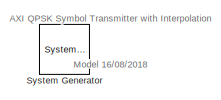
[diagram: root canvas - part 1/5, top left region]
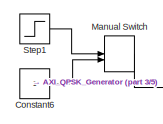
[diagram: root canvas - part 2/5, top left region]
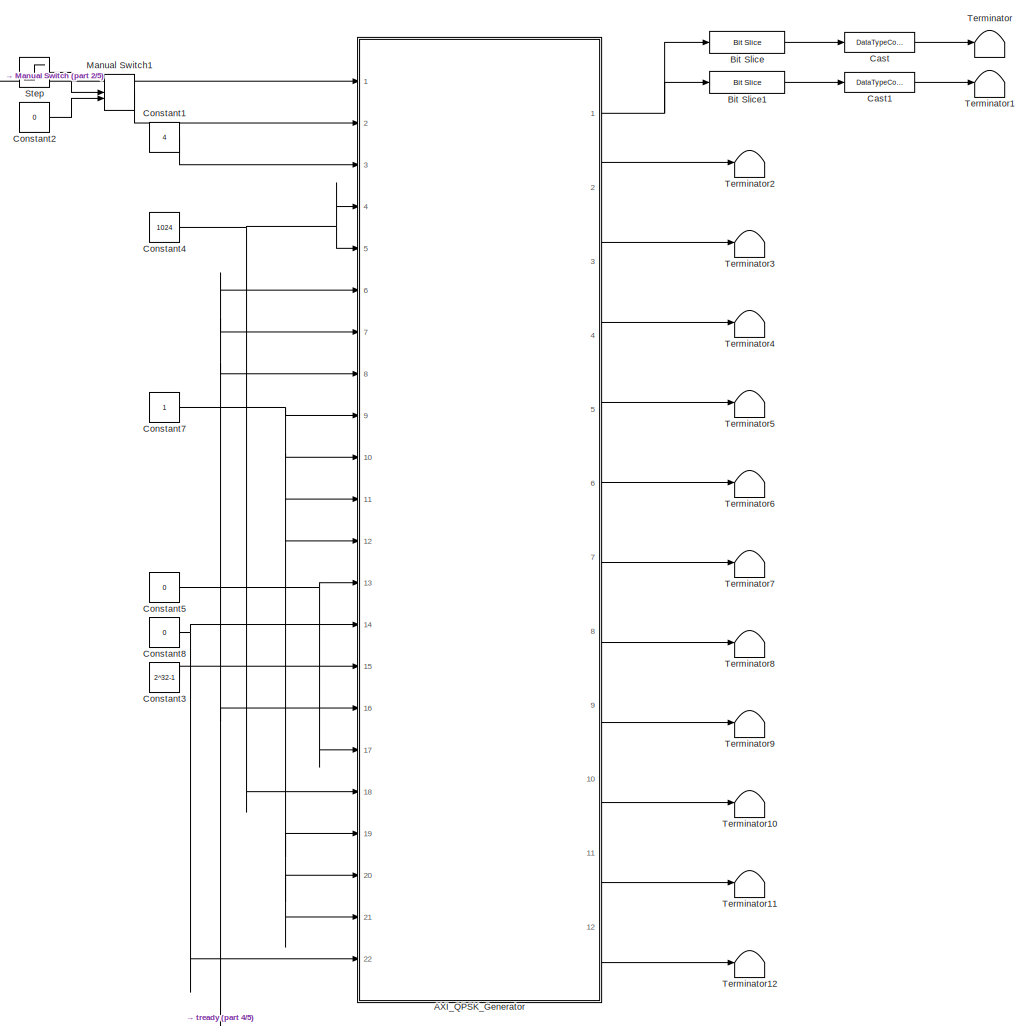
[diagram: root canvas - part 3/5, most of the canvas]
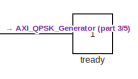
[diagram: root canvas - part 4/5, bottom right region]
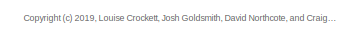
[diagram: root canvas - part 5/5, bottom right region]
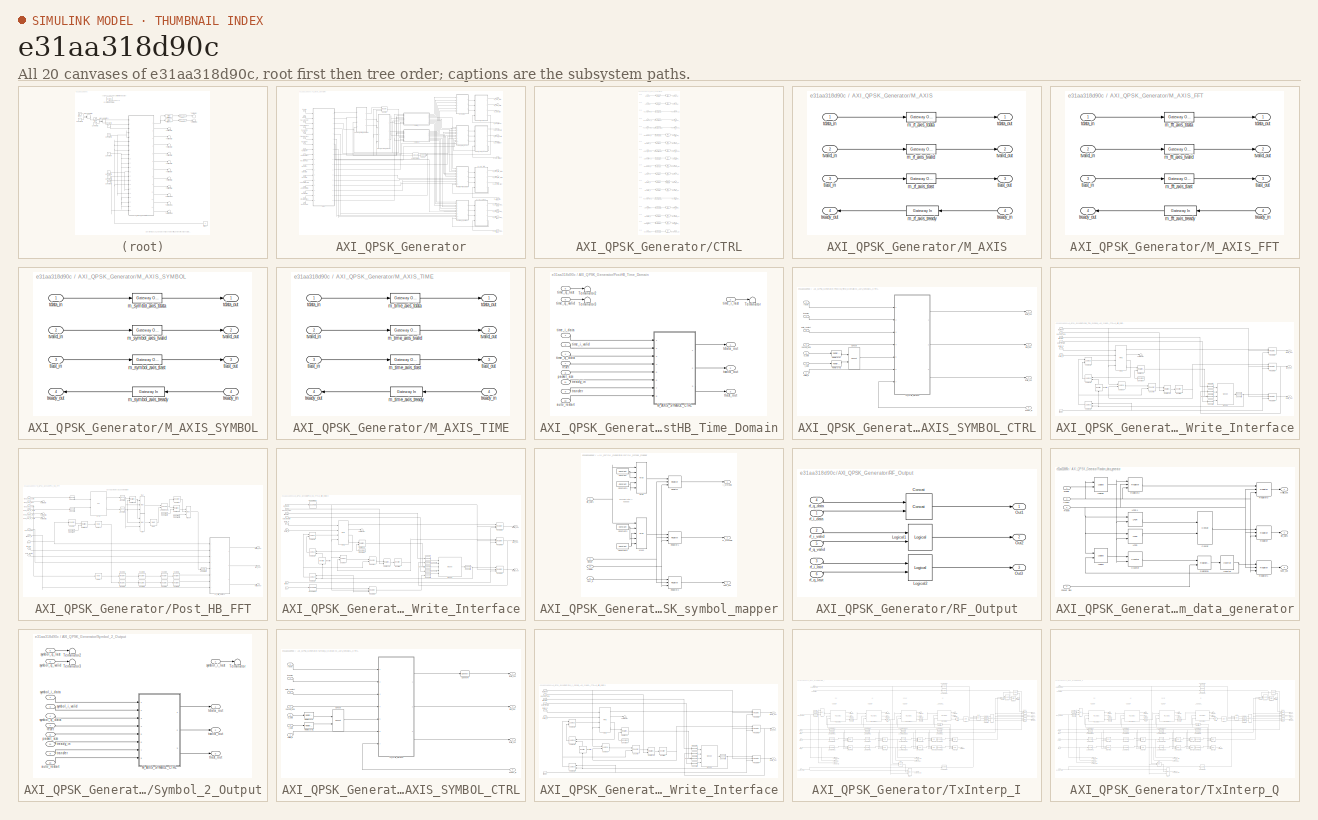
[diagram: thumbnail index - all 20 canvases of the model, root first then tree order]
MODEL slx_e31aa318d90c
KIND model
CONFIG AbsTol = auto
CONFIG EnableMultiTasking = off
CONFIG FixedStep = auto
CONFIG MaxStep = auto
CONFIG MinStep = auto
CONFIG PreLoadFcn = Rb = 1000;   % 1kbit / s\nRsym = Rb/2;   % 2 bits per symbol\nRsymbol = Rb/2;\nOSR = 32;\nf_error = 120;\n\ndesign_filters_tx
CONFIG RelTol = 1e-3
CONFIG SampleTimeConstraint = Unconstrained
CONFIG Solver = FixedStepAuto
CONFIG SolverName = FixedStepAuto
CONFIG StartTime = 0.0
CONFIG StopTime = 1000/Rb
BLOCK [Reference]  System Generator  REF=xbsIndex_r4/ System Generator
  AttributesFormatString = System\nGenerator
  Ports = []
  SourceBlock = xbsIndex_r4/ System Generator
  SourceType = Xilinx System Generator Block
  Tag = genX
  UserDataPersistent = on
BLOCK [SubSystem] AXI_QPSK_Generator
  Ports = [22, 12]
  RequestExecContextInheritance = off
BLOCK [Inport] AXI_QPSK_Generator/Auto Restart FFT
  Port = 12
BLOCK [Inport] AXI_QPSK_Generator/Auto Restart Symbol
  Port = 11
BLOCK [Inport] AXI_QPSK_Generator/Auto Restart Time
  Port = 19
BLOCK [Inport] AXI_QPSK_Generator/Bypass Gain
  Port = 22
BLOCK [SubSystem] AXI_QPSK_Generator/CTRL
  Ports = [18, 18]
  RequestExecContextInheritance = off
BLOCK [Reference] AXI_QPSK_Generator/CTRL/AutoRestartFFT  REF=xbsIndex_r4/Gateway In
  Ports = [1, 1]
  SourceBlock = xbsIndex_r4/Gateway In
  SourceType = Xilinx Gateway In Block
BLOCK [Inport] AXI_QPSK_Generator/CTRL/AutoRestartFFT_In
  Port = 9
BLOCK [Outport] AXI_QPSK_Generator/CTRL/AutoRestartFFT_Out
  Port = 9
  VectorParamsAs1DForOutWhenUnconnected = off
BLOCK [Reference] AXI_QPSK_Generator/CTRL/AutoRestartSymbol  REF=xbsIndex_r4/Gateway In
  Ports = [1, 1]
  SourceBlock = xbsIndex_r4/Gateway In
  SourceType = Xilinx Gateway In Block
BLOCK [Inport] AXI_QPSK_Generator/CTRL/AutoRestartSymbol_In
  Port = 8
BLOCK [Outport] AXI_QPSK_Generator/CTRL/AutoRestartSymbol_Out
  Port = 8
  VectorParamsAs1DForOutWhenUnconnected = off
BLOCK [Reference] AXI_QPSK_Generator/CTRL/AutoRestartTime  REF=xbsIndex_r4/Gateway In
  Ports = [1, 1]
  SourceBlock = xbsIndex_r4/Gateway In
  SourceType = Xilinx Gateway In Block
BLOCK [Inport] AXI_QPSK_Generator/CTRL/AutoRestartTime_In
  Port = 15
BLOCK [Outport] AXI_QPSK_Generator/CTRL/AutoRestartTime_Out
  Port = 15
  VectorParamsAs1DForOutWhenUnconnected = off
BLOCK [Reference] AXI_QPSK_Generator/CTRL/BypassGain  REF=xbsIndex_r4/Gateway In
  Ports = [1, 1]
  SourceBlock = xbsIndex_r4/Gateway In
  SourceType = Xilinx Gateway In Block
BLOCK [Inport] AXI_QPSK_Generator/CTRL/BypassGain_In
  Port = 18
BLOCK [Outport] AXI_QPSK_Generator/CTRL/BypassGain_Out
  Port = 18
  VectorParamsAs1DForOutWhenUnconnected = off
BLOCK [Reference] AXI_QPSK_Generator/CTRL/Enable  REF=xbsIndex_r4/Gateway In
  Ports = [1, 1]
  SourceBlock = xbsIndex_r4/Gateway In
  SourceType = Xilinx Gateway In Block
BLOCK [Inport] AXI_QPSK_Generator/CTRL/Enable_In
BLOCK [Outport] AXI_QPSK_Generator/CTRL/Enable_Out
  VectorParamsAs1DForOutWhenUnconnected = off
BLOCK [Reference] AXI_QPSK_Generator/CTRL/LFSR_rst  REF=xbsIndex_r4/Gateway In
  Ports = [1, 1]
  SourceBlock = xbsIndex_r4/Gateway In
  SourceType = Xilinx Gateway In Block
BLOCK [Inport] AXI_QPSK_Generator/CTRL/LFSR_rst_In
  Port = 2
BLOCK [Outport] AXI_QPSK_Generator/CTRL/LFSR_rst_Out
  Port = 2
  VectorParamsAs1DForOutWhenUnconnected = off
BLOCK [Reference] AXI_QPSK_Generator/CTRL/OutputGain  REF=xbsIndex_r4/Gateway In
  Ports = [1, 1]
  SourceBlock = xbsIndex_r4/Gateway In
  SourceType = Xilinx Gateway In Block
BLOCK [Inport] AXI_QPSK_Generator/CTRL/OutputGain_In
  Port = 12
BLOCK [Outport] AXI_QPSK_Generator/CTRL/OutputGain_Out
  Port = 12
  VectorParamsAs1DForOutWhenUnconnected = off
BLOCK [Reference] AXI_QPSK_Generator/CTRL/PacketSizeFFT  REF=xbsIndex_r4/Gateway In
  Ports = [1, 1]
  SourceBlock = xbsIndex_r4/Gateway In
  SourceType = Xilinx Gateway In Block
BLOCK [Inport] AXI_QPSK_Generator/CTRL/PacketSizeFFT_In
  Port = 4
BLOCK [Outport] AXI_QPSK_Generator/CTRL/PacketSizeFFT_Out
  Port = 4
  VectorParamsAs1DForOutWhenUnconnected = off
BLOCK [Reference] AXI_QPSK_Generator/CTRL/PacketSizeRF  REF=xbsIndex_r4/Gateway In
  Ports = [1, 1]
  SourceBlock = xbsIndex_r4/Gateway In
  SourceType = Xilinx Gateway In Block
BLOCK [Inport] AXI_QPSK_Generator/CTRL/PacketSizeRF_In
  Port = 3
BLOCK [Outport] AXI_QPSK_Generator/CTRL/PacketSizeRF_Out
  Port = 3
  VectorParamsAs1DForOutWhenUnconnected = off
BLOCK [Reference] AXI_QPSK_Generator/CTRL/PacketSizeSymbol  REF=xbsIndex_r4/Gateway In
  Ports = [1, 1]
  SourceBlock = xbsIndex_r4/Gateway In
  SourceType = Xilinx Gateway In Block
BLOCK [Inport] AXI_QPSK_Generator/CTRL/PacketSizeSymbol_In
  Port = 5
BLOCK [Outport] AXI_QPSK_Generator/CTRL/PacketSizeSymbol_Out
  Port = 5
  VectorParamsAs1DForOutWhenUnconnected = off
BLOCK [Reference] AXI_QPSK_Generator/CTRL/PacketSizeTime  REF=xbsIndex_r4/Gateway In
  Ports = [1, 1]
  SourceBlock = xbsIndex_r4/Gateway In
  SourceType = Xilinx Gateway In Block
BLOCK [Inport] AXI_QPSK_Generator/CTRL/PacketSizeTime_In
  Port = 14
BLOCK [Outport] AXI_QPSK_Generator/CTRL/PacketSizeTime_Out
  Port = 14
  VectorParamsAs1DForOutWhenUnconnected = off
BLOCK [Reference] AXI_QPSK_Generator/CTRL/Reinterpret  REF=xbsIndex_r4/Reinterpret
  Ports = [1, 1]
  SourceBlock = xbsIndex_r4/Reinterpret
  SourceType = Xilinx Type Reinterpreter Block
BLOCK [Reference] AXI_QPSK_Generator/CTRL/ResetFFT  REF=xbsIndex_r4/Gateway In
  Ports = [1, 1]
  SourceBlock = xbsIndex_r4/Gateway In
  SourceType = Xilinx Gateway In Block
BLOCK [Inport] AXI_QPSK_Generator/CTRL/ResetFFT_In
  Port = 11
BLOCK [Outport] AXI_QPSK_Generator/CTRL/ResetFFT_Out
  Port = 11
  VectorParamsAs1DForOutWhenUnconnected = off
BLOCK [Reference] AXI_QPSK_Generator/CTRL/ResetSymbol  REF=xbsIndex_r4/Gateway In
  Ports = [1, 1]
  SourceBlock = xbsIndex_r4/Gateway In
  SourceType = Xilinx Gateway In Block
BLOCK [Inport] AXI_QPSK_Generator/CTRL/ResetSymbol_In
  Port = 10
BLOCK [Outport] AXI_QPSK_Generator/CTRL/ResetSymbol_Out
  Port = 10
  VectorParamsAs1DForOutWhenUnconnected = off
BLOCK [Reference] AXI_QPSK_Generator/CTRL/ResetTime  REF=xbsIndex_r4/Gateway In
  Ports = [1, 1]
  SourceBlock = xbsIndex_r4/Gateway In
  SourceType = Xilinx Gateway In Block
BLOCK [Inport] AXI_QPSK_Generator/CTRL/ResetTime_In
  Port = 13
BLOCK [Outport] AXI_QPSK_Generator/CTRL/ResetTime_Out
  Port = 13
  VectorParamsAs1DForOutWhenUnconnected = off
BLOCK [Reference] AXI_QPSK_Generator/CTRL/SimulateInterface  REF=xbsIndex_r4/Gateway In
  Ports = [1, 1]
  SourceBlock = xbsIndex_r4/Gateway In
  SourceType = Xilinx Gateway In Block
BLOCK [Inport] AXI_QPSK_Generator/CTRL/SimulateInterface_In
  Port = 17
BLOCK [Outport] AXI_QPSK_Generator/CTRL/SimulateInterface_Out
  Port = 17
  VectorParamsAs1DForOutWhenUnconnected = off
BLOCK [Reference] AXI_QPSK_Generator/CTRL/Slice  REF=xbsIndex_r4/Slice
  Ports = [1, 1]
  SourceBlock = xbsIndex_r4/Slice
  SourceType = Xilinx Bit Slice Extractor Block
BLOCK [Reference] AXI_QPSK_Generator/CTRL/Slice1  REF=xbsIndex_r4/Slice
  Ports = [1, 1]
  SourceBlock = xbsIndex_r4/Slice
  SourceType = Xilinx Bit Slice Extractor Block
BLOCK [Reference] AXI_QPSK_Generator/CTRL/Slice10  REF=xbsIndex_r4/Slice
  Ports = [1, 1]
  SourceBlock = xbsIndex_r4/Slice
  SourceType = Xilinx Bit Slice Extractor Block
BLOCK [Reference] AXI_QPSK_Generator/CTRL/Slice11  REF=xbsIndex_r4/Slice
  Ports = [1, 1]
  SourceBlock = xbsIndex_r4/Slice
  SourceType = Xilinx Bit Slice Extractor Block
BLOCK [Reference] AXI_QPSK_Generator/CTRL/Slice12  REF=xbsIndex_r4/Slice
  Ports = [1, 1]
  SourceBlock = xbsIndex_r4/Slice
  SourceType = Xilinx Bit Slice Extractor Block
BLOCK [Reference] AXI_QPSK_Generator/CTRL/Slice2  REF=xbsIndex_r4/Slice
  Ports = [1, 1]
  SourceBlock = xbsIndex_r4/Slice
  SourceType = Xilinx Bit Slice Extractor Block
BLOCK [Reference] AXI_QPSK_Generator/CTRL/Slice3  REF=xbsIndex_r4/Slice
  Ports = [1, 1]
  SourceBlock = xbsIndex_r4/Slice
  SourceType = Xilinx Bit Slice Extractor Block
BLOCK [Reference] AXI_QPSK_Generator/CTRL/Slice4  REF=xbsIndex_r4/Slice
  Ports = [1, 1]
  SourceBlock = xbsIndex_r4/Slice
  SourceType = Xilinx Bit Slice Extractor Block
BLOCK [Reference] AXI_QPSK_Generator/CTRL/Slice5  REF=xbsIndex_r4/Slice
  Ports = [1, 1]
  SourceBlock = xbsIndex_r4/Slice
  SourceType = Xilinx Bit Slice Extractor Block
BLOCK [Reference] AXI_QPSK_Generator/CTRL/Slice6  REF=xbsIndex_r4/Slice
  Ports = [1, 1]
  SourceBlock = xbsIndex_r4/Slice
  SourceType = Xilinx Bit Slice Extractor Block
BLOCK [Reference] AXI_QPSK_Generator/CTRL/Slice7  REF=xbsIndex_r4/Slice
  Ports = [1, 1]
  SourceBlock = xbsIndex_r4/Slice
  SourceType = Xilinx Bit Slice Extractor Block
BLOCK [Reference] AXI_QPSK_Generator/CTRL/Slice8  REF=xbsIndex_r4/Slice
  Ports = [1, 1]
  SourceBlock = xbsIndex_r4/Slice
  SourceType = Xilinx Bit Slice Extractor Block
BLOCK [Reference] AXI_QPSK_Generator/CTRL/Slice9  REF=xbsIndex_r4/Slice
  Ports = [1, 1]
  SourceBlock = xbsIndex_r4/Slice
  SourceType = Xilinx Bit Slice Extractor Block
BLOCK [Reference] AXI_QPSK_Generator/CTRL/TransferFFT  REF=xbsIndex_r4/Gateway In
  Ports = [1, 1]
  SourceBlock = xbsIndex_r4/Gateway In
  SourceType = Xilinx Gateway In Block
BLOCK [Inport] AXI_QPSK_Generator/CTRL/TransferFFT_In
  Port = 7
BLOCK [Outport] AXI_QPSK_Generator/CTRL/TransferFFT_Out
  Port = 7
  VectorParamsAs1DForOutWhenUnconnected = off
BLOCK [Reference] AXI_QPSK_Generator/CTRL/TransferSymbol  REF=xbsIndex_r4/Gateway In
  Ports = [1, 1]
  SourceBlock = xbsIndex_r4/Gateway In
  SourceType = Xilinx Gateway In Block
BLOCK [Inport] AXI_QPSK_Generator/CTRL/TransferSymbol_In
  Port = 6
BLOCK [Outport] AXI_QPSK_Generator/CTRL/TransferSymbol_Out
  Port = 6
  VectorParamsAs1DForOutWhenUnconnected = off
BLOCK [Reference] AXI_QPSK_Generator/CTRL/TransferTime  REF=xbsIndex_r4/Gateway In
  Ports = [1, 1]
  SourceBlock = xbsIndex_r4/Gateway In
  SourceType = Xilinx Gateway In Block
BLOCK [Inport] AXI_QPSK_Generator/CTRL/TransferTime_In
  Port = 16
BLOCK [Outport] AXI_QPSK_Generator/CTRL/TransferTime_Out
  Port = 16
  VectorParamsAs1DForOutWhenUnconnected = off
BLOCK [Reference] AXI_QPSK_Generator/Down Sample1  REF=xbsIndex_r4/Down Sample
  Ports = [1, 1]
  SourceBlock = xbsIndex_r4/Down Sample
  SourceType = Xilinx Down Sampler Block
BLOCK [Inport] AXI_QPSK_Generator/Enable
BLOCK [Reference] AXI_QPSK_Generator/Logical  REF=xbsIndex_r4/Logical
  Ports = [2, 1]
  SourceBlock = xbsIndex_r4/Logical
  SourceType = Xilinx Logical Block Block
BLOCK [SubSystem] AXI_QPSK_Generator/M_AXIS
  Ports = [4, 4]
  RequestExecContextInheritance = off
BLOCK [Reference] AXI_QPSK_Generator/M_AXIS/m_rf_axis_tdata  REF=xbsIndex_r4/Gateway Out
  Ports = [1, 1]
  SourceBlock = xbsIndex_r4/Gateway Out
  SourceType = Xilinx Gateway Out Block
BLOCK [Reference] AXI_QPSK_Generator/M_AXIS/m_rf_axis_tlast  REF=xbsIndex_r4/Gateway Out
  Ports = [1, 1]
  SourceBlock = xbsIndex_r4/Gateway Out
  SourceType = Xilinx Gateway Out Block
BLOCK [Reference] AXI_QPSK_Generator/M_AXIS/m_rf_axis_tready  REF=xbsIndex_r4/Gateway In
  Ports = [1, 1]
  SourceBlock = xbsIndex_r4/Gateway In
  SourceType = Xilinx Gateway In Block
BLOCK [Reference] AXI_QPSK_Generator/M_AXIS/m_rf_axis_tvalid  REF=xbsIndex_r4/Gateway Out
  Ports = [1, 1]
  SourceBlock = xbsIndex_r4/Gateway Out
  SourceType = Xilinx Gateway Out Block
BLOCK [Inport] AXI_QPSK_Generator/M_AXIS/tdata_in
BLOCK [Outport] AXI_QPSK_Generator/M_AXIS/tdata_out
  VectorParamsAs1DForOutWhenUnconnected = off
BLOCK [Inport] AXI_QPSK_Generator/M_AXIS/tlast_in
  Port = 3
BLOCK [Outport] AXI_QPSK_Generator/M_AXIS/tlast_out
  Port = 3
  VectorParamsAs1DForOutWhenUnconnected = off
BLOCK [Inport] AXI_QPSK_Generator/M_AXIS/tready_in
  Port = 4
BLOCK [Outport] AXI_QPSK_Generator/M_AXIS/tready_out
  Port = 4
  VectorParamsAs1DForOutWhenUnconnected = off
BLOCK [Inport] AXI_QPSK_Generator/M_AXIS/tvalid_in
  Port = 2
BLOCK [Outport] AXI_QPSK_Generator/M_AXIS/tvalid_out
  Port = 2
  VectorParamsAs1DForOutWhenUnconnected = off
BLOCK [SubSystem] AXI_QPSK_Generator/M_AXIS_FFT
  Ports = [4, 4]
  RequestExecContextInheritance = off
BLOCK [Reference] AXI_QPSK_Generator/M_AXIS_FFT/m_fft_axis_tdata  REF=xbsIndex_r4/Gateway Out
  Ports = [1, 1]
  SourceBlock = xbsIndex_r4/Gateway Out
  SourceType = Xilinx Gateway Out Block
BLOCK [Reference] AXI_QPSK_Generator/M_AXIS_FFT/m_fft_axis_tlast  REF=xbsIndex_r4/Gateway Out
  Ports = [1, 1]
  SourceBlock = xbsIndex_r4/Gateway Out
  SourceType = Xilinx Gateway Out Block
BLOCK [Reference] AXI_QPSK_Generator/M_AXIS_FFT/m_fft_axis_tready  REF=xbsIndex_r4/Gateway In
  Ports = [1, 1]
  SourceBlock = xbsIndex_r4/Gateway In
  SourceType = Xilinx Gateway In Block
BLOCK [Reference] AXI_QPSK_Generator/M_AXIS_FFT/m_fft_axis_tvalid  REF=xbsIndex_r4/Gateway Out
  Ports = [1, 1]
  SourceBlock = xbsIndex_r4/Gateway Out
  SourceType = Xilinx Gateway Out Block
BLOCK [Inport] AXI_QPSK_Generator/M_AXIS_FFT/tdata_in
BLOCK [Outport] AXI_QPSK_Generator/M_AXIS_FFT/tdata_out
  VectorParamsAs1DForOutWhenUnconnected = off
BLOCK [Inport] AXI_QPSK_Generator/M_AXIS_FFT/tlast_in
  Port = 3
BLOCK [Outport] AXI_QPSK_Generator/M_AXIS_FFT/tlast_out
  Port = 3
  VectorParamsAs1DForOutWhenUnconnected = off
BLOCK [Inport] AXI_QPSK_Generator/M_AXIS_FFT/tready_in
  Port = 4
BLOCK [Outport] AXI_QPSK_Generator/M_AXIS_FFT/tready_out
  Port = 4
  VectorParamsAs1DForOutWhenUnconnected = off
BLOCK [Inport] AXI_QPSK_Generator/M_AXIS_FFT/tvalid_in
  Port = 2
BLOCK [Outport] AXI_QPSK_Generator/M_AXIS_FFT/tvalid_out
  Port = 2
  VectorParamsAs1DForOutWhenUnconnected = off
BLOCK [SubSystem] AXI_QPSK_Generator/M_AXIS_SYMBOL
  Ports = [4, 4]
  RequestExecContextInheritance = off
BLOCK [Reference] AXI_QPSK_Generator/M_AXIS_SYMBOL/m_symbol_axis_tdata  REF=xbsIndex_r4/Gateway Out
  Ports = [1, 1]
  SourceBlock = xbsIndex_r4/Gateway Out
  SourceType = Xilinx Gateway Out Block
BLOCK [Reference] AXI_QPSK_Generator/M_AXIS_SYMBOL/m_symbol_axis_tlast  REF=xbsIndex_r4/Gateway Out
  Ports = [1, 1]
  SourceBlock = xbsIndex_r4/Gateway Out
  SourceType = Xilinx Gateway Out Block
BLOCK [Reference] AXI_QPSK_Generator/M_AXIS_SYMBOL/m_symbol_axis_tready  REF=xbsIndex_r4/Gateway In
  Ports = [1, 1]
  SourceBlock = xbsIndex_r4/Gateway In
  SourceType = Xilinx Gateway In Block
BLOCK [Reference] AXI_QPSK_Generator/M_AXIS_SYMBOL/m_symbol_axis_tvalid  REF=xbsIndex_r4/Gateway Out
  Ports = [1, 1]
  SourceBlock = xbsIndex_r4/Gateway Out
  SourceType = Xilinx Gateway Out Block
BLOCK [Inport] AXI_QPSK_Generator/M_AXIS_SYMBOL/tdata_in
BLOCK [Outport] AXI_QPSK_Generator/M_AXIS_SYMBOL/tdata_out
  VectorParamsAs1DForOutWhenUnconnected = off
BLOCK [Inport] AXI_QPSK_Generator/M_AXIS_SYMBOL/tlast_in
  Port = 3
BLOCK [Outport] AXI_QPSK_Generator/M_AXIS_SYMBOL/tlast_out
  Port = 3
  VectorParamsAs1DForOutWhenUnconnected = off
BLOCK [Inport] AXI_QPSK_Generator/M_AXIS_SYMBOL/tready_in
  Port = 4
BLOCK [Outport] AXI_QPSK_Generator/M_AXIS_SYMBOL/tready_out
  Port = 4
  VectorParamsAs1DForOutWhenUnconnected = off
BLOCK [Inport] AXI_QPSK_Generator/M_AXIS_SYMBOL/tvalid_in
  Port = 2
BLOCK [Outport] AXI_QPSK_Generator/M_AXIS_SYMBOL/tvalid_out
  Port = 2
  VectorParamsAs1DForOutWhenUnconnected = off
BLOCK [SubSystem] AXI_QPSK_Generator/M_AXIS_TIME
  Ports = [4, 4]
  RequestExecContextInheritance = off
BLOCK [Reference] AXI_QPSK_Generator/M_AXIS_TIME/m_time_axis_tdata  REF=xbsIndex_r4/Gateway Out
  Ports = [1, 1]
  SourceBlock = xbsIndex_r4/Gateway Out
  SourceType = Xilinx Gateway Out Block
BLOCK [Reference] AXI_QPSK_Generator/M_AXIS_TIME/m_time_axis_tlast  REF=xbsIndex_r4/Gateway Out
  Ports = [1, 1]
  SourceBlock = xbsIndex_r4/Gateway Out
  SourceType = Xilinx Gateway Out Block
BLOCK [Reference] AXI_QPSK_Generator/M_AXIS_TIME/m_time_axis_tready  REF=xbsIndex_r4/Gateway In
  Ports = [1, 1]
  SourceBlock = xbsIndex_r4/Gateway In
  SourceType = Xilinx Gateway In Block
BLOCK [Reference] AXI_QPSK_Generator/M_AXIS_TIME/m_time_axis_tvalid  REF=xbsIndex_r4/Gateway Out
  Ports = [1, 1]
  SourceBlock = xbsIndex_r4/Gateway Out
  SourceType = Xilinx Gateway Out Block
BLOCK [Inport] AXI_QPSK_Generator/M_AXIS_TIME/tdata_in
BLOCK [Outport] AXI_QPSK_Generator/M_AXIS_TIME/tdata_out
  VectorParamsAs1DForOutWhenUnconnected = off
BLOCK [Inport] AXI_QPSK_Generator/M_AXIS_TIME/tlast_in
  Port = 3
BLOCK [Outport] AXI_QPSK_Generator/M_AXIS_TIME/tlast_out
  Port = 3
  VectorParamsAs1DForOutWhenUnconnected = off
BLOCK [Inport] AXI_QPSK_Generator/M_AXIS_TIME/tready_in
  Port = 4
BLOCK [Outport] AXI_QPSK_Generator/M_AXIS_TIME/tready_out
  Port = 4
  VectorParamsAs1DForOutWhenUnconnected = off
BLOCK [Inport] AXI_QPSK_Generator/M_AXIS_TIME/tvalid_in
  Port = 2
BLOCK [Outport] AXI_QPSK_Generator/M_AXIS_TIME/tvalid_out
  Port = 2
  VectorParamsAs1DForOutWhenUnconnected = off
BLOCK [Inport] AXI_QPSK_Generator/Output Gain
  Port = 15
BLOCK [Inport] AXI_QPSK_Generator/Packet Size FFT
  Port = 4
BLOCK [Inport] AXI_QPSK_Generator/Packet Size RF
  Port = 3
BLOCK [Inport] AXI_QPSK_Generator/Packet Size Symbol
  Port = 5
BLOCK [Inport] AXI_QPSK_Generator/Packet Size Time
  Port = 18
BLOCK [SubSystem] AXI_QPSK_Generator/PostHB_Time_Domain
  Ports = [11, 3]
  RequestExecContextInheritance = off
BLOCK [SubSystem] AXI_QPSK_Generator/PostHB_Time_Domain/M_AXIS_SYMBOL_CTRL
  Ports = [8, 3]
  RequestExecContextInheritance = off
BLOCK [SubSystem] AXI_QPSK_Generator/PostHB_Time_Domain/M_AXIS_SYMBOL_CTRL/AXI_Write_Interface
  Ports = [7, 3]
  RequestExecContextInheritance = off
BLOCK [Reference] AXI_QPSK_Generator/PostHB_Time_Domain/M_AXIS_SYMBOL_CTRL/AXI_Write_Interface/Constant  REF=xbsIndex_r4/Constant
  Ports = [0, 1]
  SourceBlock = xbsIndex_r4/Constant
  SourceType = Xilinx Constant Block Block
BLOCK [Reference] AXI_QPSK_Generator/PostHB_Time_Domain/M_AXIS_SYMBOL_CTRL/AXI_Write_Interface/Convert  REF=xbsIndex_r4/Convert
  Ports = [1, 1]
  SourceBlock = xbsIndex_r4/Convert
  SourceType = Xilinx Type Converter Block
BLOCK [Reference] AXI_QPSK_Generator/PostHB_Time_Domain/M_AXIS_SYMBOL_CTRL/AXI_Write_Interface/Convert1  REF=xbsIndex_r4/Convert
  Ports = [1, 1]
  SourceBlock = xbsIndex_r4/Convert
  SourceType = Xilinx Type Converter Block
BLOCK [Reference] AXI_QPSK_Generator/PostHB_Time_Domain/M_AXIS_SYMBOL_CTRL/AXI_Write_Interface/Convert2  REF=xbsIndex_r4/Convert
  Ports = [1, 1]
  SourceBlock = xbsIndex_r4/Convert
  SourceType = Xilinx Type Converter Block
BLOCK [Reference] AXI_QPSK_Generator/PostHB_Time_Domain/M_AXIS_SYMBOL_CTRL/AXI_Write_Interface/Convert3  REF=xbsIndex_r4/Convert
  Ports = [1, 1]
  SourceBlock = xbsIndex_r4/Convert
  SourceType = Xilinx Type Converter Block
BLOCK [Reference] AXI_QPSK_Generator/PostHB_Time_Domain/M_AXIS_SYMBOL_CTRL/AXI_Write_Interface/Convert5  REF=xbsIndex_r4/Convert
  Ports = [1, 1]
  SourceBlock = xbsIndex_r4/Convert
  SourceType = Xilinx Type Converter Block
BLOCK [Reference] AXI_QPSK_Generator/PostHB_Time_Domain/M_AXIS_SYMBOL_CTRL/AXI_Write_Interface/Counter  REF=xbsIndex_r4/Counter
  Ports = [2, 1]
  SourceBlock = xbsIndex_r4/Counter
  SourceType = Xilinx Counter Block
BLOCK [Reference] AXI_QPSK_Generator/PostHB_Time_Domain/M_AXIS_SYMBOL_CTRL/AXI_Write_Interface/FIFO  REF=xbsIndex_r4/FIFO
  Ports = [4, 4]
  SourceBlock = xbsIndex_r4/FIFO
  SourceType = Xilinx FIFO Block Block
BLOCK [Reference] AXI_QPSK_Generator/PostHB_Time_Domain/M_AXIS_SYMBOL_CTRL/AXI_Write_Interface/Inverter  REF=xbsIndex_r4/Inverter
  NameLocation = left
  Ports = [1, 1]
  SourceBlock = xbsIndex_r4/Inverter
  SourceType = Xilinx Inverter Block
BLOCK [Reference] AXI_QPSK_Generator/PostHB_Time_Domain/M_AXIS_SYMBOL_CTRL/AXI_Write_Interface/Inverter1  REF=xbsIndex_r4/Inverter
  Ports = [1, 1]
  SourceBlock = xbsIndex_r4/Inverter
  SourceType = Xilinx Inverter Block
BLOCK [Reference] AXI_QPSK_Generator/PostHB_Time_Domain/M_AXIS_SYMBOL_CTRL/AXI_Write_Interface/Logical  REF=xbsIndex_r4/Logical
  Ports = [2, 1]
  SourceBlock = xbsIndex_r4/Logical
  SourceType = Xilinx Logical Block Block
BLOCK [Reference] AXI_QPSK_Generator/PostHB_Time_Domain/M_AXIS_SYMBOL_CTRL/AXI_Write_Interface/Logical1  REF=xbsIndex_r4/Logical
  NameLocation = top
  Ports = [2, 1]
  SourceBlock = xbsIndex_r4/Logical
  SourceType = Xilinx Logical Block Block
BLOCK [Reference] AXI_QPSK_Generator/PostHB_Time_Domain/M_AXIS_SYMBOL_CTRL/AXI_Write_Interface/Logical2  REF=xbsIndex_r4/Logical
  Ports = [2, 1]
  SourceBlock = xbsIndex_r4/Logical
  SourceType = Xilinx Logical Block Block
BLOCK [Reference] AXI_QPSK_Generator/PostHB_Time_Domain/M_AXIS_SYMBOL_CTRL/AXI_Write_Interface/Logical3  REF=xbsIndex_r4/Logical
  NameLocation = top
  Ports = [2, 1]
  SourceBlock = xbsIndex_r4/Logical
  SourceType = Xilinx Logical Block Block
BLOCK [Reference] AXI_QPSK_Generator/PostHB_Time_Domain/M_AXIS_SYMBOL_CTRL/AXI_Write_Interface/MCode  REF=xbsIndex_r4/MCode
  Ports = [4, 1]
  SourceBlock = xbsIndex_r4/MCode
  SourceType = Xilinx MCode Block Block
BLOCK [Reference] AXI_QPSK_Generator/PostHB_Time_Domain/M_AXIS_SYMBOL_CTRL/AXI_Write_Interface/Register3  REF=xbsIndex_r4/Register
  Ports = [3, 1]
  SourceBlock = xbsIndex_r4/Register
  SourceType = Xilinx Register Block
BLOCK [Reference] AXI_QPSK_Generator/PostHB_Time_Domain/M_AXIS_SYMBOL_CTRL/AXI_Write_Interface/Register4  REF=xbsIndex_r4/Register
  Ports = [3, 1]
  SourceBlock = xbsIndex_r4/Register
  SourceType = Xilinx Register Block
BLOCK [Reference] AXI_QPSK_Generator/PostHB_Time_Domain/M_AXIS_SYMBOL_CTRL/AXI_Write_Interface/Register5  REF=xbsIndex_r4/Register
  Ports = [3, 1]
  SourceBlock = xbsIndex_r4/Register
  SourceType = Xilinx Register Block
BLOCK [Reference] AXI_QPSK_Generator/PostHB_Time_Domain/M_AXIS_SYMBOL_CTRL/AXI_Write_Interface/Relational  REF=xbsIndex_r4/Relational
  Ports = [2, 1]
  SourceBlock = xbsIndex_r4/Relational
  SourceType = Xilinx Arithmetic Relational Operator Block
BLOCK [Reference] AXI_QPSK_Generator/PostHB_Time_Domain/M_AXIS_SYMBOL_CTRL/AXI_Write_Interface/Relational1  REF=xbsIndex_r4/Relational
  Ports = [2, 1]
  SourceBlock = xbsIndex_r4/Relational
  SourceType = Xilinx Arithmetic Relational Operator Block
BLOCK [Terminator] AXI_QPSK_Generator/PostHB_Time_Domain/M_AXIS_SYMBOL_CTRL/AXI_Write_Interface/Terminator
BLOCK [Inport] AXI_QPSK_Generator/PostHB_Time_Domain/M_AXIS_SYMBOL_CTRL/AXI_Write_Interface/auto_restart
  Port = 3
BLOCK [Inport] AXI_QPSK_Generator/PostHB_Time_Domain/M_AXIS_SYMBOL_CTRL/AXI_Write_Interface/int_reset
BLOCK [Inport] AXI_QPSK_Generator/PostHB_Time_Domain/M_AXIS_SYMBOL_CTRL/AXI_Write_Interface/packet_size
  Port = 4
BLOCK [Inport] AXI_QPSK_Generator/PostHB_Time_Domain/M_AXIS_SYMBOL_CTRL/AXI_Write_Interface/tdata_in
  Port = 5
BLOCK [Outport] AXI_QPSK_Generator/PostHB_Time_Domain/M_AXIS_SYMBOL_CTRL/AXI_Write_Interface/tdata_out
  VectorParamsAs1DForOutWhenUnconnected = off
BLOCK [Outport] AXI_QPSK_Generator/PostHB_Time_Domain/M_AXIS_SYMBOL_CTRL/AXI_Write_Interface/tlast_out
  Port = 2
  VectorParamsAs1DForOutWhenUnconnected = off
BLOCK [Inport] AXI_QPSK_Generator/PostHB_Time_Domain/M_AXIS_SYMBOL_CTRL/AXI_Write_Interface/transfer
  Port = 2
BLOCK [Inport] AXI_QPSK_Generator/PostHB_Time_Domain/M_AXIS_SYMBOL_CTRL/AXI_Write_Interface/tready
  Port = 7
BLOCK [Inport] AXI_QPSK_Generator/PostHB_Time_Domain/M_AXIS_SYMBOL_CTRL/AXI_Write_Interface/tvalid_in
  Port = 6
BLOCK [Outport] AXI_QPSK_Generator/PostHB_Time_Domain/M_AXIS_SYMBOL_CTRL/AXI_Write_Interface/tvalid_out
  Port = 3
  VectorParamsAs1DForOutWhenUnconnected = off
BLOCK [Reference] AXI_QPSK_Generator/PostHB_Time_Domain/M_AXIS_SYMBOL_CTRL/Concat  REF=xbsIndex_r4/Concat
  Ports = [2, 1]
  SourceBlock = xbsIndex_r4/Concat
  SourceType = Xilinx Bus Concatenator Block
BLOCK [Reference] AXI_QPSK_Generator/PostHB_Time_Domain/M_AXIS_SYMBOL_CTRL/Reinterpret  REF=xbsIndex_r4/Reinterpret
  Ports = [1, 1]
  SourceBlock = xbsIndex_r4/Reinterpret
  SourceType = Xilinx Type Reinterpreter Block
BLOCK [Reference] AXI_QPSK_Generator/PostHB_Time_Domain/M_AXIS_SYMBOL_CTRL/Reinterpret1  REF=xbsIndex_r4/Reinterpret
  Ports = [1, 1]
  SourceBlock = xbsIndex_r4/Reinterpret
  SourceType = Xilinx Type Reinterpreter Block
BLOCK [Inport] AXI_QPSK_Generator/PostHB_Time_Domain/M_AXIS_SYMBOL_CTRL/auto_restart
  Port = 8
BLOCK [Inport] AXI_QPSK_Generator/PostHB_Time_Domain/M_AXIS_SYMBOL_CTRL/i_data
BLOCK [Inport] AXI_QPSK_Generator/PostHB_Time_Domain/M_AXIS_SYMBOL_CTRL/packet_size
  Port = 5
BLOCK [Inport] AXI_QPSK_Generator/PostHB_Time_Domain/M_AXIS_SYMBOL_CTRL/q_data
  Port = 3
BLOCK [Inport] AXI_QPSK_Generator/PostHB_Time_Domain/M_AXIS_SYMBOL_CTRL/reset
  Port = 4
BLOCK [Outport] AXI_QPSK_Generator/PostHB_Time_Domain/M_AXIS_SYMBOL_CTRL/tdata_out
  VectorParamsAs1DForOutWhenUnconnected = off
BLOCK [Outport] AXI_QPSK_Generator/PostHB_Time_Domain/M_AXIS_SYMBOL_CTRL/tlast_out
  Port = 3
  VectorParamsAs1DForOutWhenUnconnected = off
BLOCK [Inport] AXI_QPSK_Generator/PostHB_Time_Domain/M_AXIS_SYMBOL_CTRL/transfer
  Port = 7
BLOCK [Inport] AXI_QPSK_Generator/PostHB_Time_Domain/M_AXIS_SYMBOL_CTRL/tready_in
  Port = 6
BLOCK [Inport] AXI_QPSK_Generator/PostHB_Time_Domain/M_AXIS_SYMBOL_CTRL/tvalid_in
  Port = 2
BLOCK [Outport] AXI_QPSK_Generator/PostHB_Time_Domain/M_AXIS_SYMBOL_CTRL/tvalid_out
  Port = 2
  VectorParamsAs1DForOutWhenUnconnected = off
BLOCK [Terminator] AXI_QPSK_Generator/PostHB_Time_Domain/Terminator
BLOCK [Terminator] AXI_QPSK_Generator/PostHB_Time_Domain/Terminator2
BLOCK [Terminator] AXI_QPSK_Generator/PostHB_Time_Domain/Terminator3
BLOCK [Inport] AXI_QPSK_Generator/PostHB_Time_Domain/auto_restart
  Port = 10
BLOCK [Inport] AXI_QPSK_Generator/PostHB_Time_Domain/packet_size
  Port = 8
BLOCK [Inport] AXI_QPSK_Generator/PostHB_Time_Domain/reset
  Port = 7
BLOCK [Outport] AXI_QPSK_Generator/PostHB_Time_Domain/tdata_out
  VectorParamsAs1DForOutWhenUnconnected = off
BLOCK [Inport] AXI_QPSK_Generator/PostHB_Time_Domain/time_i_data
BLOCK [Inport] AXI_QPSK_Generator/PostHB_Time_Domain/time_i_last
  Port = 2
BLOCK [Inport] AXI_QPSK_Generator/PostHB_Time_Domain/time_i_valid
  Port = 3
BLOCK [Inport] AXI_QPSK_Generator/PostHB_Time_Domain/time_q_data
  Port = 4
BLOCK [Inport] AXI_QPSK_Generator/PostHB_Time_Domain/time_q_last
  Port = 5
BLOCK [Inport] AXI_QPSK_Generator/PostHB_Time_Domain/time_q_valid
  Port = 6
BLOCK [Outport] AXI_QPSK_Generator/PostHB_Time_Domain/tlast_out
  Port = 3
  VectorParamsAs1DForOutWhenUnconnected = off
BLOCK [Inport] AXI_QPSK_Generator/PostHB_Time_Domain/transfer
  Port = 9
BLOCK [Inport] AXI_QPSK_Generator/PostHB_Time_Domain/tready_in
  Port = 11
BLOCK [Outport] AXI_QPSK_Generator/PostHB_Time_Domain/tvalid_out
  Port = 2
  VectorParamsAs1DForOutWhenUnconnected = off
BLOCK [SubSystem] AXI_QPSK_Generator/Post_HB_FFT
  Ports = [11, 3]
  RequestExecContextInheritance = off
BLOCK [SubSystem] AXI_QPSK_Generator/Post_HB_FFT/AXI_Write_Interface
  Ports = [8, 3]
  RequestExecContextInheritance = off
BLOCK [Reference] AXI_QPSK_Generator/Post_HB_FFT/AXI_Write_Interface/Constant  REF=xbsIndex_r4/Constant
  Ports = [0, 1]
  SourceBlock = xbsIndex_r4/Constant
  SourceType = Xilinx Constant Block Block
BLOCK [Reference] AXI_QPSK_Generator/Post_HB_FFT/AXI_Write_Interface/Convert  REF=xbsIndex_r4/Convert
  Ports = [1, 1]
  SourceBlock = xbsIndex_r4/Convert
  SourceType = Xilinx Type Converter Block
BLOCK [Reference] AXI_QPSK_Generator/Post_HB_FFT/AXI_Write_Interface/Convert1  REF=xbsIndex_r4/Convert
  Ports = [1, 1]
  SourceBlock = xbsIndex_r4/Convert
  SourceType = Xilinx Type Converter Block
BLOCK [Reference] AXI_QPSK_Generator/Post_HB_FFT/AXI_Write_Interface/Convert2  REF=xbsIndex_r4/Convert
  Ports = [1, 1]
  SourceBlock = xbsIndex_r4/Convert
  SourceType = Xilinx Type Converter Block
BLOCK [Reference] AXI_QPSK_Generator/Post_HB_FFT/AXI_Write_Interface/Convert3  REF=xbsIndex_r4/Convert
  Ports = [1, 1]
  SourceBlock = xbsIndex_r4/Convert
  SourceType = Xilinx Type Converter Block
BLOCK [Reference] AXI_QPSK_Generator/Post_HB_FFT/AXI_Write_Interface/Convert4  REF=xbsIndex_r4/Convert
  Ports = [1, 1]
  SourceBlock = xbsIndex_r4/Convert
  SourceType = Xilinx Type Converter Block
BLOCK [Reference] AXI_QPSK_Generator/Post_HB_FFT/AXI_Write_Interface/Convert5  REF=xbsIndex_r4/Convert
  Ports = [1, 1]
  SourceBlock = xbsIndex_r4/Convert
  SourceType = Xilinx Type Converter Block
BLOCK [Reference] AXI_QPSK_Generator/Post_HB_FFT/AXI_Write_Interface/Counter  REF=xbsIndex_r4/Counter
  Ports = [2, 1]
  SourceBlock = xbsIndex_r4/Counter
  SourceType = Xilinx Counter Block
BLOCK [Reference] AXI_QPSK_Generator/Post_HB_FFT/AXI_Write_Interface/FIFO  REF=xbsIndex_r4/FIFO
  Ports = [4, 4]
  SourceBlock = xbsIndex_r4/FIFO
  SourceType = Xilinx FIFO Block Block
BLOCK [Reference] AXI_QPSK_Generator/Post_HB_FFT/AXI_Write_Interface/Inverter  REF=xbsIndex_r4/Inverter
  NameLocation = left
  Ports = [1, 1]
  SourceBlock = xbsIndex_r4/Inverter
  SourceType = Xilinx Inverter Block
BLOCK [Reference] AXI_QPSK_Generator/Post_HB_FFT/AXI_Write_Interface/Inverter1  REF=xbsIndex_r4/Inverter
  Ports = [1, 1]
  SourceBlock = xbsIndex_r4/Inverter
  SourceType = Xilinx Inverter Block
BLOCK [Reference] AXI_QPSK_Generator/Post_HB_FFT/AXI_Write_Interface/Logical  REF=xbsIndex_r4/Logical
  Ports = [2, 1]
  SourceBlock = xbsIndex_r4/Logical
  SourceType = Xilinx Logical Block Block
BLOCK [Reference] AXI_QPSK_Generator/Post_HB_FFT/AXI_Write_Interface/Logical1  REF=xbsIndex_r4/Logical
  NameLocation = top
  Ports = [2, 1]
  SourceBlock = xbsIndex_r4/Logical
  SourceType = Xilinx Logical Block Block
BLOCK [Reference] AXI_QPSK_Generator/Post_HB_FFT/AXI_Write_Interface/Logical2  REF=xbsIndex_r4/Logical
  Ports = [2, 1]
  SourceBlock = xbsIndex_r4/Logical
  SourceType = Xilinx Logical Block Block
BLOCK [Reference] AXI_QPSK_Generator/Post_HB_FFT/AXI_Write_Interface/Logical3  REF=xbsIndex_r4/Logical
  NameLocation = top
  Ports = [2, 1]
  SourceBlock = xbsIndex_r4/Logical
  SourceType = Xilinx Logical Block Block
BLOCK [Reference] AXI_QPSK_Generator/Post_HB_FFT/AXI_Write_Interface/MCode  REF=xbsIndex_r4/MCode
  Ports = [5, 1]
  SourceBlock = xbsIndex_r4/MCode
  SourceType = Xilinx MCode Block Block
BLOCK [Reference] AXI_QPSK_Generator/Post_HB_FFT/AXI_Write_Interface/Register1  REF=xbsIndex_r4/Register
  Ports = [3, 1]
  SourceBlock = xbsIndex_r4/Register
  SourceType = Xilinx Register Block
BLOCK [Reference] AXI_QPSK_Generator/Post_HB_FFT/AXI_Write_Interface/Register3  REF=xbsIndex_r4/Register
  Ports = [3, 1]
  SourceBlock = xbsIndex_r4/Register
  SourceType = Xilinx Register Block
BLOCK [Reference] AXI_QPSK_Generator/Post_HB_FFT/AXI_Write_Interface/Register4  REF=xbsIndex_r4/Register
  Ports = [3, 1]
  SourceBlock = xbsIndex_r4/Register
  SourceType = Xilinx Register Block
BLOCK [Reference] AXI_QPSK_Generator/Post_HB_FFT/AXI_Write_Interface/Register5  REF=xbsIndex_r4/Register
  Ports = [3, 1]
  SourceBlock = xbsIndex_r4/Register
  SourceType = Xilinx Register Block
BLOCK [Reference] AXI_QPSK_Generator/Post_HB_FFT/AXI_Write_Interface/Relational  REF=xbsIndex_r4/Relational
  Ports = [2, 1]
  SourceBlock = xbsIndex_r4/Relational
  SourceType = Xilinx Arithmetic Relational Operator Block
BLOCK [Reference] AXI_QPSK_Generator/Post_HB_FFT/AXI_Write_Interface/Relational1  REF=xbsIndex_r4/Relational
  Ports = [2, 1]
  SourceBlock = xbsIndex_r4/Relational
  SourceType = Xilinx Arithmetic Relational Operator Block
BLOCK [Terminator] AXI_QPSK_Generator/Post_HB_FFT/AXI_Write_Interface/Terminator
BLOCK [Reference] AXI_QPSK_Generator/Post_HB_FFT/AXI_Write_Interface/Up Sample1  REF=xbsIndex_r4/Up Sample
  Ports = [1, 1]
  SourceBlock = xbsIndex_r4/Up Sample
  SourceType = Xilinx Up Sampler Block
BLOCK [Reference] AXI_QPSK_Generator/Post_HB_FFT/AXI_Write_Interface/Up Sample2  REF=xbsIndex_r4/Up Sample
  Ports = [1, 1]
  SourceBlock = xbsIndex_r4/Up Sample
  SourceType = Xilinx Up Sampler Block
BLOCK [Inport] AXI_QPSK_Generator/Post_HB_FFT/AXI_Write_Interface/auto_restart
  Port = 3
BLOCK [Inport] AXI_QPSK_Generator/Post_HB_FFT/AXI_Write_Interface/int_reset
BLOCK [Inport] AXI_QPSK_Generator/Post_HB_FFT/AXI_Write_Interface/packet_size
  Port = 4
BLOCK [Inport] AXI_QPSK_Generator/Post_HB_FFT/AXI_Write_Interface/sof
  Port = 7
BLOCK [Inport] AXI_QPSK_Generator/Post_HB_FFT/AXI_Write_Interface/tdata_in
  Port = 5
BLOCK [Outport] AXI_QPSK_Generator/Post_HB_FFT/AXI_Write_Interface/tdata_out
  VectorParamsAs1DForOutWhenUnconnected = off
BLOCK [Outport] AXI_QPSK_Generator/Post_HB_FFT/AXI_Write_Interface/tlast_out
  Port = 2
  VectorParamsAs1DForOutWhenUnconnected = off
BLOCK [Inport] AXI_QPSK_Generator/Post_HB_FFT/AXI_Write_Interface/transfer
  Port = 2
BLOCK [Inport] AXI_QPSK_Generator/Post_HB_FFT/AXI_Write_Interface/tready
  Port = 8
BLOCK [Inport] AXI_QPSK_Generator/Post_HB_FFT/AXI_Write_Interface/tvalid_in
  Port = 6
BLOCK [Outport] AXI_QPSK_Generator/Post_HB_FFT/AXI_Write_Interface/tvalid_out
  Port = 3
  VectorParamsAs1DForOutWhenUnconnected = off
BLOCK [Reference] AXI_QPSK_Generator/Post_HB_FFT/Absolute  REF=xbsIndex_r4/Absolute
  NameLocation = top
  Ports = [1, 1]
  SourceBlock = xbsIndex_r4/Absolute
  SourceType = Xilinx Absolute Block Block
BLOCK [Reference] AXI_QPSK_Generator/Post_HB_FFT/Absolute1  REF=xbsIndex_r4/Absolute
  NameLocation = top
  Ports = [1, 1]
  SourceBlock = xbsIndex_r4/Absolute
  SourceType = Xilinx Absolute Block Block
BLOCK [Reference] AXI_QPSK_Generator/Post_HB_FFT/CMult  REF=xbsIndex_r4/CMult
  Ports = [1, 1]
  SourceBlock = xbsIndex_r4/CMult
  SourceType = Xilinx Constant Multiplier Block
BLOCK [Reference] AXI_QPSK_Generator/Post_HB_FFT/Complex ABS  REF=xbsIndex_r4/AddSub
  Ports = [2, 1]
  SourceBlock = xbsIndex_r4/AddSub
  SourceType = Xilinx Adder/Subtracter Block
BLOCK [Reference] AXI_QPSK_Generator/Post_HB_FFT/Constant  REF=xbsIndex_r4/Constant
  Ports = [0, 1]
  SourceBlock = xbsIndex_r4/Constant
  SourceType = Xilinx Constant Block Block
BLOCK [Reference] AXI_QPSK_Generator/Post_HB_FFT/Constant2  REF=xbsIndex_r4/Constant
  Ports = [0, 1]
  SourceBlock = xbsIndex_r4/Constant
  SourceType = Xilinx Constant Block Block
BLOCK [Reference] AXI_QPSK_Generator/Post_HB_FFT/Constant3  REF=xbsIndex_r4/Constant
  Ports = [0, 1]
  SourceBlock = xbsIndex_r4/Constant
  SourceType = Xilinx Constant Block Block
BLOCK [Reference] AXI_QPSK_Generator/Post_HB_FFT/Convert1  REF=xbsIndex_r4/Convert
  Ports = [1, 1]
  SourceBlock = xbsIndex_r4/Convert
  SourceType = Xilinx Type Converter Block
BLOCK [Reference] AXI_QPSK_Generator/Post_HB_FFT/Convert2  REF=xbsIndex_r4/Convert
  Ports = [1, 1]
  SourceBlock = xbsIndex_r4/Convert
  SourceType = Xilinx Type Converter Block
BLOCK [Reference] AXI_QPSK_Generator/Post_HB_FFT/Counter  REF=xbsIndex_r4/Counter
  Ports = [1, 1]
  SourceBlock = xbsIndex_r4/Counter
  SourceType = Xilinx Counter Block
BLOCK [Reference] AXI_QPSK_Generator/Post_HB_FFT/Delay  REF=xbsIndex_r4/Delay
  Ports = [1, 1]
  SourceBlock = xbsIndex_r4/Delay
  SourceType = Xilinx Delay Block
BLOCK [Reference] AXI_QPSK_Generator/Post_HB_FFT/Delay1  REF=xbsIndex_r4/Delay
  Ports = [1, 1]
  SourceBlock = xbsIndex_r4/Delay
  SourceType = Xilinx Delay Block
BLOCK [Reference] AXI_QPSK_Generator/Post_HB_FFT/FFT1  REF=xbsIndex_r4/FFT
  Ports = [2, 2]
  SourceBlock = xbsIndex_r4/FFT
  SourceType = Xilinx Forward Fast Fourier Transform Block
BLOCK [Reference] AXI_QPSK_Generator/Post_HB_FFT/MAX  REF=xbsIndex_r4/Mux
  NameLocation = top
  Ports = [3, 1]
  SourceBlock = xbsIndex_r4/Mux
  SourceType = Xilinx Bus Multiplexer Block
BLOCK [Reference] AXI_QPSK_Generator/Post_HB_FFT/MIN  REF=xbsIndex_r4/Mux
  Ports = [3, 1]
  SourceBlock = xbsIndex_r4/Mux
  SourceType = Xilinx Bus Multiplexer Block
BLOCK [Reference] AXI_QPSK_Generator/Post_HB_FFT/Mux1  REF=xbsIndex_r4/Mux
  Ports = [3, 1]
  SourceBlock = xbsIndex_r4/Mux
  SourceType = Xilinx Bus Multiplexer Block
BLOCK [Reference] AXI_QPSK_Generator/Post_HB_FFT/Register  REF=xbsIndex_r4/Register
  Ports = [1, 1]
  SourceBlock = xbsIndex_r4/Register
  SourceType = Xilinx Register Block
BLOCK [Reference] AXI_QPSK_Generator/Post_HB_FFT/Register1  REF=xbsIndex_r4/Register
  Ports = [1, 1]
  SourceBlock = xbsIndex_r4/Register
  SourceType = Xilinx Register Block
BLOCK [Reference] AXI_QPSK_Generator/Post_HB_FFT/Register2  REF=xbsIndex_r4/Register
  Ports = [1, 1]
  SourceBlock = xbsIndex_r4/Register
  SourceType = Xilinx Register Block
BLOCK [Reference] AXI_QPSK_Generator/Post_HB_FFT/Register3  REF=xbsIndex_r4/Register
  Ports = [1, 1]
  SourceBlock = xbsIndex_r4/Register
  SourceType = Xilinx Register Block
BLOCK [Reference] AXI_QPSK_Generator/Post_HB_FFT/Register4  REF=xbsIndex_r4/Register
  Ports = [1, 1]
  SourceBlock = xbsIndex_r4/Register
  SourceType = Xilinx Register Block
BLOCK [Reference] AXI_QPSK_Generator/Post_HB_FFT/Register5  REF=xbsIndex_r4/Register
  Ports = [1, 1]
  SourceBlock = xbsIndex_r4/Register
  SourceType = Xilinx Register Block
BLOCK [Reference] AXI_QPSK_Generator/Post_HB_FFT/Register6  REF=xbsIndex_r4/Register
  Ports = [1, 1]
  SourceBlock = xbsIndex_r4/Register
  SourceType = Xilinx Register Block
BLOCK [Reference] AXI_QPSK_Generator/Post_HB_FFT/Register7  REF=xbsIndex_r4/Register
  Ports = [1, 1]
  SourceBlock = xbsIndex_r4/Register
  SourceType = Xilinx Register Block
BLOCK [Reference] AXI_QPSK_Generator/Post_HB_FFT/Register8  REF=xbsIndex_r4/Register
  Ports = [1, 1]
  SourceBlock = xbsIndex_r4/Register
  SourceType = Xilinx Register Block
BLOCK [Reference] AXI_QPSK_Generator/Post_HB_FFT/Reinterpret1  REF=xbsIndex_r4/Reinterpret
  Ports = [1, 1]
  SourceBlock = xbsIndex_r4/Reinterpret
  SourceType = Xilinx Type Reinterpreter Block
BLOCK [Reference] AXI_QPSK_Generator/Post_HB_FFT/Relational  REF=xbsIndex_r4/Relational
  Ports = [2, 1]
  SourceBlock = xbsIndex_r4/Relational
  SourceType = Xilinx Arithmetic Relational Operator Block
BLOCK [Reference] AXI_QPSK_Generator/Post_HB_FFT/Relational1  REF=xbsIndex_r4/Relational
  Ports = [2, 1]
  SourceBlock = xbsIndex_r4/Relational
  SourceType = Xilinx Arithmetic Relational Operator Block
BLOCK [Reference] AXI_QPSK_Generator/Post_HB_FFT/Relational2  REF=xbsIndex_r4/Relational
  Ports = [2, 1]
  SourceBlock = xbsIndex_r4/Relational
  SourceType = Xilinx Arithmetic Relational Operator Block
BLOCK [Terminator] AXI_QPSK_Generator/Post_HB_FFT/Terminator
BLOCK [Terminator] AXI_QPSK_Generator/Post_HB_FFT/Terminator1
BLOCK [Terminator] AXI_QPSK_Generator/Post_HB_FFT/Terminator2
BLOCK [Inport] AXI_QPSK_Generator/Post_HB_FFT/auto_restart
  Port = 11
BLOCK [Inport] AXI_QPSK_Generator/Post_HB_FFT/packet_size
  Port = 8
BLOCK [Inport] AXI_QPSK_Generator/Post_HB_FFT/post_hb_i_data
BLOCK [Inport] AXI_QPSK_Generator/Post_HB_FFT/post_hb_i_last
  Port = 2
BLOCK [Inport] AXI_QPSK_Generator/Post_HB_FFT/post_hb_i_valid
  Port = 3
BLOCK [Inport] AXI_QPSK_Generator/Post_HB_FFT/post_hb_q_data
  Port = 4
BLOCK [Inport] AXI_QPSK_Generator/Post_HB_FFT/post_hb_q_last
  Port = 5
BLOCK [Inport] AXI_QPSK_Generator/Post_HB_FFT/post_hb_q_valid
  Port = 6
BLOCK [Inport] AXI_QPSK_Generator/Post_HB_FFT/reset
  Port = 7
BLOCK [Outport] AXI_QPSK_Generator/Post_HB_FFT/tdata_out
  VectorParamsAs1DForOutWhenUnconnected = off
BLOCK [Outport] AXI_QPSK_Generator/Post_HB_FFT/tlast_out
  Port = 3
  VectorParamsAs1DForOutWhenUnconnected = off
BLOCK [Inport] AXI_QPSK_Generator/Post_HB_FFT/transfer
  Port = 10
BLOCK [Inport] AXI_QPSK_Generator/Post_HB_FFT/tready_in
  Port = 9
BLOCK [Outport] AXI_QPSK_Generator/Post_HB_FFT/tvalid_out
  Port = 2
  VectorParamsAs1DForOutWhenUnconnected = off
BLOCK [SubSystem] AXI_QPSK_Generator/QPSK_symbol_mapper
  Ports = [4, 3]
  RequestExecContextInheritance = off
BLOCK [Inport] AXI_QPSK_Generator/QPSK_symbol_mapper/Bit_pairs
BLOCK [Reference] AXI_QPSK_Generator/QPSK_symbol_mapper/Constant  REF=xbsIndex_r4/Constant
  Ports = [0, 1]
  SourceBlock = xbsIndex_r4/Constant
  SourceType = Xilinx Constant Block Block
BLOCK [Reference] AXI_QPSK_Generator/QPSK_symbol_mapper/Constant1  REF=xbsIndex_r4/Constant
  Ports = [0, 1]
  SourceBlock = xbsIndex_r4/Constant
  SourceType = Xilinx Constant Block Block
BLOCK [Reference] AXI_QPSK_Generator/QPSK_symbol_mapper/Constant2  REF=xbsIndex_r4/Constant
  Ports = [0, 1]
  SourceBlock = xbsIndex_r4/Constant
  SourceType = Xilinx Constant Block Block
BLOCK [Reference] AXI_QPSK_Generator/QPSK_symbol_mapper/Constant3  REF=xbsIndex_r4/Constant
  Ports = [0, 1]
  SourceBlock = xbsIndex_r4/Constant
  SourceType = Xilinx Constant Block Block
BLOCK [Outport] AXI_QPSK_Generator/QPSK_symbol_mapper/I_symbols
  VectorParamsAs1DForOutWhenUnconnected = off
BLOCK [Reference] AXI_QPSK_Generator/QPSK_symbol_mapper/Mux  REF=xbsIndex_r4/Mux
  Ports = [5, 1]
  SourceBlock = xbsIndex_r4/Mux
  SourceType = Xilinx Bus Multiplexer Block
BLOCK [Reference] AXI_QPSK_Generator/QPSK_symbol_mapper/Mux1  REF=xbsIndex_r4/Mux
  Ports = [5, 1]
  SourceBlock = xbsIndex_r4/Mux
  SourceType = Xilinx Bus Multiplexer Block
BLOCK [Outport] AXI_QPSK_Generator/QPSK_symbol_mapper/Q_symbols
  Port = 2
  VectorParamsAs1DForOutWhenUnconnected = off
BLOCK [Reference] AXI_QPSK_Generator/QPSK_symbol_mapper/Register  REF=xbsIndex_r4/Register
  Ports = [3, 1]
  SourceBlock = xbsIndex_r4/Register
  SourceType = Xilinx Register Block
BLOCK [Reference] AXI_QPSK_Generator/QPSK_symbol_mapper/Register1  REF=xbsIndex_r4/Register
  Ports = [3, 1]
  SourceBlock = xbsIndex_r4/Register
  SourceType = Xilinx Register Block
BLOCK [Reference] AXI_QPSK_Generator/QPSK_symbol_mapper/Register2  REF=xbsIndex_r4/Register
  Ports = [3, 1]
  SourceBlock = xbsIndex_r4/Register
  SourceType = Xilinx Register Block
BLOCK [Inport] AXI_QPSK_Generator/QPSK_symbol_mapper/Reset
  Port = 3
BLOCK [Inport] AXI_QPSK_Generator/QPSK_symbol_mapper/tlast_in
  Port = 2
BLOCK [Outport] AXI_QPSK_Generator/QPSK_symbol_mapper/tlast_out
  Port = 3
  VectorParamsAs1DForOutWhenUnconnected = off
BLOCK [Inport] AXI_QPSK_Generator/QPSK_symbol_mapper/tready
  Port = 4
BLOCK [SubSystem] AXI_QPSK_Generator/RF_Output
  Ports = [6, 3]
  RequestExecContextInheritance = off
BLOCK [Reference] AXI_QPSK_Generator/RF_Output/Concat  REF=xbsIndex_r4/Concat
  Ports = [2, 1]
  SourceBlock = xbsIndex_r4/Concat
  SourceType = Xilinx Bus Concatenator Block
BLOCK [Reference] AXI_QPSK_Generator/RF_Output/Logical1  REF=xbsIndex_r4/Logical
  Ports = [2, 1]
  SourceBlock = xbsIndex_r4/Logical
  SourceType = Xilinx Logical Block Block
BLOCK [Reference] AXI_QPSK_Generator/RF_Output/Logical2  REF=xbsIndex_r4/Logical
  Ports = [2, 1]
  SourceBlock = xbsIndex_r4/Logical
  SourceType = Xilinx Logical Block Block
BLOCK [Outport] AXI_QPSK_Generator/RF_Output/Out1
  VectorParamsAs1DForOutWhenUnconnected = off
BLOCK [Outport] AXI_QPSK_Generator/RF_Output/Out2
  Port = 2
  VectorParamsAs1DForOutWhenUnconnected = off
BLOCK [Outport] AXI_QPSK_Generator/RF_Output/Out3
  Port = 3
  VectorParamsAs1DForOutWhenUnconnected = off
BLOCK [Inport] AXI_QPSK_Generator/RF_Output/rf_i_data
BLOCK [Inport] AXI_QPSK_Generator/RF_Output/rf_i_last
  Port = 3
BLOCK [Inport] AXI_QPSK_Generator/RF_Output/rf_i_valid
  Port = 2
BLOCK [Inport] AXI_QPSK_Generator/RF_Output/rf_q_data
  Port = 4
BLOCK [Inport] AXI_QPSK_Generator/RF_Output/rf_q_last
  Port = 6
BLOCK [Inport] AXI_QPSK_Generator/RF_Output/rf_q_valid
  Port = 5
BLOCK [SubSystem] AXI_QPSK_Generator/Random_data_generator
  Ports = [4, 3]
  RequestExecContextInheritance = off
BLOCK [Outport] AXI_QPSK_Generator/Random_data_generator/Bit_pairs
  Port = 2
  VectorParamsAs1DForOutWhenUnconnected = off
BLOCK [Reference] AXI_QPSK_Generator/Random_data_generator/Concat  REF=xbsIndex_r4/Concat
  Ports = [2, 1]
  SourceBlock = xbsIndex_r4/Concat
  SourceType = Xilinx Bus Concatenator Block
BLOCK [Reference] AXI_QPSK_Generator/Random_data_generator/Counter  REF=xbsIndex_r4/Counter
  Ports = [2, 1]
  SourceBlock = xbsIndex_r4/Counter
  SourceType = Xilinx Counter Block
BLOCK [Reference] AXI_QPSK_Generator/Random_data_generator/Inverter  REF=xbsIndex_r4/Inverter
  NameLocation = top
  Ports = [1, 1]
  SourceBlock = xbsIndex_r4/Inverter
  SourceType = Xilinx Inverter Block
BLOCK [Reference] AXI_QPSK_Generator/Random_data_generator/LFSR  REF=xbsIndex_r4/LFSR
  Ports = [2, 1]
  SourceBlock = xbsIndex_r4/LFSR
  SourceType = Xilinx Linear Feedback Shift Register Block
BLOCK [Reference] AXI_QPSK_Generator/Random_data_generator/LFSR1  REF=xbsIndex_r4/LFSR
  Ports = [2, 1]
  SourceBlock = xbsIndex_r4/LFSR
  SourceType = Xilinx Linear Feedback Shift Register Block
BLOCK [Reference] AXI_QPSK_Generator/Random_data_generator/Logical  REF=xbsIndex_r4/Logical
  Ports = [2, 1]
  SourceBlock = xbsIndex_r4/Logical
  SourceType = Xilinx Logical Block Block
BLOCK [Reference] AXI_QPSK_Generator/Random_data_generator/Logical1  REF=xbsIndex_r4/Logical
  Ports = [2, 1]
  SourceBlock = xbsIndex_r4/Logical
  SourceType = Xilinx Logical Block Block
BLOCK [Inport] AXI_QPSK_Generator/Random_data_generator/Packet Size
  Port = 4
BLOCK [Reference] AXI_QPSK_Generator/Random_data_generator/Register  REF=xbsIndex_r4/Register
  Ports = [3, 1]
  SourceBlock = xbsIndex_r4/Register
  SourceType = Xilinx Register Block
BLOCK [Reference] AXI_QPSK_Generator/Random_data_generator/Register1  REF=xbsIndex_r4/Register
  Ports = [3, 1]
  SourceBlock = xbsIndex_r4/Register
  SourceType = Xilinx Register Block
BLOCK [Reference] AXI_QPSK_Generator/Random_data_generator/Register2  REF=xbsIndex_r4/Register
  Ports = [3, 1]
  SourceBlock = xbsIndex_r4/Register
  SourceType = Xilinx Register Block
BLOCK [Reference] AXI_QPSK_Generator/Random_data_generator/Register3  REF=xbsIndex_r4/Register
  Ports = [3, 1]
  SourceBlock = xbsIndex_r4/Register
  SourceType = Xilinx Register Block
BLOCK [Reference] AXI_QPSK_Generator/Random_data_generator/Relational  REF=xbsIndex_r4/Relational
  Ports = [2, 1]
  SourceBlock = xbsIndex_r4/Relational
  SourceType = Xilinx Arithmetic Relational Operator Block
BLOCK [Inport] AXI_QPSK_Generator/Random_data_generator/Reset
  Port = 2
BLOCK [Inport] AXI_QPSK_Generator/Random_data_generator/enable
BLOCK [Outport] AXI_QPSK_Generator/Random_data_generator/tlast_out
  Port = 3
  VectorParamsAs1DForOutWhenUnconnected = off
BLOCK [Inport] AXI_QPSK_Generator/Random_data_generator/tready
  Port = 3
BLOCK [Outport] AXI_QPSK_Generator/Random_data_generator/tvalid_out
  VectorParamsAs1DForOutWhenUnconnected = off
BLOCK [Reference] AXI_QPSK_Generator/Register2  REF=xbsIndex_r4/Register
  Ports = [3, 1]
  SourceBlock = xbsIndex_r4/Register
  SourceType = Xilinx Register Block
BLOCK [Inport] AXI_QPSK_Generator/Reset
  Port = 2
BLOCK [Inport] AXI_QPSK_Generator/Reset FFT
  Port = 14
BLOCK [Inport] AXI_QPSK_Generator/Reset Symbol
  Port = 13
BLOCK [Inport] AXI_QPSK_Generator/Reset Time
  Port = 17
BLOCK [Inport] AXI_QPSK_Generator/Simulate Interface
  Port = 21
BLOCK [SubSystem] AXI_QPSK_Generator/Symbol_2_Output
  Ports = [11, 3]
  RequestExecContextInheritance = off
BLOCK [SubSystem] AXI_QPSK_Generator/Symbol_2_Output/M_AXIS_SYMBOL_CTRL
  Ports = [8, 3]
  RequestExecContextInheritance = off
BLOCK [SubSystem] AXI_QPSK_Generator/Symbol_2_Output/M_AXIS_SYMBOL_CTRL/AXI_Write_Interface
  Ports = [7, 3]
  RequestExecContextInheritance = off
BLOCK [Reference] AXI_QPSK_Generator/Symbol_2_Output/M_AXIS_SYMBOL_CTRL/AXI_Write_Interface/Constant  REF=xbsIndex_r4/Constant
  Ports = [0, 1]
  SourceBlock = xbsIndex_r4/Constant
  SourceType = Xilinx Constant Block Block
BLOCK [Reference] AXI_QPSK_Generator/Symbol_2_Output/M_AXIS_SYMBOL_CTRL/AXI_Write_Interface/Convert  REF=xbsIndex_r4/Convert
  Ports = [1, 1]
  SourceBlock = xbsIndex_r4/Convert
  SourceType = Xilinx Type Converter Block
BLOCK [Reference] AXI_QPSK_Generator/Symbol_2_Output/M_AXIS_SYMBOL_CTRL/AXI_Write_Interface/Convert1  REF=xbsIndex_r4/Convert
  Ports = [1, 1]
  SourceBlock = xbsIndex_r4/Convert
  SourceType = Xilinx Type Converter Block
BLOCK [Reference] AXI_QPSK_Generator/Symbol_2_Output/M_AXIS_SYMBOL_CTRL/AXI_Write_Interface/Convert2  REF=xbsIndex_r4/Convert
  Ports = [1, 1]
  SourceBlock = xbsIndex_r4/Convert
  SourceType = Xilinx Type Converter Block
BLOCK [Reference] AXI_QPSK_Generator/Symbol_2_Output/M_AXIS_SYMBOL_CTRL/AXI_Write_Interface/Convert3  REF=xbsIndex_r4/Convert
  Ports = [1, 1]
  SourceBlock = xbsIndex_r4/Convert
  SourceType = Xilinx Type Converter Block
BLOCK [Reference] AXI_QPSK_Generator/Symbol_2_Output/M_AXIS_SYMBOL_CTRL/AXI_Write_Interface/Convert5  REF=xbsIndex_r4/Convert
  Ports = [1, 1]
  SourceBlock = xbsIndex_r4/Convert
  SourceType = Xilinx Type Converter Block
BLOCK [Reference] AXI_QPSK_Generator/Symbol_2_Output/M_AXIS_SYMBOL_CTRL/AXI_Write_Interface/Counter  REF=xbsIndex_r4/Counter
  Ports = [2, 1]
  SourceBlock = xbsIndex_r4/Counter
  SourceType = Xilinx Counter Block
BLOCK [Reference] AXI_QPSK_Generator/Symbol_2_Output/M_AXIS_SYMBOL_CTRL/AXI_Write_Interface/FIFO  REF=xbsIndex_r4/FIFO
  Ports = [4, 4]
  SourceBlock = xbsIndex_r4/FIFO
  SourceType = Xilinx FIFO Block Block
BLOCK [Reference] AXI_QPSK_Generator/Symbol_2_Output/M_AXIS_SYMBOL_CTRL/AXI_Write_Interface/Inverter  REF=xbsIndex_r4/Inverter
  NameLocation = left
  Ports = [1, 1]
  SourceBlock = xbsIndex_r4/Inverter
  SourceType = Xilinx Inverter Block
BLOCK [Reference] AXI_QPSK_Generator/Symbol_2_Output/M_AXIS_SYMBOL_CTRL/AXI_Write_Interface/Inverter1  REF=xbsIndex_r4/Inverter
  Ports = [1, 1]
  SourceBlock = xbsIndex_r4/Inverter
  SourceType = Xilinx Inverter Block
BLOCK [Reference] AXI_QPSK_Generator/Symbol_2_Output/M_AXIS_SYMBOL_CTRL/AXI_Write_Interface/Logical  REF=xbsIndex_r4/Logical
  Ports = [2, 1]
  SourceBlock = xbsIndex_r4/Logical
  SourceType = Xilinx Logical Block Block
BLOCK [Reference] AXI_QPSK_Generator/Symbol_2_Output/M_AXIS_SYMBOL_CTRL/AXI_Write_Interface/Logical1  REF=xbsIndex_r4/Logical
  NameLocation = top
  Ports = [2, 1]
  SourceBlock = xbsIndex_r4/Logical
  SourceType = Xilinx Logical Block Block
BLOCK [Reference] AXI_QPSK_Generator/Symbol_2_Output/M_AXIS_SYMBOL_CTRL/AXI_Write_Interface/Logical2  REF=xbsIndex_r4/Logical
  Ports = [2, 1]
  SourceBlock = xbsIndex_r4/Logical
  SourceType = Xilinx Logical Block Block
BLOCK [Reference] AXI_QPSK_Generator/Symbol_2_Output/M_AXIS_SYMBOL_CTRL/AXI_Write_Interface/Logical3  REF=xbsIndex_r4/Logical
  NameLocation = top
  Ports = [2, 1]
  SourceBlock = xbsIndex_r4/Logical
  SourceType = Xilinx Logical Block Block
BLOCK [Reference] AXI_QPSK_Generator/Symbol_2_Output/M_AXIS_SYMBOL_CTRL/AXI_Write_Interface/MCode  REF=xbsIndex_r4/MCode
  Ports = [4, 1]
  SourceBlock = xbsIndex_r4/MCode
  SourceType = Xilinx MCode Block Block
BLOCK [Reference] AXI_QPSK_Generator/Symbol_2_Output/M_AXIS_SYMBOL_CTRL/AXI_Write_Interface/Register3  REF=xbsIndex_r4/Register
  Ports = [3, 1]
  SourceBlock = xbsIndex_r4/Register
  SourceType = Xilinx Register Block
BLOCK [Reference] AXI_QPSK_Generator/Symbol_2_Output/M_AXIS_SYMBOL_CTRL/AXI_Write_Interface/Register4  REF=xbsIndex_r4/Register
  Ports = [3, 1]
  SourceBlock = xbsIndex_r4/Register
  SourceType = Xilinx Register Block
BLOCK [Reference] AXI_QPSK_Generator/Symbol_2_Output/M_AXIS_SYMBOL_CTRL/AXI_Write_Interface/Register5  REF=xbsIndex_r4/Register
  Ports = [3, 1]
  SourceBlock = xbsIndex_r4/Register
  SourceType = Xilinx Register Block
BLOCK [Reference] AXI_QPSK_Generator/Symbol_2_Output/M_AXIS_SYMBOL_CTRL/AXI_Write_Interface/Relational  REF=xbsIndex_r4/Relational
  Ports = [2, 1]
  SourceBlock = xbsIndex_r4/Relational
  SourceType = Xilinx Arithmetic Relational Operator Block
BLOCK [Reference] AXI_QPSK_Generator/Symbol_2_Output/M_AXIS_SYMBOL_CTRL/AXI_Write_Interface/Relational1  REF=xbsIndex_r4/Relational
  Ports = [2, 1]
  SourceBlock = xbsIndex_r4/Relational
  SourceType = Xilinx Arithmetic Relational Operator Block
BLOCK [Terminator] AXI_QPSK_Generator/Symbol_2_Output/M_AXIS_SYMBOL_CTRL/AXI_Write_Interface/Terminator
BLOCK [Inport] AXI_QPSK_Generator/Symbol_2_Output/M_AXIS_SYMBOL_CTRL/AXI_Write_Interface/auto_restart
  Port = 3
BLOCK [Inport] AXI_QPSK_Generator/Symbol_2_Output/M_AXIS_SYMBOL_CTRL/AXI_Write_Interface/int_reset
BLOCK [Inport] AXI_QPSK_Generator/Symbol_2_Output/M_AXIS_SYMBOL_CTRL/AXI_Write_Interface/packet_size
  Port = 4
BLOCK [Inport] AXI_QPSK_Generator/Symbol_2_Output/M_AXIS_SYMBOL_CTRL/AXI_Write_Interface/tdata_in
  Port = 5
BLOCK [Outport] AXI_QPSK_Generator/Symbol_2_Output/M_AXIS_SYMBOL_CTRL/AXI_Write_Interface/tdata_out
  VectorParamsAs1DForOutWhenUnconnected = off
BLOCK [Outport] AXI_QPSK_Generator/Symbol_2_Output/M_AXIS_SYMBOL_CTRL/AXI_Write_Interface/tlast_out
  Port = 2
  VectorParamsAs1DForOutWhenUnconnected = off
BLOCK [Inport] AXI_QPSK_Generator/Symbol_2_Output/M_AXIS_SYMBOL_CTRL/AXI_Write_Interface/transfer
  Port = 2
BLOCK [Inport] AXI_QPSK_Generator/Symbol_2_Output/M_AXIS_SYMBOL_CTRL/AXI_Write_Interface/tready
  Port = 7
BLOCK [Inport] AXI_QPSK_Generator/Symbol_2_Output/M_AXIS_SYMBOL_CTRL/AXI_Write_Interface/tvalid_in
  Port = 6
BLOCK [Outport] AXI_QPSK_Generator/Symbol_2_Output/M_AXIS_SYMBOL_CTRL/AXI_Write_Interface/tvalid_out
  Port = 3
  VectorParamsAs1DForOutWhenUnconnected = off
BLOCK [Reference] AXI_QPSK_Generator/Symbol_2_Output/M_AXIS_SYMBOL_CTRL/Concat  REF=xbsIndex_r4/Concat
  Ports = [2, 1]
  SourceBlock = xbsIndex_r4/Concat
  SourceType = Xilinx Bus Concatenator Block
BLOCK [Reference] AXI_QPSK_Generator/Symbol_2_Output/M_AXIS_SYMBOL_CTRL/Convert4  REF=xbsIndex_r4/Convert
  Ports = [1, 1]
  SourceBlock = xbsIndex_r4/Convert
  SourceType = Xilinx Type Converter Block
BLOCK [Reference] AXI_QPSK_Generator/Symbol_2_Output/M_AXIS_SYMBOL_CTRL/Reinterpret  REF=xbsIndex_r4/Reinterpret
  Ports = [1, 1]
  SourceBlock = xbsIndex_r4/Reinterpret
  SourceType = Xilinx Type Reinterpreter Block
BLOCK [Reference] AXI_QPSK_Generator/Symbol_2_Output/M_AXIS_SYMBOL_CTRL/Reinterpret1  REF=xbsIndex_r4/Reinterpret
  Ports = [1, 1]
  SourceBlock = xbsIndex_r4/Reinterpret
  SourceType = Xilinx Type Reinterpreter Block
BLOCK [Inport] AXI_QPSK_Generator/Symbol_2_Output/M_AXIS_SYMBOL_CTRL/auto_restart
  Port = 8
BLOCK [Inport] AXI_QPSK_Generator/Symbol_2_Output/M_AXIS_SYMBOL_CTRL/i_data
BLOCK [Inport] AXI_QPSK_Generator/Symbol_2_Output/M_AXIS_SYMBOL_CTRL/packet_size
  Port = 5
BLOCK [Inport] AXI_QPSK_Generator/Symbol_2_Output/M_AXIS_SYMBOL_CTRL/q_data
  Port = 3
BLOCK [Inport] AXI_QPSK_Generator/Symbol_2_Output/M_AXIS_SYMBOL_CTRL/reset
  Port = 4
BLOCK [Outport] AXI_QPSK_Generator/Symbol_2_Output/M_AXIS_SYMBOL_CTRL/tdata_out
  VectorParamsAs1DForOutWhenUnconnected = off
BLOCK [Outport] AXI_QPSK_Generator/Symbol_2_Output/M_AXIS_SYMBOL_CTRL/tlast_out
  Port = 3
  VectorParamsAs1DForOutWhenUnconnected = off
BLOCK [Inport] AXI_QPSK_Generator/Symbol_2_Output/M_AXIS_SYMBOL_CTRL/transfer
  Port = 7
BLOCK [Inport] AXI_QPSK_Generator/Symbol_2_Output/M_AXIS_SYMBOL_CTRL/tready_in
  Port = 6
BLOCK [Inport] AXI_QPSK_Generator/Symbol_2_Output/M_AXIS_SYMBOL_CTRL/tvalid_in
  Port = 2
BLOCK [Outport] AXI_QPSK_Generator/Symbol_2_Output/M_AXIS_SYMBOL_CTRL/tvalid_out
  Port = 2
  VectorParamsAs1DForOutWhenUnconnected = off
BLOCK [Terminator] AXI_QPSK_Generator/Symbol_2_Output/Terminator
BLOCK [Terminator] AXI_QPSK_Generator/Symbol_2_Output/Terminator2
BLOCK [Terminator] AXI_QPSK_Generator/Symbol_2_Output/Terminator3
BLOCK [Inport] AXI_QPSK_Generator/Symbol_2_Output/auto_restart
  Port = 10
BLOCK [Inport] AXI_QPSK_Generator/Symbol_2_Output/packet_size
  Port = 8
BLOCK [Inport] AXI_QPSK_Generator/Symbol_2_Output/reset
  Port = 7
BLOCK [Inport] AXI_QPSK_Generator/Symbol_2_Output/symbol_i_data
BLOCK [Inport] AXI_QPSK_Generator/Symbol_2_Output/symbol_i_last
  Port = 2
BLOCK [Inport] AXI_QPSK_Generator/Symbol_2_Output/symbol_i_valid
  Port = 3
BLOCK [Inport] AXI_QPSK_Generator/Symbol_2_Output/symbol_q_data
  Port = 4
BLOCK [Inport] AXI_QPSK_Generator/Symbol_2_Output/symbol_q_last
  Port = 5
BLOCK [Inport] AXI_QPSK_Generator/Symbol_2_Output/symbol_q_valid
  Port = 6
BLOCK [Outport] AXI_QPSK_Generator/Symbol_2_Output/tdata_out
  VectorParamsAs1DForOutWhenUnconnected = off
BLOCK [Outport] AXI_QPSK_Generator/Symbol_2_Output/tlast_out
  Port = 3
  VectorParamsAs1DForOutWhenUnconnected = off
BLOCK [Inport] AXI_QPSK_Generator/Symbol_2_Output/transfer
  Port = 9
BLOCK [Inport] AXI_QPSK_Generator/Symbol_2_Output/tready_in
  Port = 11
BLOCK [Outport] AXI_QPSK_Generator/Symbol_2_Output/tvalid_out
  Port = 2
  VectorParamsAs1DForOutWhenUnconnected = off
BLOCK [Inport] AXI_QPSK_Generator/Transfer FFT
  Port = 10
BLOCK [Inport] AXI_QPSK_Generator/Transfer Symbol
  Port = 9
BLOCK [Inport] AXI_QPSK_Generator/Transfer Time
  Port = 20
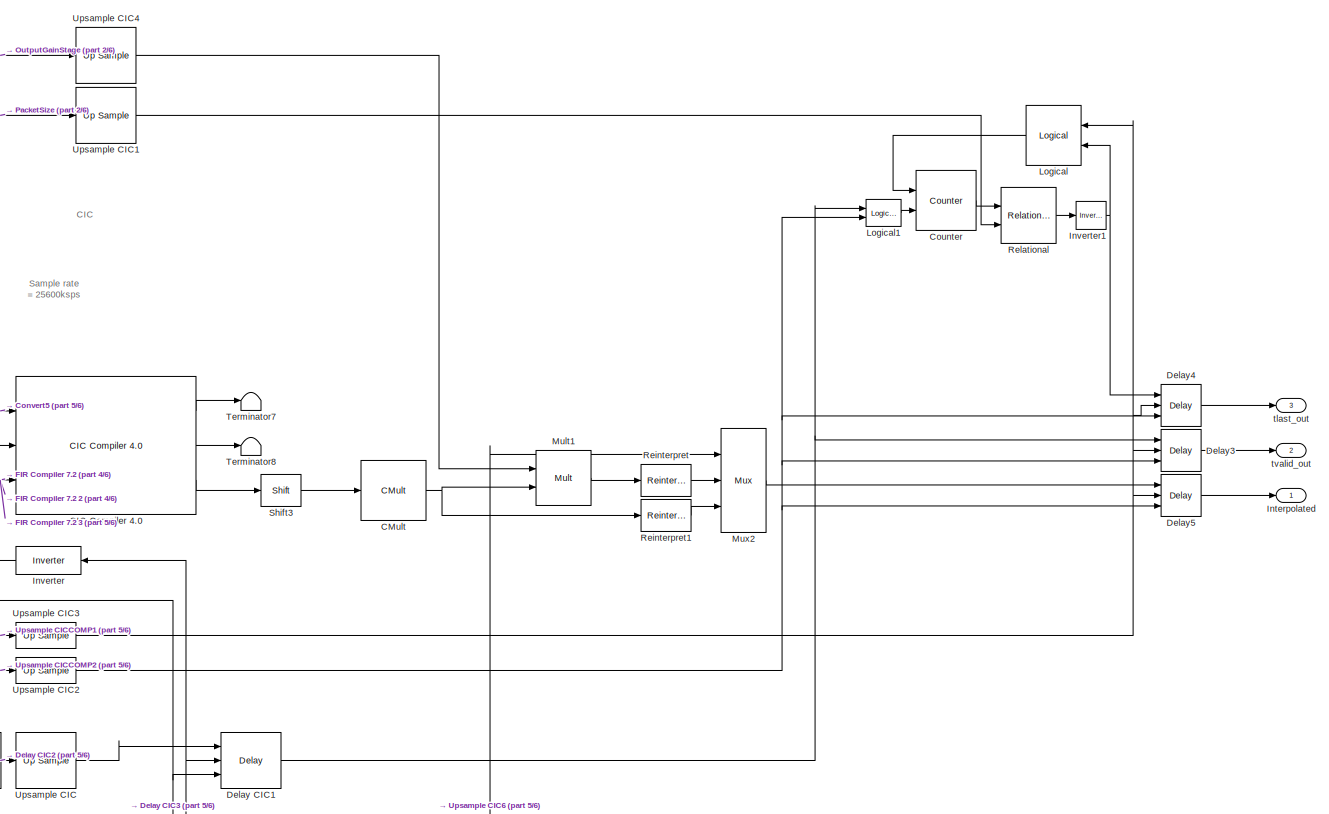
[diagram: AXI_QPSK_Generator/TxInterp_I - part 1/6, top right region]
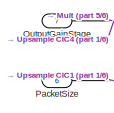
[diagram: AXI_QPSK_Generator/TxInterp_I - part 2/6, top left region]
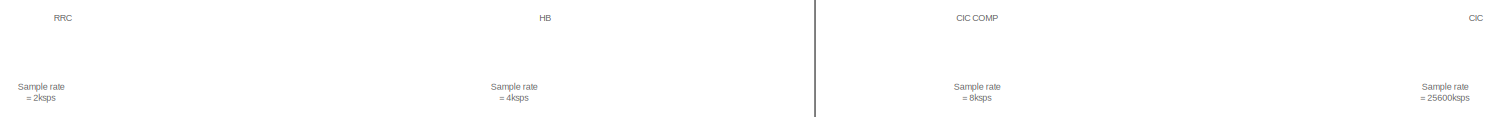
[diagram: AXI_QPSK_Generator/TxInterp_I - part 3/6, top center region]
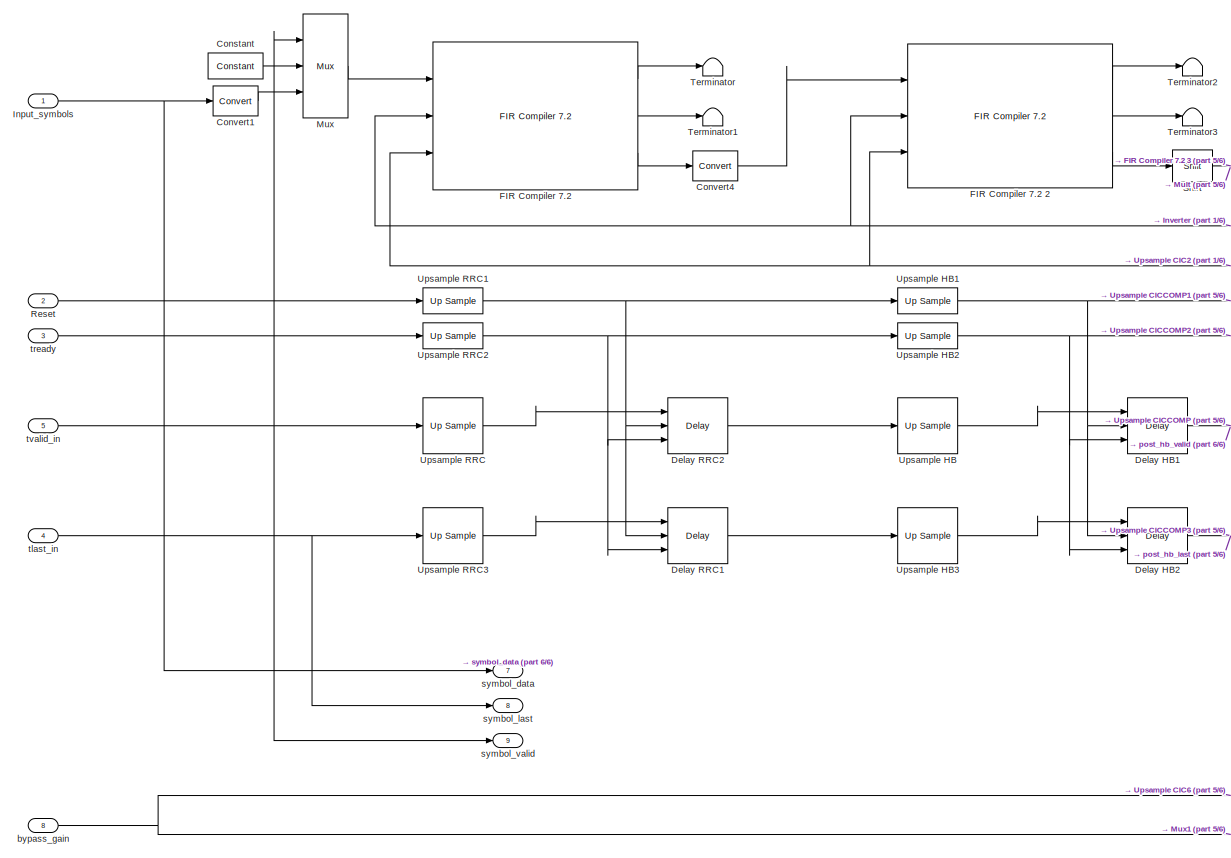
[diagram: AXI_QPSK_Generator/TxInterp_I - part 4/6, middle left region]
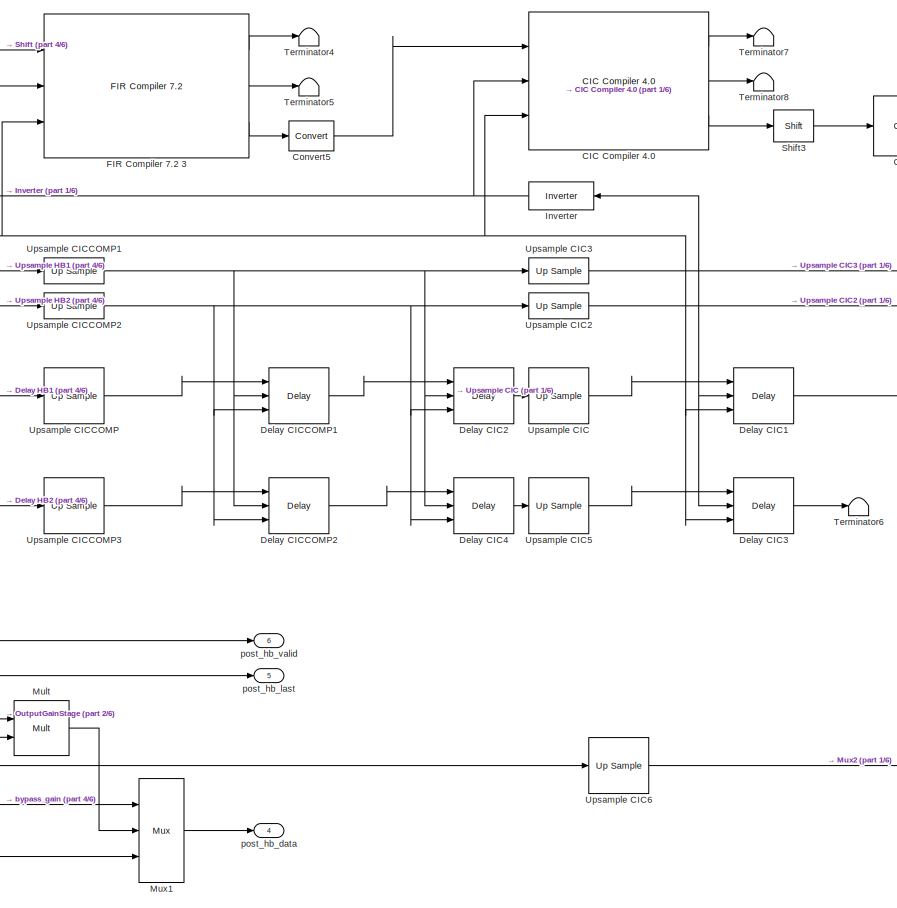
[diagram: AXI_QPSK_Generator/TxInterp_I - part 5/6, central region]
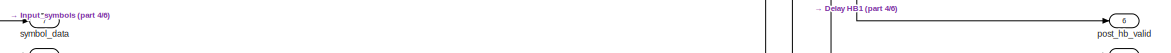
[diagram: AXI_QPSK_Generator/TxInterp_I - part 6/6, bottom center region]
BLOCK [SubSystem] AXI_QPSK_Generator/TxInterp_I
  Ports = [8, 9]
  RequestExecContextInheritance = off
BLOCK [Reference] AXI_QPSK_Generator/TxInterp_I/CIC Compiler 4.0   REF=xbsIndex_r4/CIC Compiler 4.0 
  Ports = [3, 3]
  SourceBlock = xbsIndex_r4/CIC Compiler 4.0
  SourceType = Xilinx CIC Compiler 4.0 Block
BLOCK [Reference] AXI_QPSK_Generator/TxInterp_I/CMult  REF=xbsIndex_r4/CMult
  Ports = [1, 1]
  SourceBlock = xbsIndex_r4/CMult
  SourceType = Xilinx Constant Multiplier Block
BLOCK [Reference] AXI_QPSK_Generator/TxInterp_I/Constant  REF=xbsIndex_r4/Constant
  Ports = [0, 1]
  SourceBlock = xbsIndex_r4/Constant
  SourceType = Xilinx Constant Block Block
BLOCK [Reference] AXI_QPSK_Generator/TxInterp_I/Convert1  REF=xbsIndex_r4/Convert
  Ports = [1, 1]
  SourceBlock = xbsIndex_r4/Convert
  SourceType = Xilinx Type Converter Block
BLOCK [Reference] AXI_QPSK_Generator/TxInterp_I/Convert4  REF=xbsIndex_r4/Convert
  Ports = [1, 1]
  SourceBlock = xbsIndex_r4/Convert
  SourceType = Xilinx Type Converter Block
BLOCK [Reference] AXI_QPSK_Generator/TxInterp_I/Convert5  REF=xbsIndex_r4/Convert
  Ports = [1, 1]
  SourceBlock = xbsIndex_r4/Convert
  SourceType = Xilinx Type Converter Block
BLOCK [Reference] AXI_QPSK_Generator/TxInterp_I/Counter  REF=xbsIndex_r4/Counter
  Ports = [2, 1]
  SourceBlock = xbsIndex_r4/Counter
  SourceType = Xilinx Counter Block
BLOCK [Reference] AXI_QPSK_Generator/TxInterp_I/Delay CIC1  REF=xbsIndex_r4/Delay
  Ports = [3, 1]
  SourceBlock = xbsIndex_r4/Delay
  SourceType = Xilinx Delay Block
BLOCK [Reference] AXI_QPSK_Generator/TxInterp_I/Delay CIC2  REF=xbsIndex_r4/Delay
  Ports = [3, 1]
  SourceBlock = xbsIndex_r4/Delay
  SourceType = Xilinx Delay Block
BLOCK [Reference] AXI_QPSK_Generator/TxInterp_I/Delay CIC3  REF=xbsIndex_r4/Delay
  Ports = [3, 1]
  SourceBlock = xbsIndex_r4/Delay
  SourceType = Xilinx Delay Block
BLOCK [Reference] AXI_QPSK_Generator/TxInterp_I/Delay CIC4  REF=xbsIndex_r4/Delay
  Ports = [3, 1]
  SourceBlock = xbsIndex_r4/Delay
  SourceType = Xilinx Delay Block
BLOCK [Reference] AXI_QPSK_Generator/TxInterp_I/Delay CICCOMP1  REF=xbsIndex_r4/Delay
  Ports = [3, 1]
  SourceBlock = xbsIndex_r4/Delay
  SourceType = Xilinx Delay Block
BLOCK [Reference] AXI_QPSK_Generator/TxInterp_I/Delay CICCOMP2  REF=xbsIndex_r4/Delay
  Ports = [3, 1]
  SourceBlock = xbsIndex_r4/Delay
  SourceType = Xilinx Delay Block
BLOCK [Reference] AXI_QPSK_Generator/TxInterp_I/Delay HB1  REF=xbsIndex_r4/Delay
  Ports = [3, 1]
  SourceBlock = xbsIndex_r4/Delay
  SourceType = Xilinx Delay Block
BLOCK [Reference] AXI_QPSK_Generator/TxInterp_I/Delay HB2  REF=xbsIndex_r4/Delay
  Ports = [3, 1]
  SourceBlock = xbsIndex_r4/Delay
  SourceType = Xilinx Delay Block
BLOCK [Reference] AXI_QPSK_Generator/TxInterp_I/Delay RRC1  REF=xbsIndex_r4/Delay
  Ports = [3, 1]
  SourceBlock = xbsIndex_r4/Delay
  SourceType = Xilinx Delay Block
BLOCK [Reference] AXI_QPSK_Generator/TxInterp_I/Delay RRC2  REF=xbsIndex_r4/Delay
  Ports = [3, 1]
  SourceBlock = xbsIndex_r4/Delay
  SourceType = Xilinx Delay Block
BLOCK [Reference] AXI_QPSK_Generator/TxInterp_I/Delay3  REF=xbsIndex_r4/Delay
  Ports = [3, 1]
  SourceBlock = xbsIndex_r4/Delay
  SourceType = Xilinx Delay Block
BLOCK [Reference] AXI_QPSK_Generator/TxInterp_I/Delay4  REF=xbsIndex_r4/Delay
  Ports = [3, 1]
  SourceBlock = xbsIndex_r4/Delay
  SourceType = Xilinx Delay Block
BLOCK [Reference] AXI_QPSK_Generator/TxInterp_I/Delay5  REF=xbsIndex_r4/Delay
  Ports = [3, 1]
  SourceBlock = xbsIndex_r4/Delay
  SourceType = Xilinx Delay Block
BLOCK [Reference] AXI_QPSK_Generator/TxInterp_I/FIR Compiler 7.2   REF=xbsIndex_r4/FIR Compiler 7.2 
  Ports = [3, 3]
  SourceBlock = xbsIndex_r4/FIR Compiler 7.2
  SourceType = Xilinx FIR Compiler 7.2 Block
BLOCK [Reference] AXI_QPSK_Generator/TxInterp_I/FIR Compiler 7.2 2  REF=xbsIndex_r4/FIR Compiler 7.2 
  Ports = [3, 3]
  SourceBlock = xbsIndex_r4/FIR Compiler 7.2
  SourceType = Xilinx FIR Compiler 7.2 Block
BLOCK [Reference] AXI_QPSK_Generator/TxInterp_I/FIR Compiler 7.2 3  REF=xbsIndex_r4/FIR Compiler 7.2 
  Ports = [3, 3]
  SourceBlock = xbsIndex_r4/FIR Compiler 7.2
  SourceType = Xilinx FIR Compiler 7.2 Block
BLOCK [Inport] AXI_QPSK_Generator/TxInterp_I/Input_symbols
BLOCK [Outport] AXI_QPSK_Generator/TxInterp_I/Interpolated
  VectorParamsAs1DForOutWhenUnconnected = off
BLOCK [Reference] AXI_QPSK_Generator/TxInterp_I/Inverter  REF=xbsIndex_r4/Inverter
  Ports = [1, 1]
  SourceBlock = xbsIndex_r4/Inverter
  SourceType = Xilinx Inverter Block
BLOCK [Reference] AXI_QPSK_Generator/TxInterp_I/Inverter1  REF=xbsIndex_r4/Inverter
  NameLocation = top
  Ports = [1, 1]
  SourceBlock = xbsIndex_r4/Inverter
  SourceType = Xilinx Inverter Block
BLOCK [Reference] AXI_QPSK_Generator/TxInterp_I/Logical  REF=xbsIndex_r4/Logical
  NameLocation = top
  Ports = [2, 1]
  SourceBlock = xbsIndex_r4/Logical
  SourceType = Xilinx Logical Block Block
BLOCK [Reference] AXI_QPSK_Generator/TxInterp_I/Logical1  REF=xbsIndex_r4/Logical
  Ports = [2, 1]
  SourceBlock = xbsIndex_r4/Logical
  SourceType = Xilinx Logical Block Block
BLOCK [Reference] AXI_QPSK_Generator/TxInterp_I/Mult  REF=xbsIndex_r4/Mult
  Ports = [2, 1]
  SourceBlock = xbsIndex_r4/Mult
  SourceType = Xilinx Multiplier Block
BLOCK [Reference] AXI_QPSK_Generator/TxInterp_I/Mult1  REF=xbsIndex_r4/Mult
  Ports = [2, 1]
  SourceBlock = xbsIndex_r4/Mult
  SourceType = Xilinx Multiplier Block
BLOCK [Reference] AXI_QPSK_Generator/TxInterp_I/Mux  REF=xbsIndex_r4/Mux
  Ports = [3, 1]
  SourceBlock = xbsIndex_r4/Mux
  SourceType = Xilinx Bus Multiplexer Block
BLOCK [Reference] AXI_QPSK_Generator/TxInterp_I/Mux1  REF=xbsIndex_r4/Mux
  Ports = [3, 1]
  SourceBlock = xbsIndex_r4/Mux
  SourceType = Xilinx Bus Multiplexer Block
BLOCK [Reference] AXI_QPSK_Generator/TxInterp_I/Mux2  REF=xbsIndex_r4/Mux
  Ports = [3, 1]
  SourceBlock = xbsIndex_r4/Mux
  SourceType = Xilinx Bus Multiplexer Block
BLOCK [Inport] AXI_QPSK_Generator/TxInterp_I/OutputGainStage
  Port = 7
BLOCK [Inport] AXI_QPSK_Generator/TxInterp_I/PacketSize
  Port = 6
BLOCK [Reference] AXI_QPSK_Generator/TxInterp_I/Reinterpret  REF=xbsIndex_r4/Reinterpret
  Ports = [1, 1]
  SourceBlock = xbsIndex_r4/Reinterpret
  SourceType = Xilinx Type Reinterpreter Block
BLOCK [Reference] AXI_QPSK_Generator/TxInterp_I/Reinterpret1  REF=xbsIndex_r4/Reinterpret
  Ports = [1, 1]
  SourceBlock = xbsIndex_r4/Reinterpret
  SourceType = Xilinx Type Reinterpreter Block
BLOCK [Reference] AXI_QPSK_Generator/TxInterp_I/Relational  REF=xbsIndex_r4/Relational
  Ports = [2, 1]
  SourceBlock = xbsIndex_r4/Relational
  SourceType = Xilinx Arithmetic Relational Operator Block
BLOCK [Inport] AXI_QPSK_Generator/TxInterp_I/Reset
  Port = 2
BLOCK [Reference] AXI_QPSK_Generator/TxInterp_I/Shift  REF=xbsIndex_r4/Shift
  Ports = [1, 1]
  SourceBlock = xbsIndex_r4/Shift
  SourceType = Xilinx Binary Shift Operator Block
BLOCK [Reference] AXI_QPSK_Generator/TxInterp_I/Shift3  REF=xbsIndex_r4/Shift
  Ports = [1, 1]
  SourceBlock = xbsIndex_r4/Shift
  SourceType = Xilinx Binary Shift Operator Block
BLOCK [Terminator] AXI_QPSK_Generator/TxInterp_I/Terminator
BLOCK [Terminator] AXI_QPSK_Generator/TxInterp_I/Terminator1
BLOCK [Terminator] AXI_QPSK_Generator/TxInterp_I/Terminator2
BLOCK [Terminator] AXI_QPSK_Generator/TxInterp_I/Terminator3
BLOCK [Terminator] AXI_QPSK_Generator/TxInterp_I/Terminator4
BLOCK [Terminator] AXI_QPSK_Generator/TxInterp_I/Terminator5
BLOCK [Terminator] AXI_QPSK_Generator/TxInterp_I/Terminator6
BLOCK [Terminator] AXI_QPSK_Generator/TxInterp_I/Terminator7
BLOCK [Terminator] AXI_QPSK_Generator/TxInterp_I/Terminator8
BLOCK [Reference] AXI_QPSK_Generator/TxInterp_I/Upsample CIC  REF=xbsIndex_r4/Up Sample
  Ports = [1, 1]
  SourceBlock = xbsIndex_r4/Up Sample
  SourceType = Xilinx Up Sampler Block
BLOCK [Reference] AXI_QPSK_Generator/TxInterp_I/Upsample CIC1  REF=xbsIndex_r4/Up Sample
  Ports = [1, 1]
  SourceBlock = xbsIndex_r4/Up Sample
  SourceType = Xilinx Up Sampler Block
BLOCK [Reference] AXI_QPSK_Generator/TxInterp_I/Upsample CIC2  REF=xbsIndex_r4/Up Sample
  Ports = [1, 1]
  SourceBlock = xbsIndex_r4/Up Sample
  SourceType = Xilinx Up Sampler Block
BLOCK [Reference] AXI_QPSK_Generator/TxInterp_I/Upsample CIC3  REF=xbsIndex_r4/Up Sample
  Ports = [1, 1]
  SourceBlock = xbsIndex_r4/Up Sample
  SourceType = Xilinx Up Sampler Block
BLOCK [Reference] AXI_QPSK_Generator/TxInterp_I/Upsample CIC4  REF=xbsIndex_r4/Up Sample
  Ports = [1, 1]
  SourceBlock = xbsIndex_r4/Up Sample
  SourceType = Xilinx Up Sampler Block
BLOCK [Reference] AXI_QPSK_Generator/TxInterp_I/Upsample CIC5  REF=xbsIndex_r4/Up Sample
  Ports = [1, 1]
  SourceBlock = xbsIndex_r4/Up Sample
  SourceType = Xilinx Up Sampler Block
BLOCK [Reference] AXI_QPSK_Generator/TxInterp_I/Upsample CIC6  REF=xbsIndex_r4/Up Sample
  Ports = [1, 1]
  SourceBlock = xbsIndex_r4/Up Sample
  SourceType = Xilinx Up Sampler Block
BLOCK [Reference] AXI_QPSK_Generator/TxInterp_I/Upsample CICCOMP  REF=xbsIndex_r4/Up Sample
  Ports = [1, 1]
  SourceBlock = xbsIndex_r4/Up Sample
  SourceType = Xilinx Up Sampler Block
BLOCK [Reference] AXI_QPSK_Generator/TxInterp_I/Upsample CICCOMP1  REF=xbsIndex_r4/Up Sample
  Ports = [1, 1]
  SourceBlock = xbsIndex_r4/Up Sample
  SourceType = Xilinx Up Sampler Block
BLOCK [Reference] AXI_QPSK_Generator/TxInterp_I/Upsample CICCOMP2  REF=xbsIndex_r4/Up Sample
  Ports = [1, 1]
  SourceBlock = xbsIndex_r4/Up Sample
  SourceType = Xilinx Up Sampler Block
BLOCK [Reference] AXI_QPSK_Generator/TxInterp_I/Upsample CICCOMP3  REF=xbsIndex_r4/Up Sample
  Ports = [1, 1]
  SourceBlock = xbsIndex_r4/Up Sample
  SourceType = Xilinx Up Sampler Block
BLOCK [Reference] AXI_QPSK_Generator/TxInterp_I/Upsample HB  REF=xbsIndex_r4/Up Sample
  Ports = [1, 1]
  SourceBlock = xbsIndex_r4/Up Sample
  SourceType = Xilinx Up Sampler Block
BLOCK [Reference] AXI_QPSK_Generator/TxInterp_I/Upsample HB1  REF=xbsIndex_r4/Up Sample
  Ports = [1, 1]
  SourceBlock = xbsIndex_r4/Up Sample
  SourceType = Xilinx Up Sampler Block
BLOCK [Reference] AXI_QPSK_Generator/TxInterp_I/Upsample HB2  REF=xbsIndex_r4/Up Sample
  Ports = [1, 1]
  SourceBlock = xbsIndex_r4/Up Sample
  SourceType = Xilinx Up Sampler Block
BLOCK [Reference] AXI_QPSK_Generator/TxInterp_I/Upsample HB3  REF=xbsIndex_r4/Up Sample
  Ports = [1, 1]
  SourceBlock = xbsIndex_r4/Up Sample
  SourceType = Xilinx Up Sampler Block
BLOCK [Reference] AXI_QPSK_Generator/TxInterp_I/Upsample RRC  REF=xbsIndex_r4/Up Sample
  Ports = [1, 1]
  SourceBlock = xbsIndex_r4/Up Sample
  SourceType = Xilinx Up Sampler Block
BLOCK [Reference] AXI_QPSK_Generator/TxInterp_I/Upsample RRC1  REF=xbsIndex_r4/Up Sample
  Ports = [1, 1]
  SourceBlock = xbsIndex_r4/Up Sample
  SourceType = Xilinx Up Sampler Block
BLOCK [Reference] AXI_QPSK_Generator/TxInterp_I/Upsample RRC2  REF=xbsIndex_r4/Up Sample
  Ports = [1, 1]
  SourceBlock = xbsIndex_r4/Up Sample
  SourceType = Xilinx Up Sampler Block
BLOCK [Reference] AXI_QPSK_Generator/TxInterp_I/Upsample RRC3  REF=xbsIndex_r4/Up Sample
  Ports = [1, 1]
  SourceBlock = xbsIndex_r4/Up Sample
  SourceType = Xilinx Up Sampler Block
BLOCK [Inport] AXI_QPSK_Generator/TxInterp_I/bypass_gain
  Port = 8
BLOCK [Outport] AXI_QPSK_Generator/TxInterp_I/post_hb_data
  Port = 4
  VectorParamsAs1DForOutWhenUnconnected = off
BLOCK [Outport] AXI_QPSK_Generator/TxInterp_I/post_hb_last
  Port = 5
  VectorParamsAs1DForOutWhenUnconnected = off
BLOCK [Outport] AXI_QPSK_Generator/TxInterp_I/post_hb_valid
  Port = 6
  VectorParamsAs1DForOutWhenUnconnected = off
BLOCK [Outport] AXI_QPSK_Generator/TxInterp_I/symbol_data
  Port = 7
  VectorParamsAs1DForOutWhenUnconnected = off
BLOCK [Outport] AXI_QPSK_Generator/TxInterp_I/symbol_last
  Port = 8
  VectorParamsAs1DForOutWhenUnconnected = off
BLOCK [Outport] AXI_QPSK_Generator/TxInterp_I/symbol_valid
  Port = 9
  VectorParamsAs1DForOutWhenUnconnected = off
BLOCK [Inport] AXI_QPSK_Generator/TxInterp_I/tlast_in
  Port = 4
BLOCK [Outport] AXI_QPSK_Generator/TxInterp_I/tlast_out
  Port = 3
  VectorParamsAs1DForOutWhenUnconnected = off
BLOCK [Inport] AXI_QPSK_Generator/TxInterp_I/tready
  Port = 3
BLOCK [Inport] AXI_QPSK_Generator/TxInterp_I/tvalid_in
  Port = 5
BLOCK [Outport] AXI_QPSK_Generator/TxInterp_I/tvalid_out
  Port = 2
  VectorParamsAs1DForOutWhenUnconnected = off
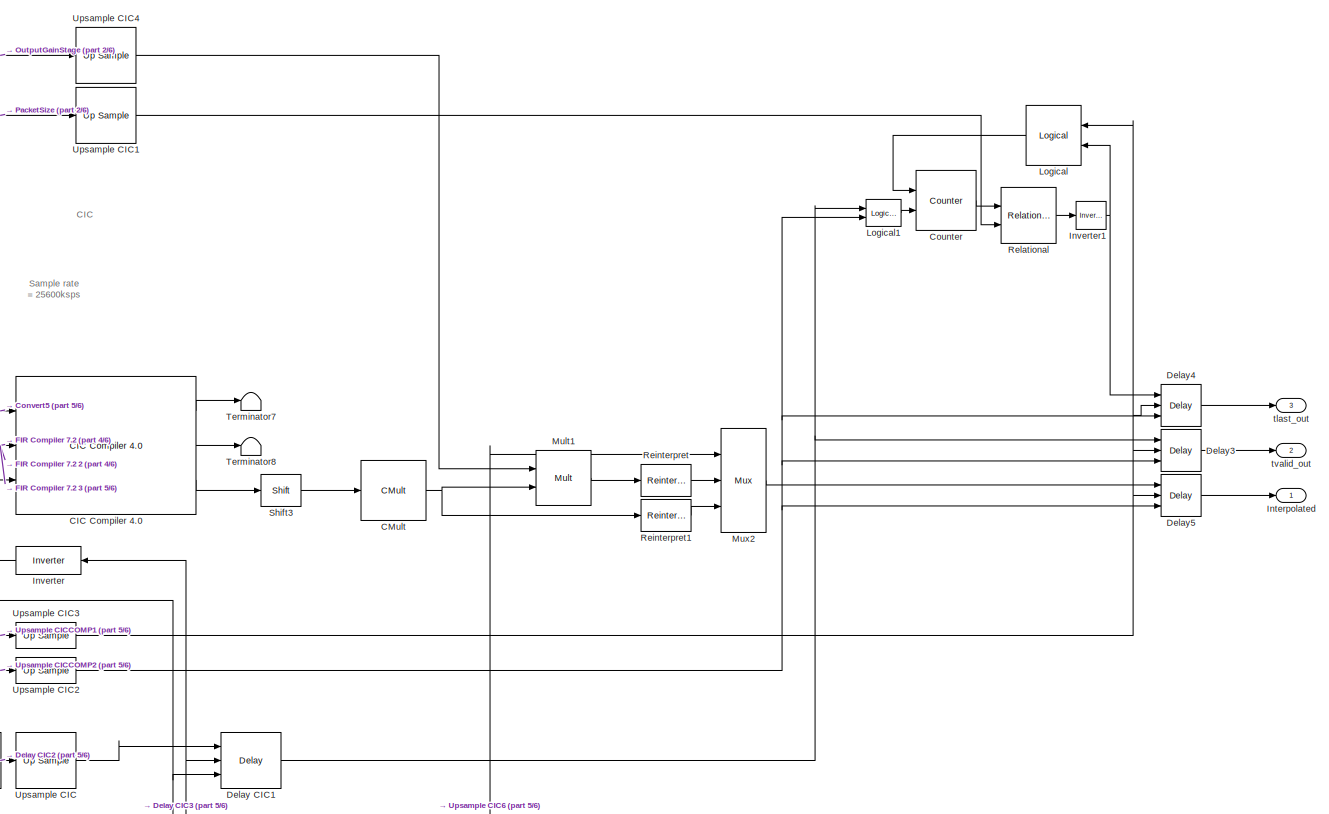
[diagram: AXI_QPSK_Generator/TxInterp_Q - part 1/6, top right region]
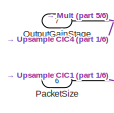
[diagram: AXI_QPSK_Generator/TxInterp_Q - part 2/6, top left region]
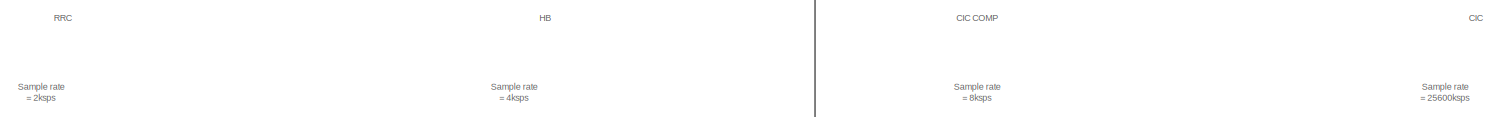
[diagram: AXI_QPSK_Generator/TxInterp_Q - part 3/6, top center region]
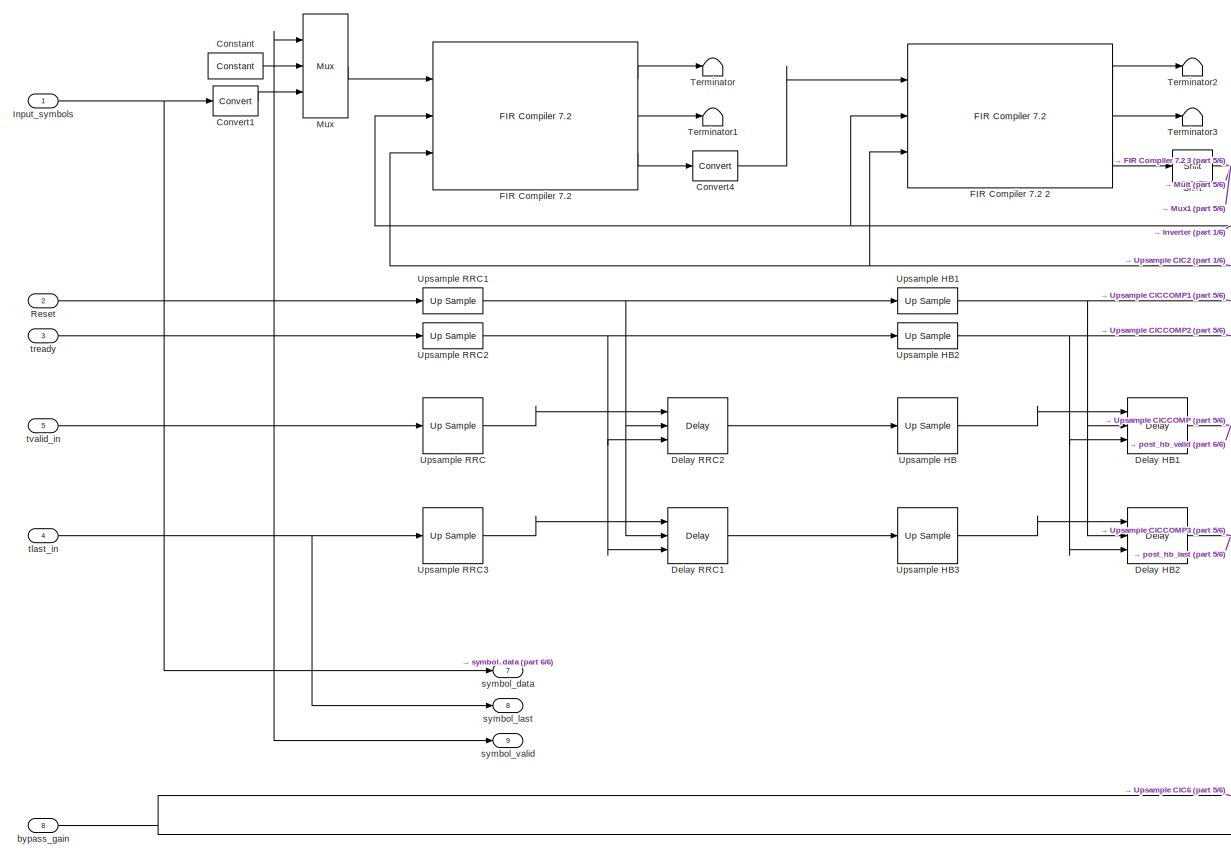
[diagram: AXI_QPSK_Generator/TxInterp_Q - part 4/6, middle left region]
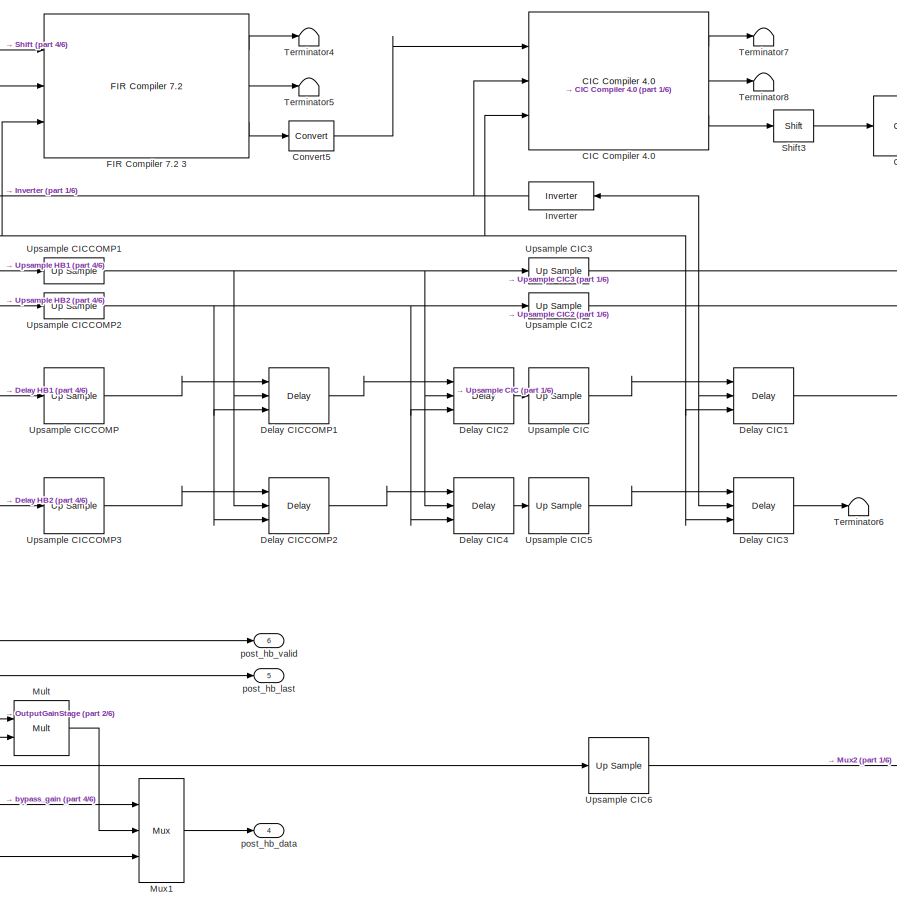
[diagram: AXI_QPSK_Generator/TxInterp_Q - part 5/6, central region]
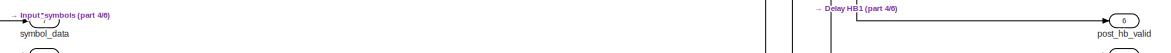
[diagram: AXI_QPSK_Generator/TxInterp_Q - part 6/6, bottom center region]
BLOCK [SubSystem] AXI_QPSK_Generator/TxInterp_Q
  Ports = [8, 9]
  RequestExecContextInheritance = off
BLOCK [Reference] AXI_QPSK_Generator/TxInterp_Q/CIC Compiler 4.0   REF=xbsIndex_r4/CIC Compiler 4.0 
  Ports = [3, 3]
  SourceBlock = xbsIndex_r4/CIC Compiler 4.0
  SourceType = Xilinx CIC Compiler 4.0 Block
BLOCK [Reference] AXI_QPSK_Generator/TxInterp_Q/CMult  REF=xbsIndex_r4/CMult
  Ports = [1, 1]
  SourceBlock = xbsIndex_r4/CMult
  SourceType = Xilinx Constant Multiplier Block
BLOCK [Reference] AXI_QPSK_Generator/TxInterp_Q/Constant  REF=xbsIndex_r4/Constant
  Ports = [0, 1]
  SourceBlock = xbsIndex_r4/Constant
  SourceType = Xilinx Constant Block Block
BLOCK [Reference] AXI_QPSK_Generator/TxInterp_Q/Convert1  REF=xbsIndex_r4/Convert
  Ports = [1, 1]
  SourceBlock = xbsIndex_r4/Convert
  SourceType = Xilinx Type Converter Block
BLOCK [Reference] AXI_QPSK_Generator/TxInterp_Q/Convert4  REF=xbsIndex_r4/Convert
  Ports = [1, 1]
  SourceBlock = xbsIndex_r4/Convert
  SourceType = Xilinx Type Converter Block
BLOCK [Reference] AXI_QPSK_Generator/TxInterp_Q/Convert5  REF=xbsIndex_r4/Convert
  Ports = [1, 1]
  SourceBlock = xbsIndex_r4/Convert
  SourceType = Xilinx Type Converter Block
BLOCK [Reference] AXI_QPSK_Generator/TxInterp_Q/Counter  REF=xbsIndex_r4/Counter
  Ports = [2, 1]
  SourceBlock = xbsIndex_r4/Counter
  SourceType = Xilinx Counter Block
BLOCK [Reference] AXI_QPSK_Generator/TxInterp_Q/Delay CIC1  REF=xbsIndex_r4/Delay
  Ports = [3, 1]
  SourceBlock = xbsIndex_r4/Delay
  SourceType = Xilinx Delay Block
BLOCK [Reference] AXI_QPSK_Generator/TxInterp_Q/Delay CIC2  REF=xbsIndex_r4/Delay
  Ports = [3, 1]
  SourceBlock = xbsIndex_r4/Delay
  SourceType = Xilinx Delay Block
BLOCK [Reference] AXI_QPSK_Generator/TxInterp_Q/Delay CIC3  REF=xbsIndex_r4/Delay
  Ports = [3, 1]
  SourceBlock = xbsIndex_r4/Delay
  SourceType = Xilinx Delay Block
BLOCK [Reference] AXI_QPSK_Generator/TxInterp_Q/Delay CIC4  REF=xbsIndex_r4/Delay
  Ports = [3, 1]
  SourceBlock = xbsIndex_r4/Delay
  SourceType = Xilinx Delay Block
BLOCK [Reference] AXI_QPSK_Generator/TxInterp_Q/Delay CICCOMP1  REF=xbsIndex_r4/Delay
  Ports = [3, 1]
  SourceBlock = xbsIndex_r4/Delay
  SourceType = Xilinx Delay Block
BLOCK [Reference] AXI_QPSK_Generator/TxInterp_Q/Delay CICCOMP2  REF=xbsIndex_r4/Delay
  Ports = [3, 1]
  SourceBlock = xbsIndex_r4/Delay
  SourceType = Xilinx Delay Block
BLOCK [Reference] AXI_QPSK_Generator/TxInterp_Q/Delay HB1  REF=xbsIndex_r4/Delay
  Ports = [3, 1]
  SourceBlock = xbsIndex_r4/Delay
  SourceType = Xilinx Delay Block
BLOCK [Reference] AXI_QPSK_Generator/TxInterp_Q/Delay HB2  REF=xbsIndex_r4/Delay
  Ports = [3, 1]
  SourceBlock = xbsIndex_r4/Delay
  SourceType = Xilinx Delay Block
BLOCK [Reference] AXI_QPSK_Generator/TxInterp_Q/Delay RRC1  REF=xbsIndex_r4/Delay
  Ports = [3, 1]
  SourceBlock = xbsIndex_r4/Delay
  SourceType = Xilinx Delay Block
BLOCK [Reference] AXI_QPSK_Generator/TxInterp_Q/Delay RRC2  REF=xbsIndex_r4/Delay
  Ports = [3, 1]
  SourceBlock = xbsIndex_r4/Delay
  SourceType = Xilinx Delay Block
BLOCK [Reference] AXI_QPSK_Generator/TxInterp_Q/Delay3  REF=xbsIndex_r4/Delay
  Ports = [3, 1]
  SourceBlock = xbsIndex_r4/Delay
  SourceType = Xilinx Delay Block
BLOCK [Reference] AXI_QPSK_Generator/TxInterp_Q/Delay4  REF=xbsIndex_r4/Delay
  Ports = [3, 1]
  SourceBlock = xbsIndex_r4/Delay
  SourceType = Xilinx Delay Block
BLOCK [Reference] AXI_QPSK_Generator/TxInterp_Q/Delay5  REF=xbsIndex_r4/Delay
  Ports = [3, 1]
  SourceBlock = xbsIndex_r4/Delay
  SourceType = Xilinx Delay Block
BLOCK [Reference] AXI_QPSK_Generator/TxInterp_Q/FIR Compiler 7.2   REF=xbsIndex_r4/FIR Compiler 7.2 
  Ports = [3, 3]
  SourceBlock = xbsIndex_r4/FIR Compiler 7.2
  SourceType = Xilinx FIR Compiler 7.2 Block
BLOCK [Reference] AXI_QPSK_Generator/TxInterp_Q/FIR Compiler 7.2 2  REF=xbsIndex_r4/FIR Compiler 7.2 
  Ports = [3, 3]
  SourceBlock = xbsIndex_r4/FIR Compiler 7.2
  SourceType = Xilinx FIR Compiler 7.2 Block
BLOCK [Reference] AXI_QPSK_Generator/TxInterp_Q/FIR Compiler 7.2 3  REF=xbsIndex_r4/FIR Compiler 7.2 
  Ports = [3, 3]
  SourceBlock = xbsIndex_r4/FIR Compiler 7.2
  SourceType = Xilinx FIR Compiler 7.2 Block
BLOCK [Inport] AXI_QPSK_Generator/TxInterp_Q/Input_symbols
BLOCK [Outport] AXI_QPSK_Generator/TxInterp_Q/Interpolated
  VectorParamsAs1DForOutWhenUnconnected = off
BLOCK [Reference] AXI_QPSK_Generator/TxInterp_Q/Inverter  REF=xbsIndex_r4/Inverter
  Ports = [1, 1]
  SourceBlock = xbsIndex_r4/Inverter
  SourceType = Xilinx Inverter Block
BLOCK [Reference] AXI_QPSK_Generator/TxInterp_Q/Inverter1  REF=xbsIndex_r4/Inverter
  NameLocation = top
  Ports = [1, 1]
  SourceBlock = xbsIndex_r4/Inverter
  SourceType = Xilinx Inverter Block
BLOCK [Reference] AXI_QPSK_Generator/TxInterp_Q/Logical  REF=xbsIndex_r4/Logical
  NameLocation = top
  Ports = [2, 1]
  SourceBlock = xbsIndex_r4/Logical
  SourceType = Xilinx Logical Block Block
BLOCK [Reference] AXI_QPSK_Generator/TxInterp_Q/Logical1  REF=xbsIndex_r4/Logical
  Ports = [2, 1]
  SourceBlock = xbsIndex_r4/Logical
  SourceType = Xilinx Logical Block Block
BLOCK [Reference] AXI_QPSK_Generator/TxInterp_Q/Mult  REF=xbsIndex_r4/Mult
  Ports = [2, 1]
  SourceBlock = xbsIndex_r4/Mult
  SourceType = Xilinx Multiplier Block
BLOCK [Reference] AXI_QPSK_Generator/TxInterp_Q/Mult1  REF=xbsIndex_r4/Mult
  Ports = [2, 1]
  SourceBlock = xbsIndex_r4/Mult
  SourceType = Xilinx Multiplier Block
BLOCK [Reference] AXI_QPSK_Generator/TxInterp_Q/Mux  REF=xbsIndex_r4/Mux
  Ports = [3, 1]
  SourceBlock = xbsIndex_r4/Mux
  SourceType = Xilinx Bus Multiplexer Block
BLOCK [Reference] AXI_QPSK_Generator/TxInterp_Q/Mux1  REF=xbsIndex_r4/Mux
  Ports = [3, 1]
  SourceBlock = xbsIndex_r4/Mux
  SourceType = Xilinx Bus Multiplexer Block
BLOCK [Reference] AXI_QPSK_Generator/TxInterp_Q/Mux2  REF=xbsIndex_r4/Mux
  Ports = [3, 1]
  SourceBlock = xbsIndex_r4/Mux
  SourceType = Xilinx Bus Multiplexer Block
BLOCK [Inport] AXI_QPSK_Generator/TxInterp_Q/OutputGainStage
  Port = 7
BLOCK [Inport] AXI_QPSK_Generator/TxInterp_Q/PacketSize
  Port = 6
BLOCK [Reference] AXI_QPSK_Generator/TxInterp_Q/Reinterpret  REF=xbsIndex_r4/Reinterpret
  Ports = [1, 1]
  SourceBlock = xbsIndex_r4/Reinterpret
  SourceType = Xilinx Type Reinterpreter Block
BLOCK [Reference] AXI_QPSK_Generator/TxInterp_Q/Reinterpret1  REF=xbsIndex_r4/Reinterpret
  Ports = [1, 1]
  SourceBlock = xbsIndex_r4/Reinterpret
  SourceType = Xilinx Type Reinterpreter Block
BLOCK [Reference] AXI_QPSK_Generator/TxInterp_Q/Relational  REF=xbsIndex_r4/Relational
  Ports = [2, 1]
  SourceBlock = xbsIndex_r4/Relational
  SourceType = Xilinx Arithmetic Relational Operator Block
BLOCK [Inport] AXI_QPSK_Generator/TxInterp_Q/Reset
  Port = 2
BLOCK [Reference] AXI_QPSK_Generator/TxInterp_Q/Shift  REF=xbsIndex_r4/Shift
  Ports = [1, 1]
  SourceBlock = xbsIndex_r4/Shift
  SourceType = Xilinx Binary Shift Operator Block
BLOCK [Reference] AXI_QPSK_Generator/TxInterp_Q/Shift3  REF=xbsIndex_r4/Shift
  Ports = [1, 1]
  SourceBlock = xbsIndex_r4/Shift
  SourceType = Xilinx Binary Shift Operator Block
BLOCK [Terminator] AXI_QPSK_Generator/TxInterp_Q/Terminator
BLOCK [Terminator] AXI_QPSK_Generator/TxInterp_Q/Terminator1
BLOCK [Terminator] AXI_QPSK_Generator/TxInterp_Q/Terminator2
BLOCK [Terminator] AXI_QPSK_Generator/TxInterp_Q/Terminator3
BLOCK [Terminator] AXI_QPSK_Generator/TxInterp_Q/Terminator4
BLOCK [Terminator] AXI_QPSK_Generator/TxInterp_Q/Terminator5
BLOCK [Terminator] AXI_QPSK_Generator/TxInterp_Q/Terminator6
BLOCK [Terminator] AXI_QPSK_Generator/TxInterp_Q/Terminator7
BLOCK [Terminator] AXI_QPSK_Generator/TxInterp_Q/Terminator8
BLOCK [Reference] AXI_QPSK_Generator/TxInterp_Q/Upsample CIC  REF=xbsIndex_r4/Up Sample
  Ports = [1, 1]
  SourceBlock = xbsIndex_r4/Up Sample
  SourceType = Xilinx Up Sampler Block
BLOCK [Reference] AXI_QPSK_Generator/TxInterp_Q/Upsample CIC1  REF=xbsIndex_r4/Up Sample
  Ports = [1, 1]
  SourceBlock = xbsIndex_r4/Up Sample
  SourceType = Xilinx Up Sampler Block
BLOCK [Reference] AXI_QPSK_Generator/TxInterp_Q/Upsample CIC2  REF=xbsIndex_r4/Up Sample
  Ports = [1, 1]
  SourceBlock = xbsIndex_r4/Up Sample
  SourceType = Xilinx Up Sampler Block
BLOCK [Reference] AXI_QPSK_Generator/TxInterp_Q/Upsample CIC3  REF=xbsIndex_r4/Up Sample
  Ports = [1, 1]
  SourceBlock = xbsIndex_r4/Up Sample
  SourceType = Xilinx Up Sampler Block
BLOCK [Reference] AXI_QPSK_Generator/TxInterp_Q/Upsample CIC4  REF=xbsIndex_r4/Up Sample
  Ports = [1, 1]
  SourceBlock = xbsIndex_r4/Up Sample
  SourceType = Xilinx Up Sampler Block
BLOCK [Reference] AXI_QPSK_Generator/TxInterp_Q/Upsample CIC5  REF=xbsIndex_r4/Up Sample
  Ports = [1, 1]
  SourceBlock = xbsIndex_r4/Up Sample
  SourceType = Xilinx Up Sampler Block
BLOCK [Reference] AXI_QPSK_Generator/TxInterp_Q/Upsample CIC6  REF=xbsIndex_r4/Up Sample
  Ports = [1, 1]
  SourceBlock = xbsIndex_r4/Up Sample
  SourceType = Xilinx Up Sampler Block
BLOCK [Reference] AXI_QPSK_Generator/TxInterp_Q/Upsample CICCOMP  REF=xbsIndex_r4/Up Sample
  Ports = [1, 1]
  SourceBlock = xbsIndex_r4/Up Sample
  SourceType = Xilinx Up Sampler Block
BLOCK [Reference] AXI_QPSK_Generator/TxInterp_Q/Upsample CICCOMP1  REF=xbsIndex_r4/Up Sample
  Ports = [1, 1]
  SourceBlock = xbsIndex_r4/Up Sample
  SourceType = Xilinx Up Sampler Block
BLOCK [Reference] AXI_QPSK_Generator/TxInterp_Q/Upsample CICCOMP2  REF=xbsIndex_r4/Up Sample
  Ports = [1, 1]
  SourceBlock = xbsIndex_r4/Up Sample
  SourceType = Xilinx Up Sampler Block
BLOCK [Reference] AXI_QPSK_Generator/TxInterp_Q/Upsample CICCOMP3  REF=xbsIndex_r4/Up Sample
  Ports = [1, 1]
  SourceBlock = xbsIndex_r4/Up Sample
  SourceType = Xilinx Up Sampler Block
BLOCK [Reference] AXI_QPSK_Generator/TxInterp_Q/Upsample HB  REF=xbsIndex_r4/Up Sample
  Ports = [1, 1]
  SourceBlock = xbsIndex_r4/Up Sample
  SourceType = Xilinx Up Sampler Block
BLOCK [Reference] AXI_QPSK_Generator/TxInterp_Q/Upsample HB1  REF=xbsIndex_r4/Up Sample
  Ports = [1, 1]
  SourceBlock = xbsIndex_r4/Up Sample
  SourceType = Xilinx Up Sampler Block
BLOCK [Reference] AXI_QPSK_Generator/TxInterp_Q/Upsample HB2  REF=xbsIndex_r4/Up Sample
  Ports = [1, 1]
  SourceBlock = xbsIndex_r4/Up Sample
  SourceType = Xilinx Up Sampler Block
BLOCK [Reference] AXI_QPSK_Generator/TxInterp_Q/Upsample HB3  REF=xbsIndex_r4/Up Sample
  Ports = [1, 1]
  SourceBlock = xbsIndex_r4/Up Sample
  SourceType = Xilinx Up Sampler Block
BLOCK [Reference] AXI_QPSK_Generator/TxInterp_Q/Upsample RRC  REF=xbsIndex_r4/Up Sample
  Ports = [1, 1]
  SourceBlock = xbsIndex_r4/Up Sample
  SourceType = Xilinx Up Sampler Block
BLOCK [Reference] AXI_QPSK_Generator/TxInterp_Q/Upsample RRC1  REF=xbsIndex_r4/Up Sample
  Ports = [1, 1]
  SourceBlock = xbsIndex_r4/Up Sample
  SourceType = Xilinx Up Sampler Block
BLOCK [Reference] AXI_QPSK_Generator/TxInterp_Q/Upsample RRC2  REF=xbsIndex_r4/Up Sample
  Ports = [1, 1]
  SourceBlock = xbsIndex_r4/Up Sample
  SourceType = Xilinx Up Sampler Block
BLOCK [Reference] AXI_QPSK_Generator/TxInterp_Q/Upsample RRC3  REF=xbsIndex_r4/Up Sample
  Ports = [1, 1]
  SourceBlock = xbsIndex_r4/Up Sample
  SourceType = Xilinx Up Sampler Block
BLOCK [Inport] AXI_QPSK_Generator/TxInterp_Q/bypass_gain
  Port = 8
BLOCK [Outport] AXI_QPSK_Generator/TxInterp_Q/post_hb_data
  Port = 4
  VectorParamsAs1DForOutWhenUnconnected = off
BLOCK [Outport] AXI_QPSK_Generator/TxInterp_Q/post_hb_last
  Port = 5
  VectorParamsAs1DForOutWhenUnconnected = off
BLOCK [Outport] AXI_QPSK_Generator/TxInterp_Q/post_hb_valid
  Port = 6
  VectorParamsAs1DForOutWhenUnconnected = off
BLOCK [Outport] AXI_QPSK_Generator/TxInterp_Q/symbol_data
  Port = 7
  VectorParamsAs1DForOutWhenUnconnected = off
BLOCK [Outport] AXI_QPSK_Generator/TxInterp_Q/symbol_last
  Port = 8
  VectorParamsAs1DForOutWhenUnconnected = off
BLOCK [Outport] AXI_QPSK_Generator/TxInterp_Q/symbol_valid
  Port = 9
  VectorParamsAs1DForOutWhenUnconnected = off
BLOCK [Inport] AXI_QPSK_Generator/TxInterp_Q/tlast_in
  Port = 4
BLOCK [Outport] AXI_QPSK_Generator/TxInterp_Q/tlast_out
  Port = 3
  VectorParamsAs1DForOutWhenUnconnected = off
BLOCK [Inport] AXI_QPSK_Generator/TxInterp_Q/tready
  Port = 3
BLOCK [Inport] AXI_QPSK_Generator/TxInterp_Q/tvalid_in
  Port = 5
BLOCK [Outport] AXI_QPSK_Generator/TxInterp_Q/tvalid_out
  Port = 2
  VectorParamsAs1DForOutWhenUnconnected = off
BLOCK [Outport] AXI_QPSK_Generator/m_axis_fft_tdata
  Port = 4
  VectorParamsAs1DForOutWhenUnconnected = off
BLOCK [Outport] AXI_QPSK_Generator/m_axis_fft_tlast
  Port = 6
  VectorParamsAs1DForOutWhenUnconnected = off
BLOCK [Inport] AXI_QPSK_Generator/m_axis_fft_tready
  Port = 7
BLOCK [Outport] AXI_QPSK_Generator/m_axis_fft_tvalid
  Port = 5
  VectorParamsAs1DForOutWhenUnconnected = off
BLOCK [Outport] AXI_QPSK_Generator/m_axis_symbol_tdata
  Port = 7
  VectorParamsAs1DForOutWhenUnconnected = off
BLOCK [Outport] AXI_QPSK_Generator/m_axis_symbol_tlast
  Port = 9
  VectorParamsAs1DForOutWhenUnconnected = off
BLOCK [Inport] AXI_QPSK_Generator/m_axis_symbol_tready
  Port = 8
BLOCK [Outport] AXI_QPSK_Generator/m_axis_symbol_tvalid
  Port = 8
  VectorParamsAs1DForOutWhenUnconnected = off
BLOCK [Outport] AXI_QPSK_Generator/m_axis_tdata
  VectorParamsAs1DForOutWhenUnconnected = off
BLOCK [Outport] AXI_QPSK_Generator/m_axis_time_tdata
  Port = 10
  VectorParamsAs1DForOutWhenUnconnected = off
BLOCK [Outport] AXI_QPSK_Generator/m_axis_time_tlast
  Port = 12
  VectorParamsAs1DForOutWhenUnconnected = off
BLOCK [Inport] AXI_QPSK_Generator/m_axis_time_tready
  Port = 16
BLOCK [Outport] AXI_QPSK_Generator/m_axis_time_tvalid
  Port = 11
  VectorParamsAs1DForOutWhenUnconnected = off
BLOCK [Outport] AXI_QPSK_Generator/m_axis_tlast
  Port = 3
  VectorParamsAs1DForOutWhenUnconnected = off
BLOCK [Inport] AXI_QPSK_Generator/m_axis_tready
  Port = 6
BLOCK [Outport] AXI_QPSK_Generator/m_axis_tvalid
  Port = 2
  VectorParamsAs1DForOutWhenUnconnected = off
BLOCK [Reference] Bit Slice  REF=hdlsllib/Logic and Bit
Operations/Bit Slice
  Ports = [1, 1]
  SourceBlock = hdlsllib/Logic and Bit\nOperations/Bit Slice
  SourceProductBaseCode = SL
  SourceType = Bit Slice
BLOCK [Reference] Bit Slice1  REF=hdlsllib/Logic and Bit
Operations/Bit Slice
  Ports = [1, 1]
  SourceBlock = hdlsllib/Logic and Bit\nOperations/Bit Slice
  SourceProductBaseCode = SL
  SourceType = Bit Slice
BLOCK [DataTypeConversion] Cast
  ConvertRealWorld = Stored Integer (SI)
  OutDataTypeStr = fixdt(1,16,14)
  RndMeth = Floor
  SaturateOnIntegerOverflow = off
BLOCK [DataTypeConversion] Cast1
  ConvertRealWorld = Stored Integer (SI)
  OutDataTypeStr = fixdt(1,16,14)
  RndMeth = Floor
  SaturateOnIntegerOverflow = off
BLOCK [Constant] Constant1
  SampleTime = 2/Rb
  Value = 4
BLOCK [Constant] Constant2
  SampleTime = 2/Rb
  Value = 0
BLOCK [Constant] Constant3
  SampleTime = 1/fHB
  Value = 2^32-1
BLOCK [Constant] Constant4
  SampleTime = 1/fCIC
  Value = 1024
BLOCK [Constant] Constant5
  SampleTime = 1/fCIC
  Value = 0
BLOCK [Constant] Constant6
  SampleTime = 2/Rb
BLOCK [Constant] Constant7
  SampleTime = 1/fCIC
BLOCK [Constant] Constant8
  SampleTime = 1/fHB
  Value = 0
BLOCK [ManualSwitch] Manual Switch
  CurrentSetting = 0
BLOCK [ManualSwitch] Manual Switch1
  CurrentSetting = 0
BLOCK [Step] Step
  After = 0
  Before = 1
  SampleTime = 2/Rb
  Time = 5/Rb
BLOCK [Step] Step1
  SampleTime = 2/Rb
  Time = 8/Rb
BLOCK [Terminator] Terminator
BLOCK [Terminator] Terminator1
BLOCK [Terminator] Terminator10
BLOCK [Terminator] Terminator11
BLOCK [Terminator] Terminator12
BLOCK [Terminator] Terminator2
BLOCK [Terminator] Terminator3
BLOCK [Terminator] Terminator4
BLOCK [Terminator] Terminator5
BLOCK [Terminator] Terminator6
BLOCK [Terminator] Terminator7
BLOCK [Terminator] Terminator8
BLOCK [Terminator] Terminator9
BLOCK [Constant] tready
  OutDataTypeStr = boolean
  SampleTime = -1
  VectorParams1D = off
ANNOTATION (root): AXI QPSK Symbol Transmitter with Interpolation
ANNOTATION (root): C opyright (c) 2019, Louise Crockett, Josh Goldsmith, David Northcote, and Craig Ramsay
ANNOTATION (root): Model 16/08/2018
ANNOTATION AXI_QPSK_Generator/CTRL: Done
ANNOTATION AXI_QPSK_Generator/Post_HB_FFT: |L| + 0.4|S| complex ABS approximation
ANNOTATION AXI_QPSK_Generator/QPSK_symbol_mapper: Symbol rate = 500sps
ANNOTATION AXI_QPSK_Generator/TxInterp_I: CIC COMP
ANNOTATION AXI_QPSK_Generator/TxInterp_I: CIC
ANNOTATION AXI_QPSK_Generator/TxInterp_I: HB
ANNOTATION AXI_QPSK_Generator/TxInterp_I: RRC
ANNOTATION AXI_QPSK_Generator/TxInterp_I: Sample rate = 25600ksps
ANNOTATION AXI_QPSK_Generator/TxInterp_I: Sample rate = 2ksps
ANNOTATION AXI_QPSK_Generator/TxInterp_I: Sample rate = 4ksps
ANNOTATION AXI_QPSK_Generator/TxInterp_I: Sample rate = 8ksps
ANNOTATION AXI_QPSK_Generator/TxInterp_Q: CIC COMP
ANNOTATION AXI_QPSK_Generator/TxInterp_Q: CIC
ANNOTATION AXI_QPSK_Generator/TxInterp_Q: HB
ANNOTATION AXI_QPSK_Generator/TxInterp_Q: RRC
ANNOTATION AXI_QPSK_Generator/TxInterp_Q: Sample rate = 25600ksps
ANNOTATION AXI_QPSK_Generator/TxInterp_Q: Sample rate = 2ksps
ANNOTATION AXI_QPSK_Generator/TxInterp_Q: Sample rate = 4ksps
ANNOTATION AXI_QPSK_Generator/TxInterp_Q: Sample rate = 8ksps
LINE AXI_QPSK_Generator/Auto Restart FFT:1 -> AXI_QPSK_Generator/CTRL:9
LINE AXI_QPSK_Generator/Auto Restart Symbol:1 -> AXI_QPSK_Generator/CTRL:8
LINE AXI_QPSK_Generator/Auto Restart Time:1 -> AXI_QPSK_Generator/CTRL:15
LINE AXI_QPSK_Generator/Bypass Gain:1 -> AXI_QPSK_Generator/CTRL:18
LINE AXI_QPSK_Generator/CTRL/AutoRestartFFT:1 -> AXI_QPSK_Generator/CTRL/Slice5:1
LINE AXI_QPSK_Generator/CTRL/AutoRestartFFT_In:1 -> AXI_QPSK_Generator/CTRL/AutoRestartFFT:1
LINE AXI_QPSK_Generator/CTRL/AutoRestartSymbol:1 -> AXI_QPSK_Generator/CTRL/Slice4:1
LINE AXI_QPSK_Generator/CTRL/AutoRestartSymbol_In:1 -> AXI_QPSK_Generator/CTRL/AutoRestartSymbol:1
LINE AXI_QPSK_Generator/CTRL/AutoRestartTime:1 -> AXI_QPSK_Generator/CTRL/Slice9:1
LINE AXI_QPSK_Generator/CTRL/AutoRestartTime_In:1 -> AXI_QPSK_Generator/CTRL/AutoRestartTime:1
LINE AXI_QPSK_Generator/CTRL/BypassGain:1 -> AXI_QPSK_Generator/CTRL/Slice12:1
LINE AXI_QPSK_Generator/CTRL/BypassGain_In:1 -> AXI_QPSK_Generator/CTRL/BypassGain:1
LINE AXI_QPSK_Generator/CTRL/Enable:1 -> AXI_QPSK_Generator/CTRL/Slice:1
LINE AXI_QPSK_Generator/CTRL/Enable_In:1 -> AXI_QPSK_Generator/CTRL/Enable:1
LINE AXI_QPSK_Generator/CTRL/LFSR_rst:1 -> AXI_QPSK_Generator/CTRL/Slice1:1
LINE AXI_QPSK_Generator/CTRL/LFSR_rst_In:1 -> AXI_QPSK_Generator/CTRL/LFSR_rst:1
LINE AXI_QPSK_Generator/CTRL/OutputGain:1 -> AXI_QPSK_Generator/CTRL/Reinterpret:1
LINE AXI_QPSK_Generator/CTRL/OutputGain_In:1 -> AXI_QPSK_Generator/CTRL/OutputGain:1
LINE AXI_QPSK_Generator/CTRL/PacketSizeFFT:1 -> AXI_QPSK_Generator/CTRL/PacketSizeFFT_Out:1
LINE AXI_QPSK_Generator/CTRL/PacketSizeFFT_In:1 -> AXI_QPSK_Generator/CTRL/PacketSizeFFT:1
LINE AXI_QPSK_Generator/CTRL/PacketSizeRF:1 -> AXI_QPSK_Generator/CTRL/PacketSizeRF_Out:1
LINE AXI_QPSK_Generator/CTRL/PacketSizeRF_In:1 -> AXI_QPSK_Generator/CTRL/PacketSizeRF:1
LINE AXI_QPSK_Generator/CTRL/PacketSizeSymbol:1 -> AXI_QPSK_Generator/CTRL/PacketSizeSymbol_Out:1
LINE AXI_QPSK_Generator/CTRL/PacketSizeSymbol_In:1 -> AXI_QPSK_Generator/CTRL/PacketSizeSymbol:1
LINE AXI_QPSK_Generator/CTRL/PacketSizeTime:1 -> AXI_QPSK_Generator/CTRL/PacketSizeTime_Out:1
LINE AXI_QPSK_Generator/CTRL/PacketSizeTime_In:1 -> AXI_QPSK_Generator/CTRL/PacketSizeTime:1
LINE AXI_QPSK_Generator/CTRL/Reinterpret:1 -> AXI_QPSK_Generator/CTRL/OutputGain_Out:1
LINE AXI_QPSK_Generator/CTRL/ResetFFT:1 -> AXI_QPSK_Generator/CTRL/Slice7:1
LINE AXI_QPSK_Generator/CTRL/ResetFFT_In:1 -> AXI_QPSK_Generator/CTRL/ResetFFT:1
LINE AXI_QPSK_Generator/CTRL/ResetSymbol:1 -> AXI_QPSK_Generator/CTRL/Slice6:1
LINE AXI_QPSK_Generator/CTRL/ResetSymbol_In:1 -> AXI_QPSK_Generator/CTRL/ResetSymbol:1
LINE AXI_QPSK_Generator/CTRL/ResetTime:1 -> AXI_QPSK_Generator/CTRL/Slice8:1
LINE AXI_QPSK_Generator/CTRL/ResetTime_In:1 -> AXI_QPSK_Generator/CTRL/ResetTime:1
LINE AXI_QPSK_Generator/CTRL/SimulateInterface:1 -> AXI_QPSK_Generator/CTRL/Slice11:1
LINE AXI_QPSK_Generator/CTRL/SimulateInterface_In:1 -> AXI_QPSK_Generator/CTRL/SimulateInterface:1
LINE AXI_QPSK_Generator/CTRL/Slice10:1 -> AXI_QPSK_Generator/CTRL/TransferTime_Out:1
LINE AXI_QPSK_Generator/CTRL/Slice11:1 -> AXI_QPSK_Generator/CTRL/SimulateInterface_Out:1
LINE AXI_QPSK_Generator/CTRL/Slice12:1 -> AXI_QPSK_Generator/CTRL/BypassGain_Out:1
LINE AXI_QPSK_Generator/CTRL/Slice1:1 -> AXI_QPSK_Generator/CTRL/LFSR_rst_Out:1
LINE AXI_QPSK_Generator/CTRL/Slice2:1 -> AXI_QPSK_Generator/CTRL/TransferFFT_Out:1
LINE AXI_QPSK_Generator/CTRL/Slice3:1 -> AXI_QPSK_Generator/CTRL/TransferSymbol_Out:1
LINE AXI_QPSK_Generator/CTRL/Slice4:1 -> AXI_QPSK_Generator/CTRL/AutoRestartSymbol_Out:1
LINE AXI_QPSK_Generator/CTRL/Slice5:1 -> AXI_QPSK_Generator/CTRL/AutoRestartFFT_Out:1
LINE AXI_QPSK_Generator/CTRL/Slice6:1 -> AXI_QPSK_Generator/CTRL/ResetSymbol_Out:1
LINE AXI_QPSK_Generator/CTRL/Slice7:1 -> AXI_QPSK_Generator/CTRL/ResetFFT_Out:1
LINE AXI_QPSK_Generator/CTRL/Slice8:1 -> AXI_QPSK_Generator/CTRL/ResetTime_Out:1
LINE AXI_QPSK_Generator/CTRL/Slice9:1 -> AXI_QPSK_Generator/CTRL/AutoRestartTime_Out:1
LINE AXI_QPSK_Generator/CTRL/Slice:1 -> AXI_QPSK_Generator/CTRL/Enable_Out:1
LINE AXI_QPSK_Generator/CTRL/TransferFFT:1 -> AXI_QPSK_Generator/CTRL/Slice2:1
LINE AXI_QPSK_Generator/CTRL/TransferFFT_In:1 -> AXI_QPSK_Generator/CTRL/TransferFFT:1
LINE AXI_QPSK_Generator/CTRL/TransferSymbol:1 -> AXI_QPSK_Generator/CTRL/Slice3:1
LINE AXI_QPSK_Generator/CTRL/TransferSymbol_In:1 -> AXI_QPSK_Generator/CTRL/TransferSymbol:1
LINE AXI_QPSK_Generator/CTRL/TransferTime:1 -> AXI_QPSK_Generator/CTRL/Slice10:1
LINE AXI_QPSK_Generator/CTRL/TransferTime_In:1 -> AXI_QPSK_Generator/CTRL/TransferTime:1
LINE AXI_QPSK_Generator/CTRL:1 -> AXI_QPSK_Generator/Random_data_generator:1
LINE AXI_QPSK_Generator/CTRL:10 -> AXI_QPSK_Generator/Symbol_2_Output:7
LINE AXI_QPSK_Generator/CTRL:11 -> AXI_QPSK_Generator/Post_HB_FFT:7
NET AXI_QPSK_Generator/CTRL:12 -> AXI_QPSK_Generator/TxInterp_I:7, AXI_QPSK_Generator/TxInterp_Q:7
LINE AXI_QPSK_Generator/CTRL:13 -> AXI_QPSK_Generator/PostHB_Time_Domain:7
LINE AXI_QPSK_Generator/CTRL:14 -> AXI_QPSK_Generator/PostHB_Time_Domain:8
LINE AXI_QPSK_Generator/CTRL:15 -> AXI_QPSK_Generator/PostHB_Time_Domain:10
LINE AXI_QPSK_Generator/CTRL:16 -> AXI_QPSK_Generator/PostHB_Time_Domain:9
LINE AXI_QPSK_Generator/CTRL:17 -> AXI_QPSK_Generator/Logical:2
NET AXI_QPSK_Generator/CTRL:18 -> AXI_QPSK_Generator/TxInterp_I:8, AXI_QPSK_Generator/TxInterp_Q:8
NET AXI_QPSK_Generator/CTRL:2 -> AXI_QPSK_Generator/QPSK_symbol_mapper:3, AXI_QPSK_Generator/Random_data_generator:2, AXI_QPSK_Generator/Register2:2, AXI_QPSK_Generator/TxInterp_I:2, AXI_QPSK_Generator/TxInterp_Q:2
NET AXI_QPSK_Generator/CTRL:3 -> AXI_QPSK_Generator/Random_data_generator:4, AXI_QPSK_Generator/TxInterp_I:6, AXI_QPSK_Generator/TxInterp_Q:6
LINE AXI_QPSK_Generator/CTRL:4 -> AXI_QPSK_Generator/Post_HB_FFT:8
LINE AXI_QPSK_Generator/CTRL:5 -> AXI_QPSK_Generator/Symbol_2_Output:8
LINE AXI_QPSK_Generator/CTRL:6 -> AXI_QPSK_Generator/Symbol_2_Output:9
LINE AXI_QPSK_Generator/CTRL:7 -> AXI_QPSK_Generator/Post_HB_FFT:10
LINE AXI_QPSK_Generator/CTRL:8 -> AXI_QPSK_Generator/Symbol_2_Output:10
LINE AXI_QPSK_Generator/CTRL:9 -> AXI_QPSK_Generator/Post_HB_FFT:11
NET AXI_QPSK_Generator/Down Sample1:1 -> AXI_QPSK_Generator/QPSK_symbol_mapper:4, AXI_QPSK_Generator/Random_data_generator:3, AXI_QPSK_Generator/Register2:3, AXI_QPSK_Generator/TxInterp_I:3, AXI_QPSK_Generator/TxInterp_Q:3
LINE AXI_QPSK_Generator/Enable:1 -> AXI_QPSK_Generator/CTRL:1
LINE AXI_QPSK_Generator/Logical:1 -> AXI_QPSK_Generator/Down Sample1:1
LINE AXI_QPSK_Generator/M_AXIS/m_rf_axis_tdata:1 -> AXI_QPSK_Generator/M_AXIS/tdata_out:1
LINE AXI_QPSK_Generator/M_AXIS/m_rf_axis_tlast:1 -> AXI_QPSK_Generator/M_AXIS/tlast_out:1
LINE AXI_QPSK_Generator/M_AXIS/m_rf_axis_tready:1 -> AXI_QPSK_Generator/M_AXIS/tready_out:1
LINE AXI_QPSK_Generator/M_AXIS/m_rf_axis_tvalid:1 -> AXI_QPSK_Generator/M_AXIS/tvalid_out:1
LINE AXI_QPSK_Generator/M_AXIS/tdata_in:1 -> AXI_QPSK_Generator/M_AXIS/m_rf_axis_tdata:1
LINE AXI_QPSK_Generator/M_AXIS/tlast_in:1 -> AXI_QPSK_Generator/M_AXIS/m_rf_axis_tlast:1
LINE AXI_QPSK_Generator/M_AXIS/tready_in:1 -> AXI_QPSK_Generator/M_AXIS/m_rf_axis_tready:1
LINE AXI_QPSK_Generator/M_AXIS/tvalid_in:1 -> AXI_QPSK_Generator/M_AXIS/m_rf_axis_tvalid:1
LINE AXI_QPSK_Generator/M_AXIS:1 -> AXI_QPSK_Generator/m_axis_tdata:1
LINE AXI_QPSK_Generator/M_AXIS:2 -> AXI_QPSK_Generator/m_axis_tvalid:1
LINE AXI_QPSK_Generator/M_AXIS:3 -> AXI_QPSK_Generator/m_axis_tlast:1
LINE AXI_QPSK_Generator/M_AXIS:4 -> AXI_QPSK_Generator/Logical:1
LINE AXI_QPSK_Generator/M_AXIS_FFT/m_fft_axis_tdata:1 -> AXI_QPSK_Generator/M_AXIS_FFT/tdata_out:1
LINE AXI_QPSK_Generator/M_AXIS_FFT/m_fft_axis_tlast:1 -> AXI_QPSK_Generator/M_AXIS_FFT/tlast_out:1
LINE AXI_QPSK_Generator/M_AXIS_FFT/m_fft_axis_tready:1 -> AXI_QPSK_Generator/M_AXIS_FFT/tready_out:1
LINE AXI_QPSK_Generator/M_AXIS_FFT/m_fft_axis_tvalid:1 -> AXI_QPSK_Generator/M_AXIS_FFT/tvalid_out:1
LINE AXI_QPSK_Generator/M_AXIS_FFT/tdata_in:1 -> AXI_QPSK_Generator/M_AXIS_FFT/m_fft_axis_tdata:1
LINE AXI_QPSK_Generator/M_AXIS_FFT/tlast_in:1 -> AXI_QPSK_Generator/M_AXIS_FFT/m_fft_axis_tlast:1
LINE AXI_QPSK_Generator/M_AXIS_FFT/tready_in:1 -> AXI_QPSK_Generator/M_AXIS_FFT/m_fft_axis_tready:1
LINE AXI_QPSK_Generator/M_AXIS_FFT/tvalid_in:1 -> AXI_QPSK_Generator/M_AXIS_FFT/m_fft_axis_tvalid:1
LINE AXI_QPSK_Generator/M_AXIS_FFT:1 -> AXI_QPSK_Generator/m_axis_fft_tdata:1
LINE AXI_QPSK_Generator/M_AXIS_FFT:2 -> AXI_QPSK_Generator/m_axis_fft_tvalid:1
LINE AXI_QPSK_Generator/M_AXIS_FFT:3 -> AXI_QPSK_Generator/m_axis_fft_tlast:1
LINE AXI_QPSK_Generator/M_AXIS_FFT:4 -> AXI_QPSK_Generator/Post_HB_FFT:9
LINE AXI_QPSK_Generator/M_AXIS_SYMBOL/m_symbol_axis_tdata:1 -> AXI_QPSK_Generator/M_AXIS_SYMBOL/tdata_out:1
LINE AXI_QPSK_Generator/M_AXIS_SYMBOL/m_symbol_axis_tlast:1 -> AXI_QPSK_Generator/M_AXIS_SYMBOL/tlast_out:1
LINE AXI_QPSK_Generator/M_AXIS_SYMBOL/m_symbol_axis_tready:1 -> AXI_QPSK_Generator/M_AXIS_SYMBOL/tready_out:1
LINE AXI_QPSK_Generator/M_AXIS_SYMBOL/m_symbol_axis_tvalid:1 -> AXI_QPSK_Generator/M_AXIS_SYMBOL/tvalid_out:1
LINE AXI_QPSK_Generator/M_AXIS_SYMBOL/tdata_in:1 -> AXI_QPSK_Generator/M_AXIS_SYMBOL/m_symbol_axis_tdata:1
LINE AXI_QPSK_Generator/M_AXIS_SYMBOL/tlast_in:1 -> AXI_QPSK_Generator/M_AXIS_SYMBOL/m_symbol_axis_tlast:1
LINE AXI_QPSK_Generator/M_AXIS_SYMBOL/tready_in:1 -> AXI_QPSK_Generator/M_AXIS_SYMBOL/m_symbol_axis_tready:1
LINE AXI_QPSK_Generator/M_AXIS_SYMBOL/tvalid_in:1 -> AXI_QPSK_Generator/M_AXIS_SYMBOL/m_symbol_axis_tvalid:1
LINE AXI_QPSK_Generator/M_AXIS_SYMBOL:1 -> AXI_QPSK_Generator/m_axis_symbol_tdata:1
LINE AXI_QPSK_Generator/M_AXIS_SYMBOL:2 -> AXI_QPSK_Generator/m_axis_symbol_tvalid:1
LINE AXI_QPSK_Generator/M_AXIS_SYMBOL:3 -> AXI_QPSK_Generator/m_axis_symbol_tlast:1
LINE AXI_QPSK_Generator/M_AXIS_SYMBOL:4 -> AXI_QPSK_Generator/Symbol_2_Output:11
LINE AXI_QPSK_Generator/M_AXIS_TIME/m_time_axis_tdata:1 -> AXI_QPSK_Generator/M_AXIS_TIME/tdata_out:1
LINE AXI_QPSK_Generator/M_AXIS_TIME/m_time_axis_tlast:1 -> AXI_QPSK_Generator/M_AXIS_TIME/tlast_out:1
LINE AXI_QPSK_Generator/M_AXIS_TIME/m_time_axis_tready:1 -> AXI_QPSK_Generator/M_AXIS_TIME/tready_out:1
LINE AXI_QPSK_Generator/M_AXIS_TIME/m_time_axis_tvalid:1 -> AXI_QPSK_Generator/M_AXIS_TIME/tvalid_out:1
LINE AXI_QPSK_Generator/M_AXIS_TIME/tdata_in:1 -> AXI_QPSK_Generator/M_AXIS_TIME/m_time_axis_tdata:1
LINE AXI_QPSK_Generator/M_AXIS_TIME/tlast_in:1 -> AXI_QPSK_Generator/M_AXIS_TIME/m_time_axis_tlast:1
LINE AXI_QPSK_Generator/M_AXIS_TIME/tready_in:1 -> AXI_QPSK_Generator/M_AXIS_TIME/m_time_axis_tready:1
LINE AXI_QPSK_Generator/M_AXIS_TIME/tvalid_in:1 -> AXI_QPSK_Generator/M_AXIS_TIME/m_time_axis_tvalid:1
LINE AXI_QPSK_Generator/M_AXIS_TIME:1 -> AXI_QPSK_Generator/m_axis_time_tdata:1
LINE AXI_QPSK_Generator/M_AXIS_TIME:2 -> AXI_QPSK_Generator/m_axis_time_tvalid:1
LINE AXI_QPSK_Generator/M_AXIS_TIME:3 -> AXI_QPSK_Generator/m_axis_time_tlast:1
LINE AXI_QPSK_Generator/M_AXIS_TIME:4 -> AXI_QPSK_Generator/PostHB_Time_Domain:11
LINE AXI_QPSK_Generator/Output Gain:1 -> AXI_QPSK_Generator/CTRL:12
LINE AXI_QPSK_Generator/Packet Size FFT:1 -> AXI_QPSK_Generator/CTRL:4
LINE AXI_QPSK_Generator/Packet Size RF:1 -> AXI_QPSK_Generator/CTRL:3
LINE AXI_QPSK_Generator/Packet Size Symbol:1 -> AXI_QPSK_Generator/CTRL:5
LINE AXI_QPSK_Generator/Packet Size Time:1 -> AXI_QPSK_Generator/CTRL:14
LINE AXI_QPSK_Generator/PostHB_Time_Domain/M_AXIS_SYMBOL_CTRL/AXI_Write_Interface/Constant:1 -> AXI_QPSK_Generator/PostHB_Time_Domain/M_AXIS_SYMBOL_CTRL/AXI_Write_Interface/Relational:2
LINE AXI_QPSK_Generator/PostHB_Time_Domain/M_AXIS_SYMBOL_CTRL/AXI_Write_Interface/Convert1:1 -> AXI_QPSK_Generator/PostHB_Time_Domain/M_AXIS_SYMBOL_CTRL/AXI_Write_Interface/MCode:2
LINE AXI_QPSK_Generator/PostHB_Time_Domain/M_AXIS_SYMBOL_CTRL/AXI_Write_Interface/Convert2:1 -> AXI_QPSK_Generator/PostHB_Time_Domain/M_AXIS_SYMBOL_CTRL/AXI_Write_Interface/MCode:3
LINE AXI_QPSK_Generator/PostHB_Time_Domain/M_AXIS_SYMBOL_CTRL/AXI_Write_Interface/Convert3:1 -> AXI_QPSK_Generator/PostHB_Time_Domain/M_AXIS_SYMBOL_CTRL/AXI_Write_Interface/MCode:4
NET AXI_QPSK_Generator/PostHB_Time_Domain/M_AXIS_SYMBOL_CTRL/AXI_Write_Interface/Convert5:1 -> AXI_QPSK_Generator/PostHB_Time_Domain/M_AXIS_SYMBOL_CTRL/AXI_Write_Interface/Inverter:1, AXI_QPSK_Generator/PostHB_Time_Domain/M_AXIS_SYMBOL_CTRL/AXI_Write_Interface/Logical1:2, AXI_QPSK_Generator/PostHB_Time_Domain/M_AXIS_SYMBOL_CTRL/AXI_Write_Interface/Register4:1
LINE AXI_QPSK_Generator/PostHB_Time_Domain/M_AXIS_SYMBOL_CTRL/AXI_Write_Interface/Convert:1 -> AXI_QPSK_Generator/PostHB_Time_Domain/M_AXIS_SYMBOL_CTRL/AXI_Write_Interface/MCode:1
LINE AXI_QPSK_Generator/PostHB_Time_Domain/M_AXIS_SYMBOL_CTRL/AXI_Write_Interface/Counter:1 -> AXI_QPSK_Generator/PostHB_Time_Domain/M_AXIS_SYMBOL_CTRL/AXI_Write_Interface/Relational1:1
LINE AXI_QPSK_Generator/PostHB_Time_Domain/M_AXIS_SYMBOL_CTRL/AXI_Write_Interface/FIFO:1 -> AXI_QPSK_Generator/PostHB_Time_Domain/M_AXIS_SYMBOL_CTRL/AXI_Write_Interface/Register5:1
LINE AXI_QPSK_Generator/PostHB_Time_Domain/M_AXIS_SYMBOL_CTRL/AXI_Write_Interface/FIFO:2 -> AXI_QPSK_Generator/PostHB_Time_Domain/M_AXIS_SYMBOL_CTRL/AXI_Write_Interface/Terminator:1
LINE AXI_QPSK_Generator/PostHB_Time_Domain/M_AXIS_SYMBOL_CTRL/AXI_Write_Interface/FIFO:3 -> AXI_QPSK_Generator/PostHB_Time_Domain/M_AXIS_SYMBOL_CTRL/AXI_Write_Interface/Logical3:1
LINE AXI_QPSK_Generator/PostHB_Time_Domain/M_AXIS_SYMBOL_CTRL/AXI_Write_Interface/FIFO:4 -> AXI_QPSK_Generator/PostHB_Time_Domain/M_AXIS_SYMBOL_CTRL/AXI_Write_Interface/Relational:1
NET AXI_QPSK_Generator/PostHB_Time_Domain/M_AXIS_SYMBOL_CTRL/AXI_Write_Interface/Inverter1:1 -> AXI_QPSK_Generator/PostHB_Time_Domain/M_AXIS_SYMBOL_CTRL/AXI_Write_Interface/Logical:2, AXI_QPSK_Generator/PostHB_Time_Domain/M_AXIS_SYMBOL_CTRL/AXI_Write_Interface/Register3:1
LINE AXI_QPSK_Generator/PostHB_Time_Domain/M_AXIS_SYMBOL_CTRL/AXI_Write_Interface/Inverter:1 -> AXI_QPSK_Generator/PostHB_Time_Domain/M_AXIS_SYMBOL_CTRL/AXI_Write_Interface/Logical3:2
NET AXI_QPSK_Generator/PostHB_Time_Domain/M_AXIS_SYMBOL_CTRL/AXI_Write_Interface/Logical1:1 -> AXI_QPSK_Generator/PostHB_Time_Domain/M_AXIS_SYMBOL_CTRL/AXI_Write_Interface/Counter:2, AXI_QPSK_Generator/PostHB_Time_Domain/M_AXIS_SYMBOL_CTRL/AXI_Write_Interface/Logical2:1
LINE AXI_QPSK_Generator/PostHB_Time_Domain/M_AXIS_SYMBOL_CTRL/AXI_Write_Interface/Logical2:1 -> AXI_QPSK_Generator/PostHB_Time_Domain/M_AXIS_SYMBOL_CTRL/AXI_Write_Interface/FIFO:3
LINE AXI_QPSK_Generator/PostHB_Time_Domain/M_AXIS_SYMBOL_CTRL/AXI_Write_Interface/Logical3:1 -> AXI_QPSK_Generator/PostHB_Time_Domain/M_AXIS_SYMBOL_CTRL/AXI_Write_Interface/Logical2:2
LINE AXI_QPSK_Generator/PostHB_Time_Domain/M_AXIS_SYMBOL_CTRL/AXI_Write_Interface/Logical:1 -> AXI_QPSK_Generator/PostHB_Time_Domain/M_AXIS_SYMBOL_CTRL/AXI_Write_Interface/Counter:1
LINE AXI_QPSK_Generator/PostHB_Time_Domain/M_AXIS_SYMBOL_CTRL/AXI_Write_Interface/MCode:1 -> AXI_QPSK_Generator/PostHB_Time_Domain/M_AXIS_SYMBOL_CTRL/AXI_Write_Interface/Convert5:1
NET AXI_QPSK_Generator/PostHB_Time_Domain/M_AXIS_SYMBOL_CTRL/AXI_Write_Interface/Register3:1 -> AXI_QPSK_Generator/PostHB_Time_Domain/M_AXIS_SYMBOL_CTRL/AXI_Write_Interface/Convert1:1, AXI_QPSK_Generator/PostHB_Time_Domain/M_AXIS_SYMBOL_CTRL/AXI_Write_Interface/tlast_out:1
LINE AXI_QPSK_Generator/PostHB_Time_Domain/M_AXIS_SYMBOL_CTRL/AXI_Write_Interface/Register4:1 -> AXI_QPSK_Generator/PostHB_Time_Domain/M_AXIS_SYMBOL_CTRL/AXI_Write_Interface/tvalid_out:1
LINE AXI_QPSK_Generator/PostHB_Time_Domain/M_AXIS_SYMBOL_CTRL/AXI_Write_Interface/Register5:1 -> AXI_QPSK_Generator/PostHB_Time_Domain/M_AXIS_SYMBOL_CTRL/AXI_Write_Interface/tdata_out:1
LINE AXI_QPSK_Generator/PostHB_Time_Domain/M_AXIS_SYMBOL_CTRL/AXI_Write_Interface/Relational1:1 -> AXI_QPSK_Generator/PostHB_Time_Domain/M_AXIS_SYMBOL_CTRL/AXI_Write_Interface/Inverter1:1
LINE AXI_QPSK_Generator/PostHB_Time_Domain/M_AXIS_SYMBOL_CTRL/AXI_Write_Interface/Relational:1 -> AXI_QPSK_Generator/PostHB_Time_Domain/M_AXIS_SYMBOL_CTRL/AXI_Write_Interface/Convert2:1
LINE AXI_QPSK_Generator/PostHB_Time_Domain/M_AXIS_SYMBOL_CTRL/AXI_Write_Interface/auto_restart:1 -> AXI_QPSK_Generator/PostHB_Time_Domain/M_AXIS_SYMBOL_CTRL/AXI_Write_Interface/Convert3:1
NET AXI_QPSK_Generator/PostHB_Time_Domain/M_AXIS_SYMBOL_CTRL/AXI_Write_Interface/int_reset:1 -> AXI_QPSK_Generator/PostHB_Time_Domain/M_AXIS_SYMBOL_CTRL/AXI_Write_Interface/FIFO:4, AXI_QPSK_Generator/PostHB_Time_Domain/M_AXIS_SYMBOL_CTRL/AXI_Write_Interface/Logical:1, AXI_QPSK_Generator/PostHB_Time_Domain/M_AXIS_SYMBOL_CTRL/AXI_Write_Interface/Register3:2, AXI_QPSK_Generator/PostHB_Time_Domain/M_AXIS_SYMBOL_CTRL/AXI_Write_Interface/Register4:2, AXI_QPSK_Generator/PostHB_Time_Domain/M_AXIS_SYMBOL_CTRL/AXI_Write_Interface/Register5:2
LINE AXI_QPSK_Generator/PostHB_Time_Domain/M_AXIS_SYMBOL_CTRL/AXI_Write_Interface/packet_size:1 -> AXI_QPSK_Generator/PostHB_Time_Domain/M_AXIS_SYMBOL_CTRL/AXI_Write_Interface/Relational1:2
LINE AXI_QPSK_Generator/PostHB_Time_Domain/M_AXIS_SYMBOL_CTRL/AXI_Write_Interface/tdata_in:1 -> AXI_QPSK_Generator/PostHB_Time_Domain/M_AXIS_SYMBOL_CTRL/AXI_Write_Interface/FIFO:1
LINE AXI_QPSK_Generator/PostHB_Time_Domain/M_AXIS_SYMBOL_CTRL/AXI_Write_Interface/transfer:1 -> AXI_QPSK_Generator/PostHB_Time_Domain/M_AXIS_SYMBOL_CTRL/AXI_Write_Interface/Convert:1
NET AXI_QPSK_Generator/PostHB_Time_Domain/M_AXIS_SYMBOL_CTRL/AXI_Write_Interface/tready:1 -> AXI_QPSK_Generator/PostHB_Time_Domain/M_AXIS_SYMBOL_CTRL/AXI_Write_Interface/Logical1:1, AXI_QPSK_Generator/PostHB_Time_Domain/M_AXIS_SYMBOL_CTRL/AXI_Write_Interface/Register3:3, AXI_QPSK_Generator/PostHB_Time_Domain/M_AXIS_SYMBOL_CTRL/AXI_Write_Interface/Register4:3, AXI_QPSK_Generator/PostHB_Time_Domain/M_AXIS_SYMBOL_CTRL/AXI_Write_Interface/Register5:3
LINE AXI_QPSK_Generator/PostHB_Time_Domain/M_AXIS_SYMBOL_CTRL/AXI_Write_Interface/tvalid_in:1 -> AXI_QPSK_Generator/PostHB_Time_Domain/M_AXIS_SYMBOL_CTRL/AXI_Write_Interface/FIFO:2
LINE AXI_QPSK_Generator/PostHB_Time_Domain/M_AXIS_SYMBOL_CTRL/AXI_Write_Interface:1 -> AXI_QPSK_Generator/PostHB_Time_Domain/M_AXIS_SYMBOL_CTRL/tdata_out:1
LINE AXI_QPSK_Generator/PostHB_Time_Domain/M_AXIS_SYMBOL_CTRL/AXI_Write_Interface:2 -> AXI_QPSK_Generator/PostHB_Time_Domain/M_AXIS_SYMBOL_CTRL/tlast_out:1
LINE AXI_QPSK_Generator/PostHB_Time_Domain/M_AXIS_SYMBOL_CTRL/AXI_Write_Interface:3 -> AXI_QPSK_Generator/PostHB_Time_Domain/M_AXIS_SYMBOL_CTRL/tvalid_out:1
LINE AXI_QPSK_Generator/PostHB_Time_Domain/M_AXIS_SYMBOL_CTRL/Concat:1 -> AXI_QPSK_Generator/PostHB_Time_Domain/M_AXIS_SYMBOL_CTRL/AXI_Write_Interface:5
LINE AXI_QPSK_Generator/PostHB_Time_Domain/M_AXIS_SYMBOL_CTRL/Reinterpret1:1 -> AXI_QPSK_Generator/PostHB_Time_Domain/M_AXIS_SYMBOL_CTRL/Concat:2
LINE AXI_QPSK_Generator/PostHB_Time_Domain/M_AXIS_SYMBOL_CTRL/Reinterpret:1 -> AXI_QPSK_Generator/PostHB_Time_Domain/M_AXIS_SYMBOL_CTRL/Concat:1
LINE AXI_QPSK_Generator/PostHB_Time_Domain/M_AXIS_SYMBOL_CTRL/auto_restart:1 -> AXI_QPSK_Generator/PostHB_Time_Domain/M_AXIS_SYMBOL_CTRL/AXI_Write_Interface:3
LINE AXI_QPSK_Generator/PostHB_Time_Domain/M_AXIS_SYMBOL_CTRL/i_data:1 -> AXI_QPSK_Generator/PostHB_Time_Domain/M_AXIS_SYMBOL_CTRL/Reinterpret1:1
LINE AXI_QPSK_Generator/PostHB_Time_Domain/M_AXIS_SYMBOL_CTRL/packet_size:1 -> AXI_QPSK_Generator/PostHB_Time_Domain/M_AXIS_SYMBOL_CTRL/AXI_Write_Interface:4
LINE AXI_QPSK_Generator/PostHB_Time_Domain/M_AXIS_SYMBOL_CTRL/q_data:1 -> AXI_QPSK_Generator/PostHB_Time_Domain/M_AXIS_SYMBOL_CTRL/Reinterpret:1
LINE AXI_QPSK_Generator/PostHB_Time_Domain/M_AXIS_SYMBOL_CTRL/reset:1 -> AXI_QPSK_Generator/PostHB_Time_Domain/M_AXIS_SYMBOL_CTRL/AXI_Write_Interface:1
LINE AXI_QPSK_Generator/PostHB_Time_Domain/M_AXIS_SYMBOL_CTRL/transfer:1 -> AXI_QPSK_Generator/PostHB_Time_Domain/M_AXIS_SYMBOL_CTRL/AXI_Write_Interface:2
LINE AXI_QPSK_Generator/PostHB_Time_Domain/M_AXIS_SYMBOL_CTRL/tready_in:1 -> AXI_QPSK_Generator/PostHB_Time_Domain/M_AXIS_SYMBOL_CTRL/AXI_Write_Interface:7
LINE AXI_QPSK_Generator/PostHB_Time_Domain/M_AXIS_SYMBOL_CTRL/tvalid_in:1 -> AXI_QPSK_Generator/PostHB_Time_Domain/M_AXIS_SYMBOL_CTRL/AXI_Write_Interface:6
LINE AXI_QPSK_Generator/PostHB_Time_Domain/M_AXIS_SYMBOL_CTRL:1 -> AXI_QPSK_Generator/PostHB_Time_Domain/tdata_out:1
LINE AXI_QPSK_Generator/PostHB_Time_Domain/M_AXIS_SYMBOL_CTRL:2 -> AXI_QPSK_Generator/PostHB_Time_Domain/tvalid_out:1
LINE AXI_QPSK_Generator/PostHB_Time_Domain/M_AXIS_SYMBOL_CTRL:3 -> AXI_QPSK_Generator/PostHB_Time_Domain/tlast_out:1
LINE AXI_QPSK_Generator/PostHB_Time_Domain/auto_restart:1 -> AXI_QPSK_Generator/PostHB_Time_Domain/M_AXIS_SYMBOL_CTRL:8
LINE AXI_QPSK_Generator/PostHB_Time_Domain/packet_size:1 -> AXI_QPSK_Generator/PostHB_Time_Domain/M_AXIS_SYMBOL_CTRL:5
LINE AXI_QPSK_Generator/PostHB_Time_Domain/reset:1 -> AXI_QPSK_Generator/PostHB_Time_Domain/M_AXIS_SYMBOL_CTRL:4
LINE AXI_QPSK_Generator/PostHB_Time_Domain/time_i_data:1 -> AXI_QPSK_Generator/PostHB_Time_Domain/M_AXIS_SYMBOL_CTRL:1
LINE AXI_QPSK_Generator/PostHB_Time_Domain/time_i_last:1 -> AXI_QPSK_Generator/PostHB_Time_Domain/Terminator:1
LINE AXI_QPSK_Generator/PostHB_Time_Domain/time_i_valid:1 -> AXI_QPSK_Generator/PostHB_Time_Domain/M_AXIS_SYMBOL_CTRL:2
LINE AXI_QPSK_Generator/PostHB_Time_Domain/time_q_data:1 -> AXI_QPSK_Generator/PostHB_Time_Domain/M_AXIS_SYMBOL_CTRL:3
LINE AXI_QPSK_Generator/PostHB_Time_Domain/time_q_last:1 -> AXI_QPSK_Generator/PostHB_Time_Domain/Terminator2:1
LINE AXI_QPSK_Generator/PostHB_Time_Domain/time_q_valid:1 -> AXI_QPSK_Generator/PostHB_Time_Domain/Terminator3:1
LINE AXI_QPSK_Generator/PostHB_Time_Domain/transfer:1 -> AXI_QPSK_Generator/PostHB_Time_Domain/M_AXIS_SYMBOL_CTRL:7
LINE AXI_QPSK_Generator/PostHB_Time_Domain/tready_in:1 -> AXI_QPSK_Generator/PostHB_Time_Domain/M_AXIS_SYMBOL_CTRL:6
LINE AXI_QPSK_Generator/PostHB_Time_Domain:1 -> AXI_QPSK_Generator/M_AXIS_TIME:1
LINE AXI_QPSK_Generator/PostHB_Time_Domain:2 -> AXI_QPSK_Generator/M_AXIS_TIME:2
LINE AXI_QPSK_Generator/PostHB_Time_Domain:3 -> AXI_QPSK_Generator/M_AXIS_TIME:3
LINE AXI_QPSK_Generator/Post_HB_FFT/AXI_Write_Interface/Constant:1 -> AXI_QPSK_Generator/Post_HB_FFT/AXI_Write_Interface/Relational:2
LINE AXI_QPSK_Generator/Post_HB_FFT/AXI_Write_Interface/Convert1:1 -> AXI_QPSK_Generator/Post_HB_FFT/AXI_Write_Interface/MCode:2
LINE AXI_QPSK_Generator/Post_HB_FFT/AXI_Write_Interface/Convert2:1 -> AXI_QPSK_Generator/Post_HB_FFT/AXI_Write_Interface/MCode:3
LINE AXI_QPSK_Generator/Post_HB_FFT/AXI_Write_Interface/Convert3:1 -> AXI_QPSK_Generator/Post_HB_FFT/AXI_Write_Interface/MCode:4
LINE AXI_QPSK_Generator/Post_HB_FFT/AXI_Write_Interface/Convert4:1 -> AXI_QPSK_Generator/Post_HB_FFT/AXI_Write_Interface/MCode:5
NET AXI_QPSK_Generator/Post_HB_FFT/AXI_Write_Interface/Convert5:1 -> AXI_QPSK_Generator/Post_HB_FFT/AXI_Write_Interface/Inverter:1, AXI_QPSK_Generator/Post_HB_FFT/AXI_Write_Interface/Logical1:2, AXI_QPSK_Generator/Post_HB_FFT/AXI_Write_Interface/Register4:1
LINE AXI_QPSK_Generator/Post_HB_FFT/AXI_Write_Interface/Convert:1 -> AXI_QPSK_Generator/Post_HB_FFT/AXI_Write_Interface/MCode:1
LINE AXI_QPSK_Generator/Post_HB_FFT/AXI_Write_Interface/Counter:1 -> AXI_QPSK_Generator/Post_HB_FFT/AXI_Write_Interface/Relational1:1
LINE AXI_QPSK_Generator/Post_HB_FFT/AXI_Write_Interface/FIFO:1 -> AXI_QPSK_Generator/Post_HB_FFT/AXI_Write_Interface/Register5:1
LINE AXI_QPSK_Generator/Post_HB_FFT/AXI_Write_Interface/FIFO:2 -> AXI_QPSK_Generator/Post_HB_FFT/AXI_Write_Interface/Terminator:1
LINE AXI_QPSK_Generator/Post_HB_FFT/AXI_Write_Interface/FIFO:3 -> AXI_QPSK_Generator/Post_HB_FFT/AXI_Write_Interface/Logical3:1
LINE AXI_QPSK_Generator/Post_HB_FFT/AXI_Write_Interface/FIFO:4 -> AXI_QPSK_Generator/Post_HB_FFT/AXI_Write_Interface/Relational:1
NET AXI_QPSK_Generator/Post_HB_FFT/AXI_Write_Interface/Inverter1:1 -> AXI_QPSK_Generator/Post_HB_FFT/AXI_Write_Interface/Logical:2, AXI_QPSK_Generator/Post_HB_FFT/AXI_Write_Interface/Register3:1
LINE AXI_QPSK_Generator/Post_HB_FFT/AXI_Write_Interface/Inverter:1 -> AXI_QPSK_Generator/Post_HB_FFT/AXI_Write_Interface/Logical3:2
NET AXI_QPSK_Generator/Post_HB_FFT/AXI_Write_Interface/Logical1:1 -> AXI_QPSK_Generator/Post_HB_FFT/AXI_Write_Interface/Counter:2, AXI_QPSK_Generator/Post_HB_FFT/AXI_Write_Interface/Logical2:1
LINE AXI_QPSK_Generator/Post_HB_FFT/AXI_Write_Interface/Logical2:1 -> AXI_QPSK_Generator/Post_HB_FFT/AXI_Write_Interface/FIFO:3
LINE AXI_QPSK_Generator/Post_HB_FFT/AXI_Write_Interface/Logical3:1 -> AXI_QPSK_Generator/Post_HB_FFT/AXI_Write_Interface/Logical2:2
LINE AXI_QPSK_Generator/Post_HB_FFT/AXI_Write_Interface/Logical:1 -> AXI_QPSK_Generator/Post_HB_FFT/AXI_Write_Interface/Counter:1
LINE AXI_QPSK_Generator/Post_HB_FFT/AXI_Write_Interface/MCode:1 -> AXI_QPSK_Generator/Post_HB_FFT/AXI_Write_Interface/Convert5:1
LINE AXI_QPSK_Generator/Post_HB_FFT/AXI_Write_Interface/Register1:1 -> AXI_QPSK_Generator/Post_HB_FFT/AXI_Write_Interface/Convert4:1
NET AXI_QPSK_Generator/Post_HB_FFT/AXI_Write_Interface/Register3:1 -> AXI_QPSK_Generator/Post_HB_FFT/AXI_Write_Interface/Convert1:1, AXI_QPSK_Generator/Post_HB_FFT/AXI_Write_Interface/tlast_out:1
LINE AXI_QPSK_Generator/Post_HB_FFT/AXI_Write_Interface/Register4:1 -> AXI_QPSK_Generator/Post_HB_FFT/AXI_Write_Interface/tvalid_out:1
LINE AXI_QPSK_Generator/Post_HB_FFT/AXI_Write_Interface/Register5:1 -> AXI_QPSK_Generator/Post_HB_FFT/AXI_Write_Interface/tdata_out:1
LINE AXI_QPSK_Generator/Post_HB_FFT/AXI_Write_Interface/Relational1:1 -> AXI_QPSK_Generator/Post_HB_FFT/AXI_Write_Interface/Inverter1:1
LINE AXI_QPSK_Generator/Post_HB_FFT/AXI_Write_Interface/Relational:1 -> AXI_QPSK_Generator/Post_HB_FFT/AXI_Write_Interface/Convert2:1
LINE AXI_QPSK_Generator/Post_HB_FFT/AXI_Write_Interface/Up Sample1:1 -> AXI_QPSK_Generator/Post_HB_FFT/AXI_Write_Interface/Register1:1
NET AXI_QPSK_Generator/Post_HB_FFT/AXI_Write_Interface/Up Sample2:1 -> AXI_QPSK_Generator/Post_HB_FFT/AXI_Write_Interface/FIFO:4, AXI_QPSK_Generator/Post_HB_FFT/AXI_Write_Interface/Logical:1, AXI_QPSK_Generator/Post_HB_FFT/AXI_Write_Interface/Register1:2, AXI_QPSK_Generator/Post_HB_FFT/AXI_Write_Interface/Register3:2, AXI_QPSK_Generator/Post_HB_FFT/AXI_Write_Interface/Register4:2, AXI_QPSK_Generator/Post_HB_FFT/AXI_Write_Interface/Register5:2
LINE AXI_QPSK_Generator/Post_HB_FFT/AXI_Write_Interface/auto_restart:1 -> AXI_QPSK_Generator/Post_HB_FFT/AXI_Write_Interface/Convert3:1
LINE AXI_QPSK_Generator/Post_HB_FFT/AXI_Write_Interface/int_reset:1 -> AXI_QPSK_Generator/Post_HB_FFT/AXI_Write_Interface/Up Sample2:1
LINE AXI_QPSK_Generator/Post_HB_FFT/AXI_Write_Interface/packet_size:1 -> AXI_QPSK_Generator/Post_HB_FFT/AXI_Write_Interface/Relational1:2
LINE AXI_QPSK_Generator/Post_HB_FFT/AXI_Write_Interface/sof:1 -> AXI_QPSK_Generator/Post_HB_FFT/AXI_Write_Interface/Up Sample1:1
LINE AXI_QPSK_Generator/Post_HB_FFT/AXI_Write_Interface/tdata_in:1 -> AXI_QPSK_Generator/Post_HB_FFT/AXI_Write_Interface/FIFO:1
LINE AXI_QPSK_Generator/Post_HB_FFT/AXI_Write_Interface/transfer:1 -> AXI_QPSK_Generator/Post_HB_FFT/AXI_Write_Interface/Convert:1
NET AXI_QPSK_Generator/Post_HB_FFT/AXI_Write_Interface/tready:1 -> AXI_QPSK_Generator/Post_HB_FFT/AXI_Write_Interface/Logical1:1, AXI_QPSK_Generator/Post_HB_FFT/AXI_Write_Interface/Register1:3, AXI_QPSK_Generator/Post_HB_FFT/AXI_Write_Interface/Register3:3, AXI_QPSK_Generator/Post_HB_FFT/AXI_Write_Interface/Register4:3, AXI_QPSK_Generator/Post_HB_FFT/AXI_Write_Interface/Register5:3
LINE AXI_QPSK_Generator/Post_HB_FFT/AXI_Write_Interface/tvalid_in:1 -> AXI_QPSK_Generator/Post_HB_FFT/AXI_Write_Interface/FIFO:2
LINE AXI_QPSK_Generator/Post_HB_FFT/AXI_Write_Interface:1 -> AXI_QPSK_Generator/Post_HB_FFT/tdata_out:1
LINE AXI_QPSK_Generator/Post_HB_FFT/AXI_Write_Interface:2 -> AXI_QPSK_Generator/Post_HB_FFT/tlast_out:1
LINE AXI_QPSK_Generator/Post_HB_FFT/AXI_Write_Interface:3 -> AXI_QPSK_Generator/Post_HB_FFT/tvalid_out:1
NET AXI_QPSK_Generator/Post_HB_FFT/Absolute1:1 -> AXI_QPSK_Generator/Post_HB_FFT/MAX:3, AXI_QPSK_Generator/Post_HB_FFT/MIN:2, AXI_QPSK_Generator/Post_HB_FFT/Relational1:2
NET AXI_QPSK_Generator/Post_HB_FFT/Absolute:1 -> AXI_QPSK_Generator/Post_HB_FFT/MAX:2, AXI_QPSK_Generator/Post_HB_FFT/MIN:3, AXI_QPSK_Generator/Post_HB_FFT/Relational1:1
LINE AXI_QPSK_Generator/Post_HB_FFT/CMult:1 -> AXI_QPSK_Generator/Post_HB_FFT/Complex ABS:2
NET AXI_QPSK_Generator/Post_HB_FFT/Complex ABS:1 -> AXI_QPSK_Generator/Post_HB_FFT/Register:1, AXI_QPSK_Generator/Post_HB_FFT/Relational2:1
LINE AXI_QPSK_Generator/Post_HB_FFT/Constant2:1 -> AXI_QPSK_Generator/Post_HB_FFT/Relational2:2
LINE AXI_QPSK_Generator/Post_HB_FFT/Constant3:1 -> AXI_QPSK_Generator/Post_HB_FFT/Mux1:3
LINE AXI_QPSK_Generator/Post_HB_FFT/Constant:1 -> AXI_QPSK_Generator/Post_HB_FFT/Relational:2
LINE AXI_QPSK_Generator/Post_HB_FFT/Convert1:1 -> AXI_QPSK_Generator/Post_HB_FFT/FFT1:1
LINE AXI_QPSK_Generator/Post_HB_FFT/Convert2:1 -> AXI_QPSK_Generator/Post_HB_FFT/FFT1:2
LINE AXI_QPSK_Generator/Post_HB_FFT/Counter:1 -> AXI_QPSK_Generator/Post_HB_FFT/Relational:1
LINE AXI_QPSK_Generator/Post_HB_FFT/Delay1:1 -> AXI_QPSK_Generator/Post_HB_FFT/Register2:1
LINE AXI_QPSK_Generator/Post_HB_FFT/Delay:1 -> AXI_QPSK_Generator/Post_HB_FFT/Register1:1
LINE AXI_QPSK_Generator/Post_HB_FFT/FFT1:1 -> AXI_QPSK_Generator/Post_HB_FFT/Absolute:1
LINE AXI_QPSK_Generator/Post_HB_FFT/FFT1:2 -> AXI_QPSK_Generator/Post_HB_FFT/Absolute1:1
LINE AXI_QPSK_Generator/Post_HB_FFT/MAX:1 -> AXI_QPSK_Generator/Post_HB_FFT/Complex ABS:1
LINE AXI_QPSK_Generator/Post_HB_FFT/MIN:1 -> AXI_QPSK_Generator/Post_HB_FFT/CMult:1
LINE AXI_QPSK_Generator/Post_HB_FFT/Mux1:1 -> AXI_QPSK_Generator/Post_HB_FFT/Reinterpret1:1
LINE AXI_QPSK_Generator/Post_HB_FFT/Register1:1 -> AXI_QPSK_Generator/Post_HB_FFT/Register3:1
LINE AXI_QPSK_Generator/Post_HB_FFT/Register2:1 -> AXI_QPSK_Generator/Post_HB_FFT/Register6:1
LINE AXI_QPSK_Generator/Post_HB_FFT/Register3:1 -> AXI_QPSK_Generator/Post_HB_FFT/Register4:1
LINE AXI_QPSK_Generator/Post_HB_FFT/Register4:1 -> AXI_QPSK_Generator/Post_HB_FFT/Register5:1
LINE AXI_QPSK_Generator/Post_HB_FFT/Register5:1 -> AXI_QPSK_Generator/Post_HB_FFT/AXI_Write_Interface:6
LINE AXI_QPSK_Generator/Post_HB_FFT/Register6:1 -> AXI_QPSK_Generator/Post_HB_FFT/Register7:1
LINE AXI_QPSK_Generator/Post_HB_FFT/Register7:1 -> AXI_QPSK_Generator/Post_HB_FFT/Register8:1
LINE AXI_QPSK_Generator/Post_HB_FFT/Register8:1 -> AXI_QPSK_Generator/Post_HB_FFT/AXI_Write_Interface:7
LINE AXI_QPSK_Generator/Post_HB_FFT/Register:1 -> AXI_QPSK_Generator/Post_HB_FFT/Mux1:2
LINE AXI_QPSK_Generator/Post_HB_FFT/Reinterpret1:1 -> AXI_QPSK_Generator/Post_HB_FFT/AXI_Write_Interface:5
NET AXI_QPSK_Generator/Post_HB_FFT/Relational1:1 -> AXI_QPSK_Generator/Post_HB_FFT/MAX:1, AXI_QPSK_Generator/Post_HB_FFT/MIN:1
LINE AXI_QPSK_Generator/Post_HB_FFT/Relational2:1 -> AXI_QPSK_Generator/Post_HB_FFT/Mux1:1
LINE AXI_QPSK_Generator/Post_HB_FFT/Relational:1 -> AXI_QPSK_Generator/Post_HB_FFT/Delay1:1
LINE AXI_QPSK_Generator/Post_HB_FFT/auto_restart:1 -> AXI_QPSK_Generator/Post_HB_FFT/AXI_Write_Interface:3
LINE AXI_QPSK_Generator/Post_HB_FFT/packet_size:1 -> AXI_QPSK_Generator/Post_HB_FFT/AXI_Write_Interface:4
LINE AXI_QPSK_Generator/Post_HB_FFT/post_hb_i_data:1 -> AXI_QPSK_Generator/Post_HB_FFT/Convert1:1
LINE AXI_QPSK_Generator/Post_HB_FFT/post_hb_i_last:1 -> AXI_QPSK_Generator/Post_HB_FFT/Terminator:1
LINE AXI_QPSK_Generator/Post_HB_FFT/post_hb_i_valid:1 -> AXI_QPSK_Generator/Post_HB_FFT/Delay:1
LINE AXI_QPSK_Generator/Post_HB_FFT/post_hb_q_data:1 -> AXI_QPSK_Generator/Post_HB_FFT/Convert2:1
LINE AXI_QPSK_Generator/Post_HB_FFT/post_hb_q_last:1 -> AXI_QPSK_Generator/Post_HB_FFT/Terminator1:1
LINE AXI_QPSK_Generator/Post_HB_FFT/post_hb_q_valid:1 -> AXI_QPSK_Generator/Post_HB_FFT/Terminator2:1
NET AXI_QPSK_Generator/Post_HB_FFT/reset:1 -> AXI_QPSK_Generator/Post_HB_FFT/AXI_Write_Interface:1, AXI_QPSK_Generator/Post_HB_FFT/Counter:1
LINE AXI_QPSK_Generator/Post_HB_FFT/transfer:1 -> AXI_QPSK_Generator/Post_HB_FFT/AXI_Write_Interface:2
LINE AXI_QPSK_Generator/Post_HB_FFT/tready_in:1 -> AXI_QPSK_Generator/Post_HB_FFT/AXI_Write_Interface:8
LINE AXI_QPSK_Generator/Post_HB_FFT:1 -> AXI_QPSK_Generator/M_AXIS_FFT:1
LINE AXI_QPSK_Generator/Post_HB_FFT:2 -> AXI_QPSK_Generator/M_AXIS_FFT:2
LINE AXI_QPSK_Generator/Post_HB_FFT:3 -> AXI_QPSK_Generator/M_AXIS_FFT:3
NET AXI_QPSK_Generator/QPSK_symbol_mapper/Bit_pairs:1 -> AXI_QPSK_Generator/QPSK_symbol_mapper/Mux1:1, AXI_QPSK_Generator/QPSK_symbol_mapper/Mux:1
NET AXI_QPSK_Generator/QPSK_symbol_mapper/Constant1:1 -> AXI_QPSK_Generator/QPSK_symbol_mapper/Mux:4, AXI_QPSK_Generator/QPSK_symbol_mapper/Mux:5
NET AXI_QPSK_Generator/QPSK_symbol_mapper/Constant2:1 -> AXI_QPSK_Generator/QPSK_symbol_mapper/Mux1:2, AXI_QPSK_Generator/QPSK_symbol_mapper/Mux1:4
NET AXI_QPSK_Generator/QPSK_symbol_mapper/Constant3:1 -> AXI_QPSK_Generator/QPSK_symbol_mapper/Mux1:3, AXI_QPSK_Generator/QPSK_symbol_mapper/Mux1:5
NET AXI_QPSK_Generator/QPSK_symbol_mapper/Constant:1 -> AXI_QPSK_Generator/QPSK_symbol_mapper/Mux:2, AXI_QPSK_Generator/QPSK_symbol_mapper/Mux:3
LINE AXI_QPSK_Generator/QPSK_symbol_mapper/Mux1:1 -> AXI_QPSK_Generator/QPSK_symbol_mapper/Register1:1
LINE AXI_QPSK_Generator/QPSK_symbol_mapper/Mux:1 -> AXI_QPSK_Generator/QPSK_symbol_mapper/Register:1
LINE AXI_QPSK_Generator/QPSK_symbol_mapper/Register1:1 -> AXI_QPSK_Generator/QPSK_symbol_mapper/Q_symbols:1
LINE AXI_QPSK_Generator/QPSK_symbol_mapper/Register2:1 -> AXI_QPSK_Generator/QPSK_symbol_mapper/tlast_out:1
LINE AXI_QPSK_Generator/QPSK_symbol_mapper/Register:1 -> AXI_QPSK_Generator/QPSK_symbol_mapper/I_symbols:1
NET AXI_QPSK_Generator/QPSK_symbol_mapper/Reset:1 -> AXI_QPSK_Generator/QPSK_symbol_mapper/Register1:2, AXI_QPSK_Generator/QPSK_symbol_mapper/Register2:2, AXI_QPSK_Generator/QPSK_symbol_mapper/Register:2
LINE AXI_QPSK_Generator/QPSK_symbol_mapper/tlast_in:1 -> AXI_QPSK_Generator/QPSK_symbol_mapper/Register2:1
NET AXI_QPSK_Generator/QPSK_symbol_mapper/tready:1 -> AXI_QPSK_Generator/QPSK_symbol_mapper/Register1:3, AXI_QPSK_Generator/QPSK_symbol_mapper/Register2:3, AXI_QPSK_Generator/QPSK_symbol_mapper/Register:3
LINE AXI_QPSK_Generator/QPSK_symbol_mapper:1 -> AXI_QPSK_Generator/TxInterp_I:1
LINE AXI_QPSK_Generator/QPSK_symbol_mapper:2 -> AXI_QPSK_Generator/TxInterp_Q:1
NET AXI_QPSK_Generator/QPSK_symbol_mapper:3 -> AXI_QPSK_Generator/TxInterp_I:4, AXI_QPSK_Generator/TxInterp_Q:4
LINE AXI_QPSK_Generator/RF_Output/Concat:1 -> AXI_QPSK_Generator/RF_Output/Out1:1
LINE AXI_QPSK_Generator/RF_Output/Logical1:1 -> AXI_QPSK_Generator/RF_Output/Out2:1
LINE AXI_QPSK_Generator/RF_Output/Logical2:1 -> AXI_QPSK_Generator/RF_Output/Out3:1
LINE AXI_QPSK_Generator/RF_Output/rf_i_data:1 -> AXI_QPSK_Generator/RF_Output/Concat:2
LINE AXI_QPSK_Generator/RF_Output/rf_i_last:1 -> AXI_QPSK_Generator/RF_Output/Logical2:1
LINE AXI_QPSK_Generator/RF_Output/rf_i_valid:1 -> AXI_QPSK_Generator/RF_Output/Logical1:1
LINE AXI_QPSK_Generator/RF_Output/rf_q_data:1 -> AXI_QPSK_Generator/RF_Output/Concat:1
LINE AXI_QPSK_Generator/RF_Output/rf_q_last:1 -> AXI_QPSK_Generator/RF_Output/Logical2:2
LINE AXI_QPSK_Generator/RF_Output/rf_q_valid:1 -> AXI_QPSK_Generator/RF_Output/Logical1:2
LINE AXI_QPSK_Generator/RF_Output:1 -> AXI_QPSK_Generator/M_AXIS:1
LINE AXI_QPSK_Generator/RF_Output:2 -> AXI_QPSK_Generator/M_AXIS:2
LINE AXI_QPSK_Generator/RF_Output:3 -> AXI_QPSK_Generator/M_AXIS:3
LINE AXI_QPSK_Generator/Random_data_generator/Concat:1 -> AXI_QPSK_Generator/Random_data_generator/Register:1
LINE AXI_QPSK_Generator/Random_data_generator/Counter:1 -> AXI_QPSK_Generator/Random_data_generator/Relational:1
NET AXI_QPSK_Generator/Random_data_generator/Inverter:1 -> AXI_QPSK_Generator/Random_data_generator/Logical:2, AXI_QPSK_Generator/Random_data_generator/Register1:1
LINE AXI_QPSK_Generator/Random_data_generator/LFSR1:1 -> AXI_QPSK_Generator/Random_data_generator/Concat:1
LINE AXI_QPSK_Generator/Random_data_generator/LFSR:1 -> AXI_QPSK_Generator/Random_data_generator/Concat:2
NET AXI_QPSK_Generator/Random_data_generator/Logical1:1 -> AXI_QPSK_Generator/Random_data_generator/Counter:2, AXI_QPSK_Generator/Random_data_generator/LFSR1:2, AXI_QPSK_Generator/Random_data_generator/LFSR:2, AXI_QPSK_Generator/Random_data_generator/Register2:1
LINE AXI_QPSK_Generator/Random_data_generator/Logical:1 -> AXI_QPSK_Generator/Random_data_generator/Counter:1
LINE AXI_QPSK_Generator/Random_data_generator/Packet Size:1 -> AXI_QPSK_Generator/Random_data_generator/Relational:2
LINE AXI_QPSK_Generator/Random_data_generator/Register1:1 -> AXI_QPSK_Generator/Random_data_generator/tlast_out:1
LINE AXI_QPSK_Generator/Random_data_generator/Register2:1 -> AXI_QPSK_Generator/Random_data_generator/Register3:1
LINE AXI_QPSK_Generator/Random_data_generator/Register3:1 -> AXI_QPSK_Generator/Random_data_generator/tvalid_out:1
LINE AXI_QPSK_Generator/Random_data_generator/Register:1 -> AXI_QPSK_Generator/Random_data_generator/Bit_pairs:1
LINE AXI_QPSK_Generator/Random_data_generator/Relational:1 -> AXI_QPSK_Generator/Random_data_generator/Inverter:1
NET AXI_QPSK_Generator/Random_data_generator/Reset:1 -> AXI_QPSK_Generator/Random_data_generator/LFSR1:1, AXI_QPSK_Generator/Random_data_generator/LFSR:1, AXI_QPSK_Generator/Random_data_generator/Logical:1, AXI_QPSK_Generator/Random_data_generator/Register1:2, AXI_QPSK_Generator/Random_data_generator/Register2:2, AXI_QPSK_Generator/Random_data_generator/Register3:2, AXI_QPSK_Generator/Random_data_generator/Register:2
LINE AXI_QPSK_Generator/Random_data_generator/enable:1 -> AXI_QPSK_Generator/Random_data_generator/Logical1:2
NET AXI_QPSK_Generator/Random_data_generator/tready:1 -> AXI_QPSK_Generator/Random_data_generator/Logical1:1, AXI_QPSK_Generator/Random_data_generator/Register1:3, AXI_QPSK_Generator/Random_data_generator/Register2:3, AXI_QPSK_Generator/Random_data_generator/Register3:3, AXI_QPSK_Generator/Random_data_generator/Register:3
LINE AXI_QPSK_Generator/Random_data_generator:1 -> AXI_QPSK_Generator/Register2:1
LINE AXI_QPSK_Generator/Random_data_generator:2 -> AXI_QPSK_Generator/QPSK_symbol_mapper:1
LINE AXI_QPSK_Generator/Random_data_generator:3 -> AXI_QPSK_Generator/QPSK_symbol_mapper:2
NET AXI_QPSK_Generator/Register2:1 -> AXI_QPSK_Generator/TxInterp_I:5, AXI_QPSK_Generator/TxInterp_Q:5
LINE AXI_QPSK_Generator/Reset FFT:1 -> AXI_QPSK_Generator/CTRL:11
LINE AXI_QPSK_Generator/Reset Symbol:1 -> AXI_QPSK_Generator/CTRL:10
LINE AXI_QPSK_Generator/Reset Time:1 -> AXI_QPSK_Generator/CTRL:13
LINE AXI_QPSK_Generator/Reset:1 -> AXI_QPSK_Generator/CTRL:2
LINE AXI_QPSK_Generator/Simulate Interface:1 -> AXI_QPSK_Generator/CTRL:17
LINE AXI_QPSK_Generator/Symbol_2_Output/M_AXIS_SYMBOL_CTRL/AXI_Write_Interface/Constant:1 -> AXI_QPSK_Generator/Symbol_2_Output/M_AXIS_SYMBOL_CTRL/AXI_Write_Interface/Relational:2
LINE AXI_QPSK_Generator/Symbol_2_Output/M_AXIS_SYMBOL_CTRL/AXI_Write_Interface/Convert1:1 -> AXI_QPSK_Generator/Symbol_2_Output/M_AXIS_SYMBOL_CTRL/AXI_Write_Interface/MCode:2
LINE AXI_QPSK_Generator/Symbol_2_Output/M_AXIS_SYMBOL_CTRL/AXI_Write_Interface/Convert2:1 -> AXI_QPSK_Generator/Symbol_2_Output/M_AXIS_SYMBOL_CTRL/AXI_Write_Interface/MCode:3
LINE AXI_QPSK_Generator/Symbol_2_Output/M_AXIS_SYMBOL_CTRL/AXI_Write_Interface/Convert3:1 -> AXI_QPSK_Generator/Symbol_2_Output/M_AXIS_SYMBOL_CTRL/AXI_Write_Interface/MCode:4
NET AXI_QPSK_Generator/Symbol_2_Output/M_AXIS_SYMBOL_CTRL/AXI_Write_Interface/Convert5:1 -> AXI_QPSK_Generator/Symbol_2_Output/M_AXIS_SYMBOL_CTRL/AXI_Write_Interface/Inverter:1, AXI_QPSK_Generator/Symbol_2_Output/M_AXIS_SYMBOL_CTRL/AXI_Write_Interface/Logical1:2, AXI_QPSK_Generator/Symbol_2_Output/M_AXIS_SYMBOL_CTRL/AXI_Write_Interface/Register4:1
LINE AXI_QPSK_Generator/Symbol_2_Output/M_AXIS_SYMBOL_CTRL/AXI_Write_Interface/Convert:1 -> AXI_QPSK_Generator/Symbol_2_Output/M_AXIS_SYMBOL_CTRL/AXI_Write_Interface/MCode:1
LINE AXI_QPSK_Generator/Symbol_2_Output/M_AXIS_SYMBOL_CTRL/AXI_Write_Interface/Counter:1 -> AXI_QPSK_Generator/Symbol_2_Output/M_AXIS_SYMBOL_CTRL/AXI_Write_Interface/Relational1:1
LINE AXI_QPSK_Generator/Symbol_2_Output/M_AXIS_SYMBOL_CTRL/AXI_Write_Interface/FIFO:1 -> AXI_QPSK_Generator/Symbol_2_Output/M_AXIS_SYMBOL_CTRL/AXI_Write_Interface/Register5:1
LINE AXI_QPSK_Generator/Symbol_2_Output/M_AXIS_SYMBOL_CTRL/AXI_Write_Interface/FIFO:2 -> AXI_QPSK_Generator/Symbol_2_Output/M_AXIS_SYMBOL_CTRL/AXI_Write_Interface/Terminator:1
LINE AXI_QPSK_Generator/Symbol_2_Output/M_AXIS_SYMBOL_CTRL/AXI_Write_Interface/FIFO:3 -> AXI_QPSK_Generator/Symbol_2_Output/M_AXIS_SYMBOL_CTRL/AXI_Write_Interface/Logical3:1
LINE AXI_QPSK_Generator/Symbol_2_Output/M_AXIS_SYMBOL_CTRL/AXI_Write_Interface/FIFO:4 -> AXI_QPSK_Generator/Symbol_2_Output/M_AXIS_SYMBOL_CTRL/AXI_Write_Interface/Relational:1
NET AXI_QPSK_Generator/Symbol_2_Output/M_AXIS_SYMBOL_CTRL/AXI_Write_Interface/Inverter1:1 -> AXI_QPSK_Generator/Symbol_2_Output/M_AXIS_SYMBOL_CTRL/AXI_Write_Interface/Logical:2, AXI_QPSK_Generator/Symbol_2_Output/M_AXIS_SYMBOL_CTRL/AXI_Write_Interface/Register3:1
LINE AXI_QPSK_Generator/Symbol_2_Output/M_AXIS_SYMBOL_CTRL/AXI_Write_Interface/Inverter:1 -> AXI_QPSK_Generator/Symbol_2_Output/M_AXIS_SYMBOL_CTRL/AXI_Write_Interface/Logical3:2
NET AXI_QPSK_Generator/Symbol_2_Output/M_AXIS_SYMBOL_CTRL/AXI_Write_Interface/Logical1:1 -> AXI_QPSK_Generator/Symbol_2_Output/M_AXIS_SYMBOL_CTRL/AXI_Write_Interface/Counter:2, AXI_QPSK_Generator/Symbol_2_Output/M_AXIS_SYMBOL_CTRL/AXI_Write_Interface/Logical2:1
LINE AXI_QPSK_Generator/Symbol_2_Output/M_AXIS_SYMBOL_CTRL/AXI_Write_Interface/Logical2:1 -> AXI_QPSK_Generator/Symbol_2_Output/M_AXIS_SYMBOL_CTRL/AXI_Write_Interface/FIFO:3
LINE AXI_QPSK_Generator/Symbol_2_Output/M_AXIS_SYMBOL_CTRL/AXI_Write_Interface/Logical3:1 -> AXI_QPSK_Generator/Symbol_2_Output/M_AXIS_SYMBOL_CTRL/AXI_Write_Interface/Logical2:2
LINE AXI_QPSK_Generator/Symbol_2_Output/M_AXIS_SYMBOL_CTRL/AXI_Write_Interface/Logical:1 -> AXI_QPSK_Generator/Symbol_2_Output/M_AXIS_SYMBOL_CTRL/AXI_Write_Interface/Counter:1
LINE AXI_QPSK_Generator/Symbol_2_Output/M_AXIS_SYMBOL_CTRL/AXI_Write_Interface/MCode:1 -> AXI_QPSK_Generator/Symbol_2_Output/M_AXIS_SYMBOL_CTRL/AXI_Write_Interface/Convert5:1
NET AXI_QPSK_Generator/Symbol_2_Output/M_AXIS_SYMBOL_CTRL/AXI_Write_Interface/Register3:1 -> AXI_QPSK_Generator/Symbol_2_Output/M_AXIS_SYMBOL_CTRL/AXI_Write_Interface/Convert1:1, AXI_QPSK_Generator/Symbol_2_Output/M_AXIS_SYMBOL_CTRL/AXI_Write_Interface/tlast_out:1
LINE AXI_QPSK_Generator/Symbol_2_Output/M_AXIS_SYMBOL_CTRL/AXI_Write_Interface/Register4:1 -> AXI_QPSK_Generator/Symbol_2_Output/M_AXIS_SYMBOL_CTRL/AXI_Write_Interface/tvalid_out:1
LINE AXI_QPSK_Generator/Symbol_2_Output/M_AXIS_SYMBOL_CTRL/AXI_Write_Interface/Register5:1 -> AXI_QPSK_Generator/Symbol_2_Output/M_AXIS_SYMBOL_CTRL/AXI_Write_Interface/tdata_out:1
LINE AXI_QPSK_Generator/Symbol_2_Output/M_AXIS_SYMBOL_CTRL/AXI_Write_Interface/Relational1:1 -> AXI_QPSK_Generator/Symbol_2_Output/M_AXIS_SYMBOL_CTRL/AXI_Write_Interface/Inverter1:1
LINE AXI_QPSK_Generator/Symbol_2_Output/M_AXIS_SYMBOL_CTRL/AXI_Write_Interface/Relational:1 -> AXI_QPSK_Generator/Symbol_2_Output/M_AXIS_SYMBOL_CTRL/AXI_Write_Interface/Convert2:1
LINE AXI_QPSK_Generator/Symbol_2_Output/M_AXIS_SYMBOL_CTRL/AXI_Write_Interface/auto_restart:1 -> AXI_QPSK_Generator/Symbol_2_Output/M_AXIS_SYMBOL_CTRL/AXI_Write_Interface/Convert3:1
NET AXI_QPSK_Generator/Symbol_2_Output/M_AXIS_SYMBOL_CTRL/AXI_Write_Interface/int_reset:1 -> AXI_QPSK_Generator/Symbol_2_Output/M_AXIS_SYMBOL_CTRL/AXI_Write_Interface/FIFO:4, AXI_QPSK_Generator/Symbol_2_Output/M_AXIS_SYMBOL_CTRL/AXI_Write_Interface/Logical:1, AXI_QPSK_Generator/Symbol_2_Output/M_AXIS_SYMBOL_CTRL/AXI_Write_Interface/Register3:2, AXI_QPSK_Generator/Symbol_2_Output/M_AXIS_SYMBOL_CTRL/AXI_Write_Interface/Register4:2, AXI_QPSK_Generator/Symbol_2_Output/M_AXIS_SYMBOL_CTRL/AXI_Write_Interface/Register5:2
LINE AXI_QPSK_Generator/Symbol_2_Output/M_AXIS_SYMBOL_CTRL/AXI_Write_Interface/packet_size:1 -> AXI_QPSK_Generator/Symbol_2_Output/M_AXIS_SYMBOL_CTRL/AXI_Write_Interface/Relational1:2
LINE AXI_QPSK_Generator/Symbol_2_Output/M_AXIS_SYMBOL_CTRL/AXI_Write_Interface/tdata_in:1 -> AXI_QPSK_Generator/Symbol_2_Output/M_AXIS_SYMBOL_CTRL/AXI_Write_Interface/FIFO:1
LINE AXI_QPSK_Generator/Symbol_2_Output/M_AXIS_SYMBOL_CTRL/AXI_Write_Interface/transfer:1 -> AXI_QPSK_Generator/Symbol_2_Output/M_AXIS_SYMBOL_CTRL/AXI_Write_Interface/Convert:1
NET AXI_QPSK_Generator/Symbol_2_Output/M_AXIS_SYMBOL_CTRL/AXI_Write_Interface/tready:1 -> AXI_QPSK_Generator/Symbol_2_Output/M_AXIS_SYMBOL_CTRL/AXI_Write_Interface/Logical1:1, AXI_QPSK_Generator/Symbol_2_Output/M_AXIS_SYMBOL_CTRL/AXI_Write_Interface/Register3:3, AXI_QPSK_Generator/Symbol_2_Output/M_AXIS_SYMBOL_CTRL/AXI_Write_Interface/Register4:3, AXI_QPSK_Generator/Symbol_2_Output/M_AXIS_SYMBOL_CTRL/AXI_Write_Interface/Register5:3
LINE AXI_QPSK_Generator/Symbol_2_Output/M_AXIS_SYMBOL_CTRL/AXI_Write_Interface/tvalid_in:1 -> AXI_QPSK_Generator/Symbol_2_Output/M_AXIS_SYMBOL_CTRL/AXI_Write_Interface/FIFO:2
LINE AXI_QPSK_Generator/Symbol_2_Output/M_AXIS_SYMBOL_CTRL/AXI_Write_Interface:1 -> AXI_QPSK_Generator/Symbol_2_Output/M_AXIS_SYMBOL_CTRL/Convert4:1
LINE AXI_QPSK_Generator/Symbol_2_Output/M_AXIS_SYMBOL_CTRL/AXI_Write_Interface:2 -> AXI_QPSK_Generator/Symbol_2_Output/M_AXIS_SYMBOL_CTRL/tlast_out:1
LINE AXI_QPSK_Generator/Symbol_2_Output/M_AXIS_SYMBOL_CTRL/AXI_Write_Interface:3 -> AXI_QPSK_Generator/Symbol_2_Output/M_AXIS_SYMBOL_CTRL/tvalid_out:1
LINE AXI_QPSK_Generator/Symbol_2_Output/M_AXIS_SYMBOL_CTRL/Concat:1 -> AXI_QPSK_Generator/Symbol_2_Output/M_AXIS_SYMBOL_CTRL/AXI_Write_Interface:5
LINE AXI_QPSK_Generator/Symbol_2_Output/M_AXIS_SYMBOL_CTRL/Convert4:1 -> AXI_QPSK_Generator/Symbol_2_Output/M_AXIS_SYMBOL_CTRL/tdata_out:1
LINE AXI_QPSK_Generator/Symbol_2_Output/M_AXIS_SYMBOL_CTRL/Reinterpret1:1 -> AXI_QPSK_Generator/Symbol_2_Output/M_AXIS_SYMBOL_CTRL/Concat:2
LINE AXI_QPSK_Generator/Symbol_2_Output/M_AXIS_SYMBOL_CTRL/Reinterpret:1 -> AXI_QPSK_Generator/Symbol_2_Output/M_AXIS_SYMBOL_CTRL/Concat:1
LINE AXI_QPSK_Generator/Symbol_2_Output/M_AXIS_SYMBOL_CTRL/auto_restart:1 -> AXI_QPSK_Generator/Symbol_2_Output/M_AXIS_SYMBOL_CTRL/AXI_Write_Interface:3
LINE AXI_QPSK_Generator/Symbol_2_Output/M_AXIS_SYMBOL_CTRL/i_data:1 -> AXI_QPSK_Generator/Symbol_2_Output/M_AXIS_SYMBOL_CTRL/Reinterpret1:1
LINE AXI_QPSK_Generator/Symbol_2_Output/M_AXIS_SYMBOL_CTRL/packet_size:1 -> AXI_QPSK_Generator/Symbol_2_Output/M_AXIS_SYMBOL_CTRL/AXI_Write_Interface:4
LINE AXI_QPSK_Generator/Symbol_2_Output/M_AXIS_SYMBOL_CTRL/q_data:1 -> AXI_QPSK_Generator/Symbol_2_Output/M_AXIS_SYMBOL_CTRL/Reinterpret:1
LINE AXI_QPSK_Generator/Symbol_2_Output/M_AXIS_SYMBOL_CTRL/reset:1 -> AXI_QPSK_Generator/Symbol_2_Output/M_AXIS_SYMBOL_CTRL/AXI_Write_Interface:1
LINE AXI_QPSK_Generator/Symbol_2_Output/M_AXIS_SYMBOL_CTRL/transfer:1 -> AXI_QPSK_Generator/Symbol_2_Output/M_AXIS_SYMBOL_CTRL/AXI_Write_Interface:2
LINE AXI_QPSK_Generator/Symbol_2_Output/M_AXIS_SYMBOL_CTRL/tready_in:1 -> AXI_QPSK_Generator/Symbol_2_Output/M_AXIS_SYMBOL_CTRL/AXI_Write_Interface:7
LINE AXI_QPSK_Generator/Symbol_2_Output/M_AXIS_SYMBOL_CTRL/tvalid_in:1 -> AXI_QPSK_Generator/Symbol_2_Output/M_AXIS_SYMBOL_CTRL/AXI_Write_Interface:6
LINE AXI_QPSK_Generator/Symbol_2_Output/M_AXIS_SYMBOL_CTRL:1 -> AXI_QPSK_Generator/Symbol_2_Output/tdata_out:1
LINE AXI_QPSK_Generator/Symbol_2_Output/M_AXIS_SYMBOL_CTRL:2 -> AXI_QPSK_Generator/Symbol_2_Output/tvalid_out:1
LINE AXI_QPSK_Generator/Symbol_2_Output/M_AXIS_SYMBOL_CTRL:3 -> AXI_QPSK_Generator/Symbol_2_Output/tlast_out:1
LINE AXI_QPSK_Generator/Symbol_2_Output/auto_restart:1 -> AXI_QPSK_Generator/Symbol_2_Output/M_AXIS_SYMBOL_CTRL:8
LINE AXI_QPSK_Generator/Symbol_2_Output/packet_size:1 -> AXI_QPSK_Generator/Symbol_2_Output/M_AXIS_SYMBOL_CTRL:5
LINE AXI_QPSK_Generator/Symbol_2_Output/reset:1 -> AXI_QPSK_Generator/Symbol_2_Output/M_AXIS_SYMBOL_CTRL:4
LINE AXI_QPSK_Generator/Symbol_2_Output/symbol_i_data:1 -> AXI_QPSK_Generator/Symbol_2_Output/M_AXIS_SYMBOL_CTRL:1
LINE AXI_QPSK_Generator/Symbol_2_Output/symbol_i_last:1 -> AXI_QPSK_Generator/Symbol_2_Output/Terminator:1
LINE AXI_QPSK_Generator/Symbol_2_Output/symbol_i_valid:1 -> AXI_QPSK_Generator/Symbol_2_Output/M_AXIS_SYMBOL_CTRL:2
LINE AXI_QPSK_Generator/Symbol_2_Output/symbol_q_data:1 -> AXI_QPSK_Generator/Symbol_2_Output/M_AXIS_SYMBOL_CTRL:3
LINE AXI_QPSK_Generator/Symbol_2_Output/symbol_q_last:1 -> AXI_QPSK_Generator/Symbol_2_Output/Terminator2:1
LINE AXI_QPSK_Generator/Symbol_2_Output/symbol_q_valid:1 -> AXI_QPSK_Generator/Symbol_2_Output/Terminator3:1
LINE AXI_QPSK_Generator/Symbol_2_Output/transfer:1 -> AXI_QPSK_Generator/Symbol_2_Output/M_AXIS_SYMBOL_CTRL:7
LINE AXI_QPSK_Generator/Symbol_2_Output/tready_in:1 -> AXI_QPSK_Generator/Symbol_2_Output/M_AXIS_SYMBOL_CTRL:6
LINE AXI_QPSK_Generator/Symbol_2_Output:1 -> AXI_QPSK_Generator/M_AXIS_SYMBOL:1
LINE AXI_QPSK_Generator/Symbol_2_Output:2 -> AXI_QPSK_Generator/M_AXIS_SYMBOL:2
LINE AXI_QPSK_Generator/Symbol_2_Output:3 -> AXI_QPSK_Generator/M_AXIS_SYMBOL:3
LINE AXI_QPSK_Generator/Transfer FFT:1 -> AXI_QPSK_Generator/CTRL:7
LINE AXI_QPSK_Generator/Transfer Symbol:1 -> AXI_QPSK_Generator/CTRL:6
LINE AXI_QPSK_Generator/Transfer Time:1 -> AXI_QPSK_Generator/CTRL:16
LINE AXI_QPSK_Generator/TxInterp_I/CIC Compiler 4.0 :1 -> AXI_QPSK_Generator/TxInterp_I/Terminator7:1
LINE AXI_QPSK_Generator/TxInterp_I/CIC Compiler 4.0 :2 -> AXI_QPSK_Generator/TxInterp_I/Terminator8:1
LINE AXI_QPSK_Generator/TxInterp_I/CIC Compiler 4.0 :3 -> AXI_QPSK_Generator/TxInterp_I/Shift3:1
NET AXI_QPSK_Generator/TxInterp_I/CMult:1 -> AXI_QPSK_Generator/TxInterp_I/Mult1:2, AXI_QPSK_Generator/TxInterp_I/Reinterpret1:1
LINE AXI_QPSK_Generator/TxInterp_I/Constant:1 -> AXI_QPSK_Generator/TxInterp_I/Mux:2
LINE AXI_QPSK_Generator/TxInterp_I/Convert1:1 -> AXI_QPSK_Generator/TxInterp_I/Mux:3
LINE AXI_QPSK_Generator/TxInterp_I/Convert4:1 -> AXI_QPSK_Generator/TxInterp_I/FIR Compiler 7.2 2:1
LINE AXI_QPSK_Generator/TxInterp_I/Convert5:1 -> AXI_QPSK_Generator/TxInterp_I/CIC Compiler 4.0 :1
LINE AXI_QPSK_Generator/TxInterp_I/Counter:1 -> AXI_QPSK_Generator/TxInterp_I/Relational:1
NET AXI_QPSK_Generator/TxInterp_I/Delay CIC1:1 -> AXI_QPSK_Generator/TxInterp_I/Delay3:1, AXI_QPSK_Generator/TxInterp_I/Logical1:1
LINE AXI_QPSK_Generator/TxInterp_I/Delay CIC2:1 -> AXI_QPSK_Generator/TxInterp_I/Upsample CIC:1
LINE AXI_QPSK_Generator/TxInterp_I/Delay CIC3:1 -> AXI_QPSK_Generator/TxInterp_I/Terminator6:1
LINE AXI_QPSK_Generator/TxInterp_I/Delay CIC4:1 -> AXI_QPSK_Generator/TxInterp_I/Upsample CIC5:1
LINE AXI_QPSK_Generator/TxInterp_I/Delay CICCOMP1:1 -> AXI_QPSK_Generator/TxInterp_I/Delay CIC2:1
LINE AXI_QPSK_Generator/TxInterp_I/Delay CICCOMP2:1 -> AXI_QPSK_Generator/TxInterp_I/Delay CIC4:1
NET AXI_QPSK_Generator/TxInterp_I/Delay HB1:1 -> AXI_QPSK_Generator/TxInterp_I/Upsample CICCOMP:1, AXI_QPSK_Generator/TxInterp_I/post_hb_valid:1
NET AXI_QPSK_Generator/TxInterp_I/Delay HB2:1 -> AXI_QPSK_Generator/TxInterp_I/Upsample CICCOMP3:1, AXI_QPSK_Generator/TxInterp_I/post_hb_last:1
LINE AXI_QPSK_Generator/TxInterp_I/Delay RRC1:1 -> AXI_QPSK_Generator/TxInterp_I/Upsample HB3:1
LINE AXI_QPSK_Generator/TxInterp_I/Delay RRC2:1 -> AXI_QPSK_Generator/TxInterp_I/Upsample HB:1
LINE AXI_QPSK_Generator/TxInterp_I/Delay3:1 -> AXI_QPSK_Generator/TxInterp_I/tvalid_out:1
LINE AXI_QPSK_Generator/TxInterp_I/Delay4:1 -> AXI_QPSK_Generator/TxInterp_I/tlast_out:1
LINE AXI_QPSK_Generator/TxInterp_I/Delay5:1 -> AXI_QPSK_Generator/TxInterp_I/Interpolated:1
LINE AXI_QPSK_Generator/TxInterp_I/FIR Compiler 7.2 2:1 -> AXI_QPSK_Generator/TxInterp_I/Terminator2:1
LINE AXI_QPSK_Generator/TxInterp_I/FIR Compiler 7.2 2:2 -> AXI_QPSK_Generator/TxInterp_I/Terminator3:1
LINE AXI_QPSK_Generator/TxInterp_I/FIR Compiler 7.2 2:3 -> AXI_QPSK_Generator/TxInterp_I/Shift:1
LINE AXI_QPSK_Generator/TxInterp_I/FIR Compiler 7.2 3:1 -> AXI_QPSK_Generator/TxInterp_I/Terminator4:1
LINE AXI_QPSK_Generator/TxInterp_I/FIR Compiler 7.2 3:2 -> AXI_QPSK_Generator/TxInterp_I/Terminator5:1
LINE AXI_QPSK_Generator/TxInterp_I/FIR Compiler 7.2 3:3 -> AXI_QPSK_Generator/TxInterp_I/Convert5:1
LINE AXI_QPSK_Generator/TxInterp_I/FIR Compiler 7.2 :1 -> AXI_QPSK_Generator/TxInterp_I/Terminator:1
LINE AXI_QPSK_Generator/TxInterp_I/FIR Compiler 7.2 :2 -> AXI_QPSK_Generator/TxInterp_I/Terminator1:1
LINE AXI_QPSK_Generator/TxInterp_I/FIR Compiler 7.2 :3 -> AXI_QPSK_Generator/TxInterp_I/Convert4:1
NET AXI_QPSK_Generator/TxInterp_I/Input_symbols:1 -> AXI_QPSK_Generator/TxInterp_I/Convert1:1, AXI_QPSK_Generator/TxInterp_I/symbol_data:1
NET AXI_QPSK_Generator/TxInterp_I/Inverter1:1 -> AXI_QPSK_Generator/TxInterp_I/Delay4:1, AXI_QPSK_Generator/TxInterp_I/Logical:2
NET AXI_QPSK_Generator/TxInterp_I/Inverter:1 -> AXI_QPSK_Generator/TxInterp_I/CIC Compiler 4.0 :2, AXI_QPSK_Generator/TxInterp_I/FIR Compiler 7.2 2:2, AXI_QPSK_Generator/TxInterp_I/FIR Compiler 7.2 3:2, AXI_QPSK_Generator/TxInterp_I/FIR Compiler 7.2 :2
LINE AXI_QPSK_Generator/TxInterp_I/Logical1:1 -> AXI_QPSK_Generator/TxInterp_I/Counter:2
LINE AXI_QPSK_Generator/TxInterp_I/Logical:1 -> AXI_QPSK_Generator/TxInterp_I/Counter:1
LINE AXI_QPSK_Generator/TxInterp_I/Mult1:1 -> AXI_QPSK_Generator/TxInterp_I/Reinterpret:1
LINE AXI_QPSK_Generator/TxInterp_I/Mult:1 -> AXI_QPSK_Generator/TxInterp_I/Mux1:2
LINE AXI_QPSK_Generator/TxInterp_I/Mux1:1 -> AXI_QPSK_Generator/TxInterp_I/post_hb_data:1
LINE AXI_QPSK_Generator/TxInterp_I/Mux2:1 -> AXI_QPSK_Generator/TxInterp_I/Delay5:1
LINE AXI_QPSK_Generator/TxInterp_I/Mux:1 -> AXI_QPSK_Generator/TxInterp_I/FIR Compiler 7.2 :1
NET AXI_QPSK_Generator/TxInterp_I/OutputGainStage:1 -> AXI_QPSK_Generator/TxInterp_I/Mult:1, AXI_QPSK_Generator/TxInterp_I/Upsample CIC4:1
LINE AXI_QPSK_Generator/TxInterp_I/PacketSize:1 -> AXI_QPSK_Generator/TxInterp_I/Upsample CIC1:1
LINE AXI_QPSK_Generator/TxInterp_I/Reinterpret1:1 -> AXI_QPSK_Generator/TxInterp_I/Mux2:3
LINE AXI_QPSK_Generator/TxInterp_I/Reinterpret:1 -> AXI_QPSK_Generator/TxInterp_I/Mux2:2
LINE AXI_QPSK_Generator/TxInterp_I/Relational:1 -> AXI_QPSK_Generator/TxInterp_I/Inverter1:1
LINE AXI_QPSK_Generator/TxInterp_I/Reset:1 -> AXI_QPSK_Generator/TxInterp_I/Upsample RRC1:1
LINE AXI_QPSK_Generator/TxInterp_I/Shift3:1 -> AXI_QPSK_Generator/TxInterp_I/CMult:1
NET AXI_QPSK_Generator/TxInterp_I/Shift:1 -> AXI_QPSK_Generator/TxInterp_I/FIR Compiler 7.2 3:1, AXI_QPSK_Generator/TxInterp_I/Mult:2, AXI_QPSK_Generator/TxInterp_I/Mux1:3
LINE AXI_QPSK_Generator/TxInterp_I/Upsample CIC1:1 -> AXI_QPSK_Generator/TxInterp_I/Relational:2
NET AXI_QPSK_Generator/TxInterp_I/Upsample CIC2:1 -> AXI_QPSK_Generator/TxInterp_I/CIC Compiler 4.0 :3, AXI_QPSK_Generator/TxInterp_I/Delay CIC1:3, AXI_QPSK_Generator/TxInterp_I/Delay CIC3:3, AXI_QPSK_Generator/TxInterp_I/Delay3:3, AXI_QPSK_Generator/TxInterp_I/Delay4:3, AXI_QPSK_Generator/TxInterp_I/Delay5:3, AXI_QPSK_Generator/TxInterp_I/FIR Compiler 7.2 2:3, AXI_QPSK_Generator/TxInterp_I/FIR Compiler 7.2 3:3, AXI_QPSK_Generator/TxInterp_I/FIR Compiler 7.2 :3, AXI_QPSK_Generator/TxInterp_I/Logical1:2
NET AXI_QPSK_Generator/TxInterp_I/Upsample CIC3:1 -> AXI_QPSK_Generator/TxInterp_I/Delay CIC1:2, AXI_QPSK_Generator/TxInterp_I/Delay CIC3:2, AXI_QPSK_Generator/TxInterp_I/Delay3:2, AXI_QPSK_Generator/TxInterp_I/Delay4:2, AXI_QPSK_Generator/TxInterp_I/Delay5:2, AXI_QPSK_Generator/TxInterp_I/Inverter:1, AXI_QPSK_Generator/TxInterp_I/Logical:1
LINE AXI_QPSK_Generator/TxInterp_I/Upsample CIC4:1 -> AXI_QPSK_Generator/TxInterp_I/Mult1:1
LINE AXI_QPSK_Generator/TxInterp_I/Upsample CIC5:1 -> AXI_QPSK_Generator/TxInterp_I/Delay CIC3:1
LINE AXI_QPSK_Generator/TxInterp_I/Upsample CIC6:1 -> AXI_QPSK_Generator/TxInterp_I/Mux2:1
LINE AXI_QPSK_Generator/TxInterp_I/Upsample CIC:1 -> AXI_QPSK_Generator/TxInterp_I/Delay CIC1:1
NET AXI_QPSK_Generator/TxInterp_I/Upsample CICCOMP1:1 -> AXI_QPSK_Generator/TxInterp_I/Delay CIC2:2, AXI_QPSK_Generator/TxInterp_I/Delay CIC4:2, AXI_QPSK_Generator/TxInterp_I/Delay CICCOMP1:2, AXI_QPSK_Generator/TxInterp_I/Delay CICCOMP2:2, AXI_QPSK_Generator/TxInterp_I/Upsample CIC3:1
NET AXI_QPSK_Generator/TxInterp_I/Upsample CICCOMP2:1 -> AXI_QPSK_Generator/TxInterp_I/Delay CIC2:3, AXI_QPSK_Generator/TxInterp_I/Delay CIC4:3, AXI_QPSK_Generator/TxInterp_I/Delay CICCOMP1:3, AXI_QPSK_Generator/TxInterp_I/Delay CICCOMP2:3, AXI_QPSK_Generator/TxInterp_I/Upsample CIC2:1
LINE AXI_QPSK_Generator/TxInterp_I/Upsample CICCOMP3:1 -> AXI_QPSK_Generator/TxInterp_I/Delay CICCOMP2:1
LINE AXI_QPSK_Generator/TxInterp_I/Upsample CICCOMP:1 -> AXI_QPSK_Generator/TxInterp_I/Delay CICCOMP1:1
NET AXI_QPSK_Generator/TxInterp_I/Upsample HB1:1 -> AXI_QPSK_Generator/TxInterp_I/Delay HB1:2, AXI_QPSK_Generator/TxInterp_I/Delay HB2:2, AXI_QPSK_Generator/TxInterp_I/Upsample CICCOMP1:1
NET AXI_QPSK_Generator/TxInterp_I/Upsample HB2:1 -> AXI_QPSK_Generator/TxInterp_I/Delay HB1:3, AXI_QPSK_Generator/TxInterp_I/Delay HB2:3, AXI_QPSK_Generator/TxInterp_I/Upsample CICCOMP2:1
LINE AXI_QPSK_Generator/TxInterp_I/Upsample HB3:1 -> AXI_QPSK_Generator/TxInterp_I/Delay HB2:1
LINE AXI_QPSK_Generator/TxInterp_I/Upsample HB:1 -> AXI_QPSK_Generator/TxInterp_I/Delay HB1:1
NET AXI_QPSK_Generator/TxInterp_I/Upsample RRC1:1 -> AXI_QPSK_Generator/TxInterp_I/Delay RRC1:2, AXI_QPSK_Generator/TxInterp_I/Delay RRC2:2, AXI_QPSK_Generator/TxInterp_I/Upsample HB1:1
NET AXI_QPSK_Generator/TxInterp_I/Upsample RRC2:1 -> AXI_QPSK_Generator/TxInterp_I/Delay RRC1:3, AXI_QPSK_Generator/TxInterp_I/Delay RRC2:3, AXI_QPSK_Generator/TxInterp_I/Upsample HB2:1
LINE AXI_QPSK_Generator/TxInterp_I/Upsample RRC3:1 -> AXI_QPSK_Generator/TxInterp_I/Delay RRC1:1
LINE AXI_QPSK_Generator/TxInterp_I/Upsample RRC:1 -> AXI_QPSK_Generator/TxInterp_I/Delay RRC2:1
NET AXI_QPSK_Generator/TxInterp_I/bypass_gain:1 -> AXI_QPSK_Generator/TxInterp_I/Mux1:1, AXI_QPSK_Generator/TxInterp_I/Upsample CIC6:1
NET AXI_QPSK_Generator/TxInterp_I/tlast_in:1 -> AXI_QPSK_Generator/TxInterp_I/Upsample RRC3:1, AXI_QPSK_Generator/TxInterp_I/symbol_last:1
LINE AXI_QPSK_Generator/TxInterp_I/tready:1 -> AXI_QPSK_Generator/TxInterp_I/Upsample RRC2:1
NET AXI_QPSK_Generator/TxInterp_I/tvalid_in:1 -> AXI_QPSK_Generator/TxInterp_I/Mux:1, AXI_QPSK_Generator/TxInterp_I/Upsample RRC:1, AXI_QPSK_Generator/TxInterp_I/symbol_valid:1
LINE AXI_QPSK_Generator/TxInterp_I:1 -> AXI_QPSK_Generator/RF_Output:1
LINE AXI_QPSK_Generator/TxInterp_I:2 -> AXI_QPSK_Generator/RF_Output:2
LINE AXI_QPSK_Generator/TxInterp_I:3 -> AXI_QPSK_Generator/RF_Output:3
NET AXI_QPSK_Generator/TxInterp_I:4 -> AXI_QPSK_Generator/PostHB_Time_Domain:1, AXI_QPSK_Generator/Post_HB_FFT:1
NET AXI_QPSK_Generator/TxInterp_I:5 -> AXI_QPSK_Generator/PostHB_Time_Domain:2, AXI_QPSK_Generator/Post_HB_FFT:2
NET AXI_QPSK_Generator/TxInterp_I:6 -> AXI_QPSK_Generator/PostHB_Time_Domain:3, AXI_QPSK_Generator/Post_HB_FFT:3
LINE AXI_QPSK_Generator/TxInterp_I:7 -> AXI_QPSK_Generator/Symbol_2_Output:1
LINE AXI_QPSK_Generator/TxInterp_I:8 -> AXI_QPSK_Generator/Symbol_2_Output:2
LINE AXI_QPSK_Generator/TxInterp_I:9 -> AXI_QPSK_Generator/Symbol_2_Output:3
LINE AXI_QPSK_Generator/TxInterp_Q/CIC Compiler 4.0 :1 -> AXI_QPSK_Generator/TxInterp_Q/Terminator7:1
LINE AXI_QPSK_Generator/TxInterp_Q/CIC Compiler 4.0 :2 -> AXI_QPSK_Generator/TxInterp_Q/Terminator8:1
LINE AXI_QPSK_Generator/TxInterp_Q/CIC Compiler 4.0 :3 -> AXI_QPSK_Generator/TxInterp_Q/Shift3:1
NET AXI_QPSK_Generator/TxInterp_Q/CMult:1 -> AXI_QPSK_Generator/TxInterp_Q/Mult1:2, AXI_QPSK_Generator/TxInterp_Q/Reinterpret1:1
LINE AXI_QPSK_Generator/TxInterp_Q/Constant:1 -> AXI_QPSK_Generator/TxInterp_Q/Mux:2
LINE AXI_QPSK_Generator/TxInterp_Q/Convert1:1 -> AXI_QPSK_Generator/TxInterp_Q/Mux:3
LINE AXI_QPSK_Generator/TxInterp_Q/Convert4:1 -> AXI_QPSK_Generator/TxInterp_Q/FIR Compiler 7.2 2:1
LINE AXI_QPSK_Generator/TxInterp_Q/Convert5:1 -> AXI_QPSK_Generator/TxInterp_Q/CIC Compiler 4.0 :1
LINE AXI_QPSK_Generator/TxInterp_Q/Counter:1 -> AXI_QPSK_Generator/TxInterp_Q/Relational:1
NET AXI_QPSK_Generator/TxInterp_Q/Delay CIC1:1 -> AXI_QPSK_Generator/TxInterp_Q/Delay3:1, AXI_QPSK_Generator/TxInterp_Q/Logical1:1
LINE AXI_QPSK_Generator/TxInterp_Q/Delay CIC2:1 -> AXI_QPSK_Generator/TxInterp_Q/Upsample CIC:1
LINE AXI_QPSK_Generator/TxInterp_Q/Delay CIC3:1 -> AXI_QPSK_Generator/TxInterp_Q/Terminator6:1
LINE AXI_QPSK_Generator/TxInterp_Q/Delay CIC4:1 -> AXI_QPSK_Generator/TxInterp_Q/Upsample CIC5:1
LINE AXI_QPSK_Generator/TxInterp_Q/Delay CICCOMP1:1 -> AXI_QPSK_Generator/TxInterp_Q/Delay CIC2:1
LINE AXI_QPSK_Generator/TxInterp_Q/Delay CICCOMP2:1 -> AXI_QPSK_Generator/TxInterp_Q/Delay CIC4:1
NET AXI_QPSK_Generator/TxInterp_Q/Delay HB1:1 -> AXI_QPSK_Generator/TxInterp_Q/Upsample CICCOMP:1, AXI_QPSK_Generator/TxInterp_Q/post_hb_valid:1
NET AXI_QPSK_Generator/TxInterp_Q/Delay HB2:1 -> AXI_QPSK_Generator/TxInterp_Q/Upsample CICCOMP3:1, AXI_QPSK_Generator/TxInterp_Q/post_hb_last:1
LINE AXI_QPSK_Generator/TxInterp_Q/Delay RRC1:1 -> AXI_QPSK_Generator/TxInterp_Q/Upsample HB3:1
LINE AXI_QPSK_Generator/TxInterp_Q/Delay RRC2:1 -> AXI_QPSK_Generator/TxInterp_Q/Upsample HB:1
LINE AXI_QPSK_Generator/TxInterp_Q/Delay3:1 -> AXI_QPSK_Generator/TxInterp_Q/tvalid_out:1
LINE AXI_QPSK_Generator/TxInterp_Q/Delay4:1 -> AXI_QPSK_Generator/TxInterp_Q/tlast_out:1
LINE AXI_QPSK_Generator/TxInterp_Q/Delay5:1 -> AXI_QPSK_Generator/TxInterp_Q/Interpolated:1
LINE AXI_QPSK_Generator/TxInterp_Q/FIR Compiler 7.2 2:1 -> AXI_QPSK_Generator/TxInterp_Q/Terminator2:1
LINE AXI_QPSK_Generator/TxInterp_Q/FIR Compiler 7.2 2:2 -> AXI_QPSK_Generator/TxInterp_Q/Terminator3:1
LINE AXI_QPSK_Generator/TxInterp_Q/FIR Compiler 7.2 2:3 -> AXI_QPSK_Generator/TxInterp_Q/Shift:1
LINE AXI_QPSK_Generator/TxInterp_Q/FIR Compiler 7.2 3:1 -> AXI_QPSK_Generator/TxInterp_Q/Terminator4:1
LINE AXI_QPSK_Generator/TxInterp_Q/FIR Compiler 7.2 3:2 -> AXI_QPSK_Generator/TxInterp_Q/Terminator5:1
LINE AXI_QPSK_Generator/TxInterp_Q/FIR Compiler 7.2 3:3 -> AXI_QPSK_Generator/TxInterp_Q/Convert5:1
LINE AXI_QPSK_Generator/TxInterp_Q/FIR Compiler 7.2 :1 -> AXI_QPSK_Generator/TxInterp_Q/Terminator:1
LINE AXI_QPSK_Generator/TxInterp_Q/FIR Compiler 7.2 :2 -> AXI_QPSK_Generator/TxInterp_Q/Terminator1:1
LINE AXI_QPSK_Generator/TxInterp_Q/FIR Compiler 7.2 :3 -> AXI_QPSK_Generator/TxInterp_Q/Convert4:1
NET AXI_QPSK_Generator/TxInterp_Q/Input_symbols:1 -> AXI_QPSK_Generator/TxInterp_Q/Convert1:1, AXI_QPSK_Generator/TxInterp_Q/symbol_data:1
NET AXI_QPSK_Generator/TxInterp_Q/Inverter1:1 -> AXI_QPSK_Generator/TxInterp_Q/Delay4:1, AXI_QPSK_Generator/TxInterp_Q/Logical:2
NET AXI_QPSK_Generator/TxInterp_Q/Inverter:1 -> AXI_QPSK_Generator/TxInterp_Q/CIC Compiler 4.0 :2, AXI_QPSK_Generator/TxInterp_Q/FIR Compiler 7.2 2:2, AXI_QPSK_Generator/TxInterp_Q/FIR Compiler 7.2 3:2, AXI_QPSK_Generator/TxInterp_Q/FIR Compiler 7.2 :2
LINE AXI_QPSK_Generator/TxInterp_Q/Logical1:1 -> AXI_QPSK_Generator/TxInterp_Q/Counter:2
LINE AXI_QPSK_Generator/TxInterp_Q/Logical:1 -> AXI_QPSK_Generator/TxInterp_Q/Counter:1
LINE AXI_QPSK_Generator/TxInterp_Q/Mult1:1 -> AXI_QPSK_Generator/TxInterp_Q/Reinterpret:1
LINE AXI_QPSK_Generator/TxInterp_Q/Mult:1 -> AXI_QPSK_Generator/TxInterp_Q/Mux1:2
LINE AXI_QPSK_Generator/TxInterp_Q/Mux1:1 -> AXI_QPSK_Generator/TxInterp_Q/post_hb_data:1
LINE AXI_QPSK_Generator/TxInterp_Q/Mux2:1 -> AXI_QPSK_Generator/TxInterp_Q/Delay5:1
LINE AXI_QPSK_Generator/TxInterp_Q/Mux:1 -> AXI_QPSK_Generator/TxInterp_Q/FIR Compiler 7.2 :1
NET AXI_QPSK_Generator/TxInterp_Q/OutputGainStage:1 -> AXI_QPSK_Generator/TxInterp_Q/Mult:1, AXI_QPSK_Generator/TxInterp_Q/Upsample CIC4:1
LINE AXI_QPSK_Generator/TxInterp_Q/PacketSize:1 -> AXI_QPSK_Generator/TxInterp_Q/Upsample CIC1:1
LINE AXI_QPSK_Generator/TxInterp_Q/Reinterpret1:1 -> AXI_QPSK_Generator/TxInterp_Q/Mux2:3
LINE AXI_QPSK_Generator/TxInterp_Q/Reinterpret:1 -> AXI_QPSK_Generator/TxInterp_Q/Mux2:2
LINE AXI_QPSK_Generator/TxInterp_Q/Relational:1 -> AXI_QPSK_Generator/TxInterp_Q/Inverter1:1
LINE AXI_QPSK_Generator/TxInterp_Q/Reset:1 -> AXI_QPSK_Generator/TxInterp_Q/Upsample RRC1:1
LINE AXI_QPSK_Generator/TxInterp_Q/Shift3:1 -> AXI_QPSK_Generator/TxInterp_Q/CMult:1
NET AXI_QPSK_Generator/TxInterp_Q/Shift:1 -> AXI_QPSK_Generator/TxInterp_Q/FIR Compiler 7.2 3:1, AXI_QPSK_Generator/TxInterp_Q/Mult:2, AXI_QPSK_Generator/TxInterp_Q/Mux1:3
LINE AXI_QPSK_Generator/TxInterp_Q/Upsample CIC1:1 -> AXI_QPSK_Generator/TxInterp_Q/Relational:2
NET AXI_QPSK_Generator/TxInterp_Q/Upsample CIC2:1 -> AXI_QPSK_Generator/TxInterp_Q/CIC Compiler 4.0 :3, AXI_QPSK_Generator/TxInterp_Q/Delay CIC1:3, AXI_QPSK_Generator/TxInterp_Q/Delay CIC3:3, AXI_QPSK_Generator/TxInterp_Q/Delay3:3, AXI_QPSK_Generator/TxInterp_Q/Delay4:3, AXI_QPSK_Generator/TxInterp_Q/Delay5:3, AXI_QPSK_Generator/TxInterp_Q/FIR Compiler 7.2 2:3, AXI_QPSK_Generator/TxInterp_Q/FIR Compiler 7.2 3:3, AXI_QPSK_Generator/TxInterp_Q/FIR Compiler 7.2 :3, AXI_QPSK_Generator/TxInterp_Q/Logical1:2
NET AXI_QPSK_Generator/TxInterp_Q/Upsample CIC3:1 -> AXI_QPSK_Generator/TxInterp_Q/Delay CIC1:2, AXI_QPSK_Generator/TxInterp_Q/Delay CIC3:2, AXI_QPSK_Generator/TxInterp_Q/Delay3:2, AXI_QPSK_Generator/TxInterp_Q/Delay4:2, AXI_QPSK_Generator/TxInterp_Q/Delay5:2, AXI_QPSK_Generator/TxInterp_Q/Inverter:1, AXI_QPSK_Generator/TxInterp_Q/Logical:1
LINE AXI_QPSK_Generator/TxInterp_Q/Upsample CIC4:1 -> AXI_QPSK_Generator/TxInterp_Q/Mult1:1
LINE AXI_QPSK_Generator/TxInterp_Q/Upsample CIC5:1 -> AXI_QPSK_Generator/TxInterp_Q/Delay CIC3:1
LINE AXI_QPSK_Generator/TxInterp_Q/Upsample CIC6:1 -> AXI_QPSK_Generator/TxInterp_Q/Mux2:1
LINE AXI_QPSK_Generator/TxInterp_Q/Upsample CIC:1 -> AXI_QPSK_Generator/TxInterp_Q/Delay CIC1:1
NET AXI_QPSK_Generator/TxInterp_Q/Upsample CICCOMP1:1 -> AXI_QPSK_Generator/TxInterp_Q/Delay CIC2:2, AXI_QPSK_Generator/TxInterp_Q/Delay CIC4:2, AXI_QPSK_Generator/TxInterp_Q/Delay CICCOMP1:2, AXI_QPSK_Generator/TxInterp_Q/Delay CICCOMP2:2, AXI_QPSK_Generator/TxInterp_Q/Upsample CIC3:1
NET AXI_QPSK_Generator/TxInterp_Q/Upsample CICCOMP2:1 -> AXI_QPSK_Generator/TxInterp_Q/Delay CIC2:3, AXI_QPSK_Generator/TxInterp_Q/Delay CIC4:3, AXI_QPSK_Generator/TxInterp_Q/Delay CICCOMP1:3, AXI_QPSK_Generator/TxInterp_Q/Delay CICCOMP2:3, AXI_QPSK_Generator/TxInterp_Q/Upsample CIC2:1
LINE AXI_QPSK_Generator/TxInterp_Q/Upsample CICCOMP3:1 -> AXI_QPSK_Generator/TxInterp_Q/Delay CICCOMP2:1
LINE AXI_QPSK_Generator/TxInterp_Q/Upsample CICCOMP:1 -> AXI_QPSK_Generator/TxInterp_Q/Delay CICCOMP1:1
NET AXI_QPSK_Generator/TxInterp_Q/Upsample HB1:1 -> AXI_QPSK_Generator/TxInterp_Q/Delay HB1:2, AXI_QPSK_Generator/TxInterp_Q/Delay HB2:2, AXI_QPSK_Generator/TxInterp_Q/Upsample CICCOMP1:1
NET AXI_QPSK_Generator/TxInterp_Q/Upsample HB2:1 -> AXI_QPSK_Generator/TxInterp_Q/Delay HB1:3, AXI_QPSK_Generator/TxInterp_Q/Delay HB2:3, AXI_QPSK_Generator/TxInterp_Q/Upsample CICCOMP2:1
LINE AXI_QPSK_Generator/TxInterp_Q/Upsample HB3:1 -> AXI_QPSK_Generator/TxInterp_Q/Delay HB2:1
LINE AXI_QPSK_Generator/TxInterp_Q/Upsample HB:1 -> AXI_QPSK_Generator/TxInterp_Q/Delay HB1:1
NET AXI_QPSK_Generator/TxInterp_Q/Upsample RRC1:1 -> AXI_QPSK_Generator/TxInterp_Q/Delay RRC1:2, AXI_QPSK_Generator/TxInterp_Q/Delay RRC2:2, AXI_QPSK_Generator/TxInterp_Q/Upsample HB1:1
NET AXI_QPSK_Generator/TxInterp_Q/Upsample RRC2:1 -> AXI_QPSK_Generator/TxInterp_Q/Delay RRC1:3, AXI_QPSK_Generator/TxInterp_Q/Delay RRC2:3, AXI_QPSK_Generator/TxInterp_Q/Upsample HB2:1
LINE AXI_QPSK_Generator/TxInterp_Q/Upsample RRC3:1 -> AXI_QPSK_Generator/TxInterp_Q/Delay RRC1:1
LINE AXI_QPSK_Generator/TxInterp_Q/Upsample RRC:1 -> AXI_QPSK_Generator/TxInterp_Q/Delay RRC2:1
NET AXI_QPSK_Generator/TxInterp_Q/bypass_gain:1 -> AXI_QPSK_Generator/TxInterp_Q/Mux1:1, AXI_QPSK_Generator/TxInterp_Q/Upsample CIC6:1
NET AXI_QPSK_Generator/TxInterp_Q/tlast_in:1 -> AXI_QPSK_Generator/TxInterp_Q/Upsample RRC3:1, AXI_QPSK_Generator/TxInterp_Q/symbol_last:1
LINE AXI_QPSK_Generator/TxInterp_Q/tready:1 -> AXI_QPSK_Generator/TxInterp_Q/Upsample RRC2:1
NET AXI_QPSK_Generator/TxInterp_Q/tvalid_in:1 -> AXI_QPSK_Generator/TxInterp_Q/Mux:1, AXI_QPSK_Generator/TxInterp_Q/Upsample RRC:1, AXI_QPSK_Generator/TxInterp_Q/symbol_valid:1
LINE AXI_QPSK_Generator/TxInterp_Q:1 -> AXI_QPSK_Generator/RF_Output:4
LINE AXI_QPSK_Generator/TxInterp_Q:2 -> AXI_QPSK_Generator/RF_Output:5
LINE AXI_QPSK_Generator/TxInterp_Q:3 -> AXI_QPSK_Generator/RF_Output:6
NET AXI_QPSK_Generator/TxInterp_Q:4 -> AXI_QPSK_Generator/PostHB_Time_Domain:4, AXI_QPSK_Generator/Post_HB_FFT:4
NET AXI_QPSK_Generator/TxInterp_Q:5 -> AXI_QPSK_Generator/PostHB_Time_Domain:5, AXI_QPSK_Generator/Post_HB_FFT:5
NET AXI_QPSK_Generator/TxInterp_Q:6 -> AXI_QPSK_Generator/PostHB_Time_Domain:6, AXI_QPSK_Generator/Post_HB_FFT:6
LINE AXI_QPSK_Generator/TxInterp_Q:7 -> AXI_QPSK_Generator/Symbol_2_Output:4
LINE AXI_QPSK_Generator/TxInterp_Q:8 -> AXI_QPSK_Generator/Symbol_2_Output:5
LINE AXI_QPSK_Generator/TxInterp_Q:9 -> AXI_QPSK_Generator/Symbol_2_Output:6
LINE AXI_QPSK_Generator/m_axis_fft_tready:1 -> AXI_QPSK_Generator/M_AXIS_FFT:4
LINE AXI_QPSK_Generator/m_axis_symbol_tready:1 -> AXI_QPSK_Generator/M_AXIS_SYMBOL:4
LINE AXI_QPSK_Generator/m_axis_time_tready:1 -> AXI_QPSK_Generator/M_AXIS_TIME:4
LINE AXI_QPSK_Generator/m_axis_tready:1 -> AXI_QPSK_Generator/M_AXIS:4
NET AXI_QPSK_Generator:1 -> Bit Slice1:1, Bit Slice:1
LINE AXI_QPSK_Generator:10 -> Terminator10:1
LINE AXI_QPSK_Generator:11 -> Terminator11:1
LINE AXI_QPSK_Generator:12 -> Terminator12:1
LINE AXI_QPSK_Generator:2 -> Terminator2:1
LINE AXI_QPSK_Generator:3 -> Terminator3:1
LINE AXI_QPSK_Generator:4 -> Terminator4:1
LINE AXI_QPSK_Generator:5 -> Terminator5:1
LINE AXI_QPSK_Generator:6 -> Terminator6:1
LINE AXI_QPSK_Generator:7 -> Terminator7:1
LINE AXI_QPSK_Generator:8 -> Terminator8:1
LINE AXI_QPSK_Generator:9 -> Terminator9:1
LINE Bit Slice1:1 -> Cast1:1
LINE Bit Slice:1 -> Cast:1
LINE Cast1:1 -> Terminator1:1
LINE Cast:1 -> Terminator:1
LINE Constant1:1 -> AXI_QPSK_Generator:3
LINE Constant2:1 -> Manual Switch1:2
LINE Constant3:1 -> AXI_QPSK_Generator:15
NET Constant4:1 -> AXI_QPSK_Generator:18, AXI_QPSK_Generator:4, AXI_QPSK_Generator:5
NET Constant5:1 -> AXI_QPSK_Generator:13, AXI_QPSK_Generator:17
LINE Constant6:1 -> Manual Switch:2
NET Constant7:1 -> AXI_QPSK_Generator:10, AXI_QPSK_Generator:11, AXI_QPSK_Generator:12, AXI_QPSK_Generator:19, AXI_QPSK_Generator:20, AXI_QPSK_Generator:21, AXI_QPSK_Generator:9
NET Constant8:1 -> AXI_QPSK_Generator:14, AXI_QPSK_Generator:22
LINE Manual Switch1:1 -> AXI_QPSK_Generator:2
LINE Manual Switch:1 -> AXI_QPSK_Generator:1
LINE Step1:1 -> Manual Switch:1
LINE Step:1 -> Manual Switch1:1
NET tready:1 -> AXI_QPSK_Generator:16, AXI_QPSK_Generator:6, AXI_QPSK_Generator:7, AXI_QPSK_Generator:8
note: NET lines group one-source signal fan-out (src -> all destinations, sorted); 1:1 wires keep LINE
